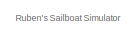
[diagram: root canvas - part 1/16, top left region]
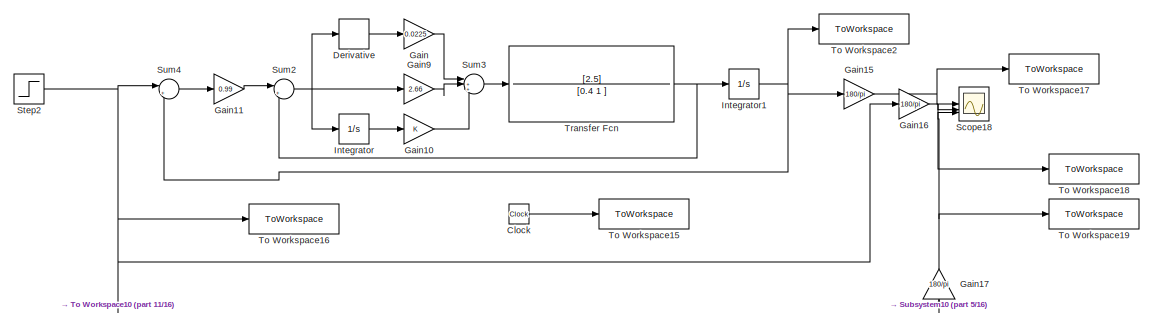
[diagram: root canvas - part 2/16, top right region]
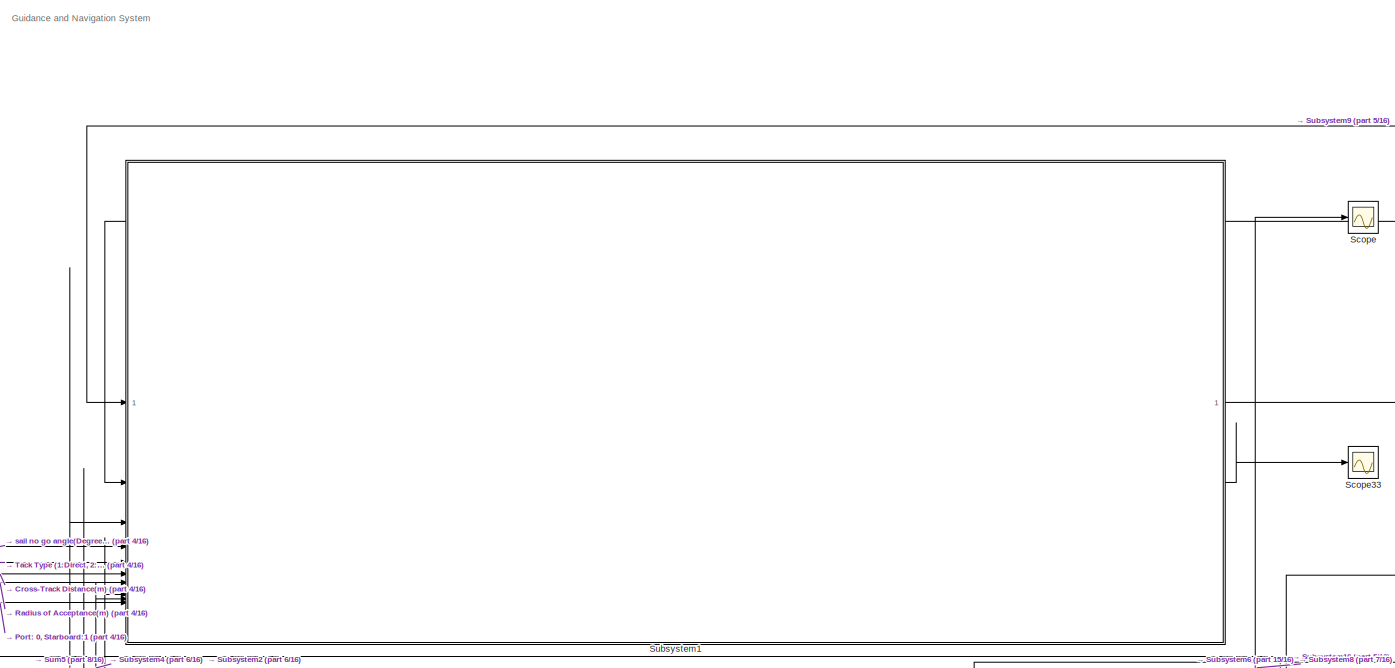
[diagram: root canvas - part 3/16, top left region]
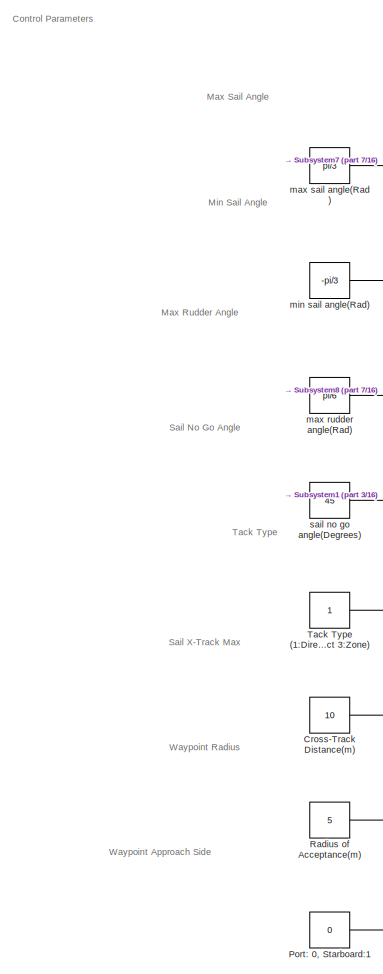
[diagram: root canvas - part 4/16, middle left region]
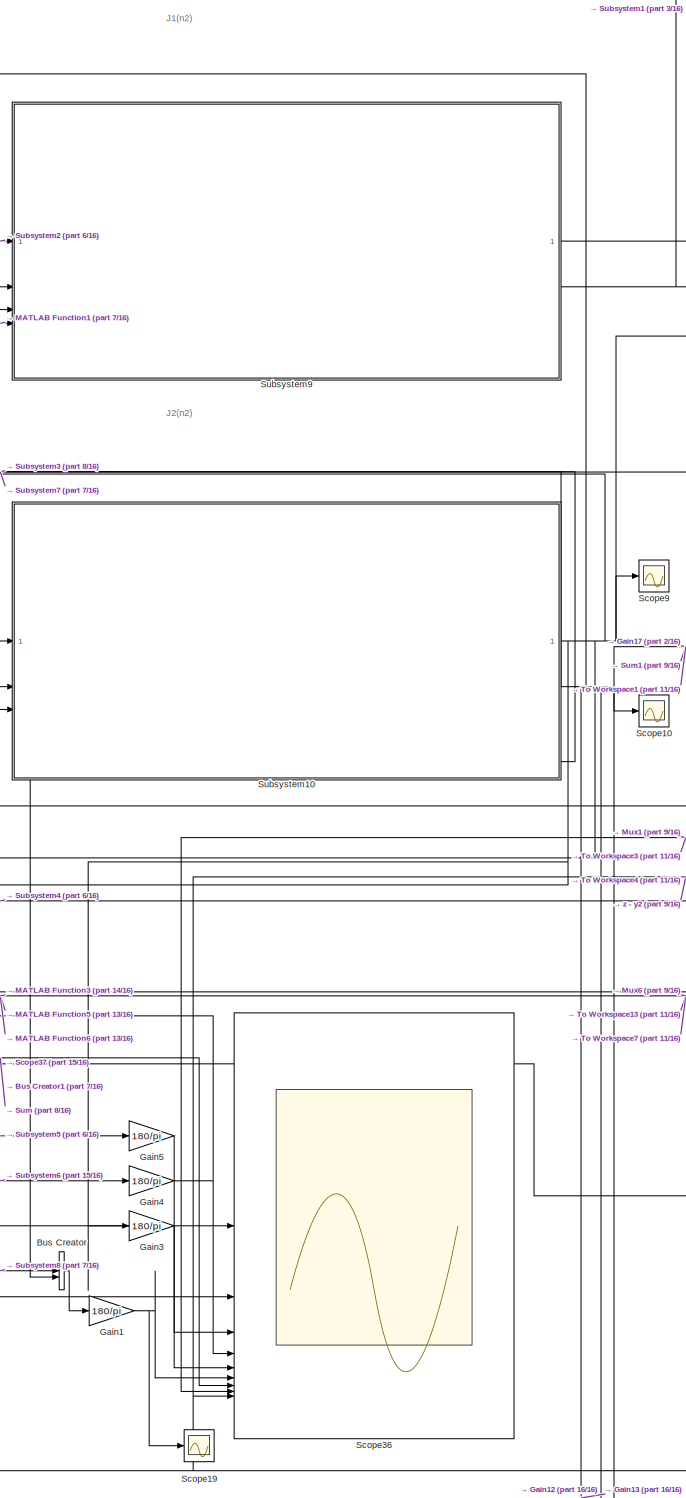
[diagram: root canvas - part 5/16, middle right region]
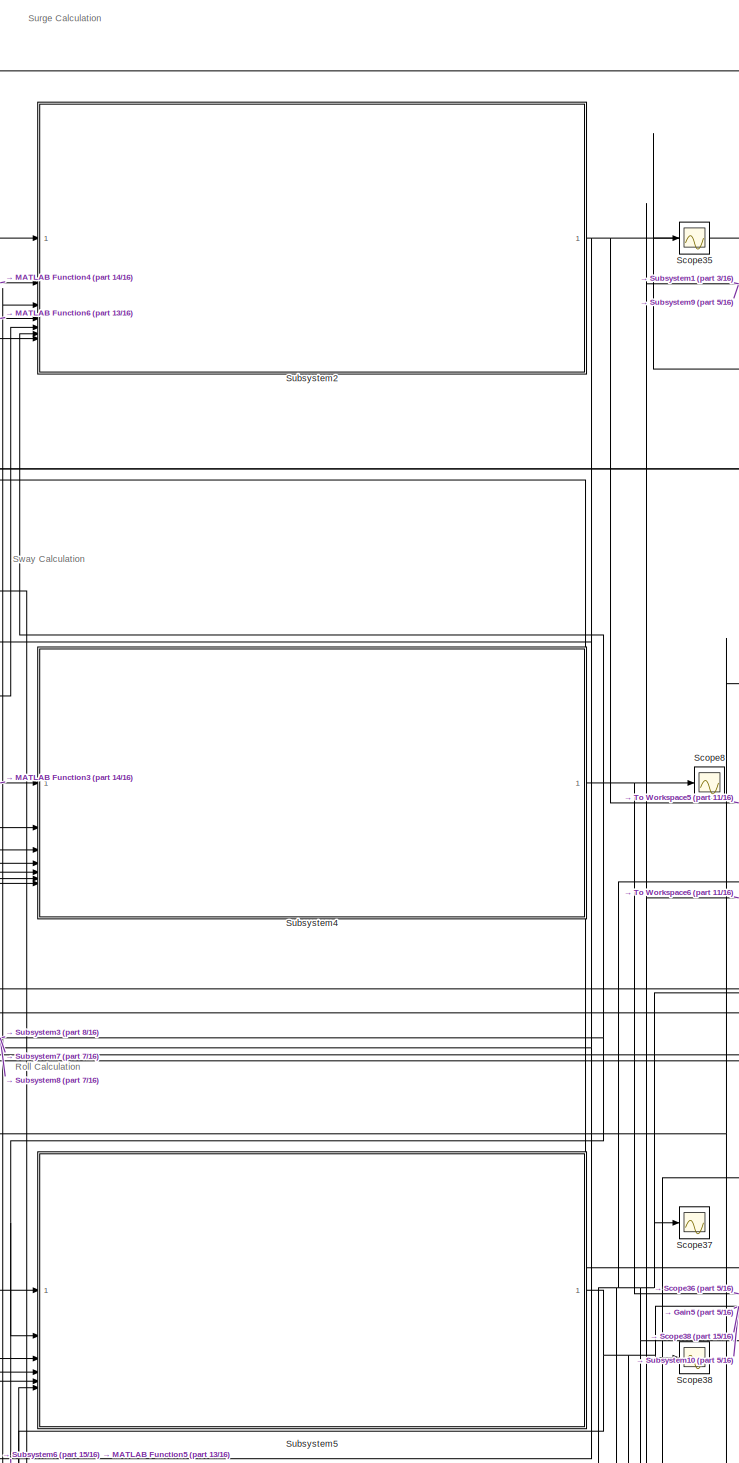
[diagram: root canvas - part 6/16, central region]
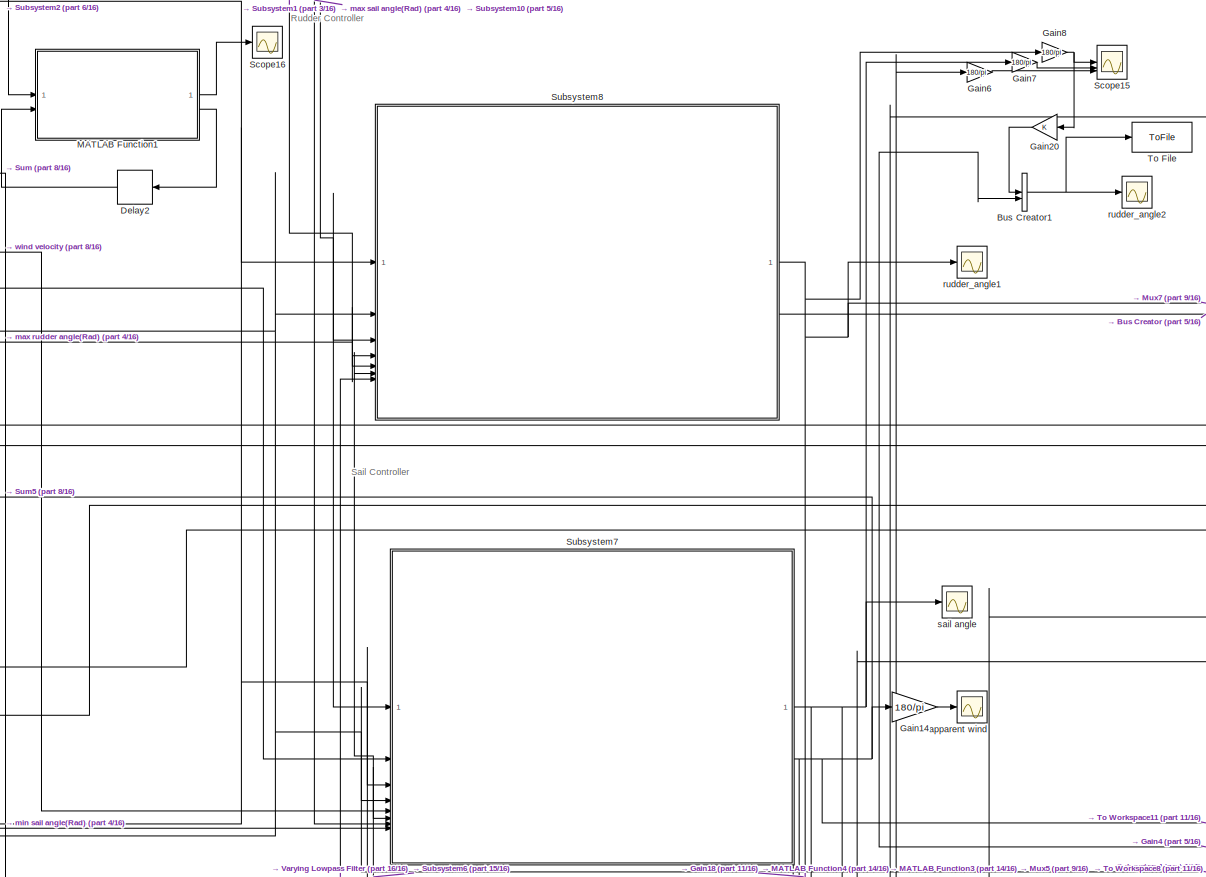
[diagram: root canvas - part 7/16, central region]
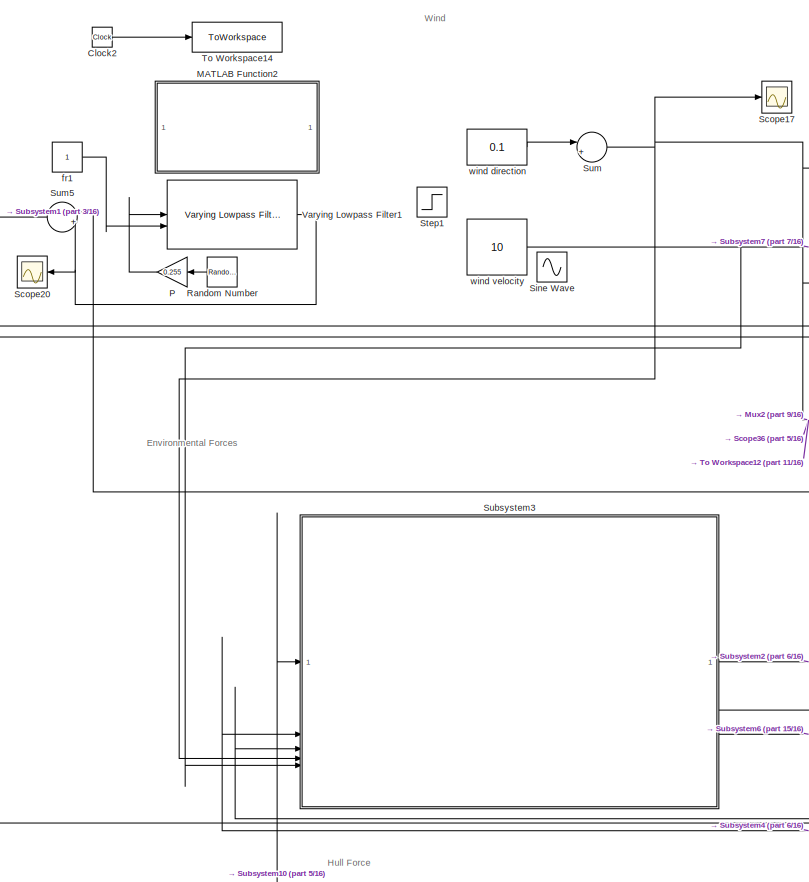
[diagram: root canvas - part 8/16, middle left region]
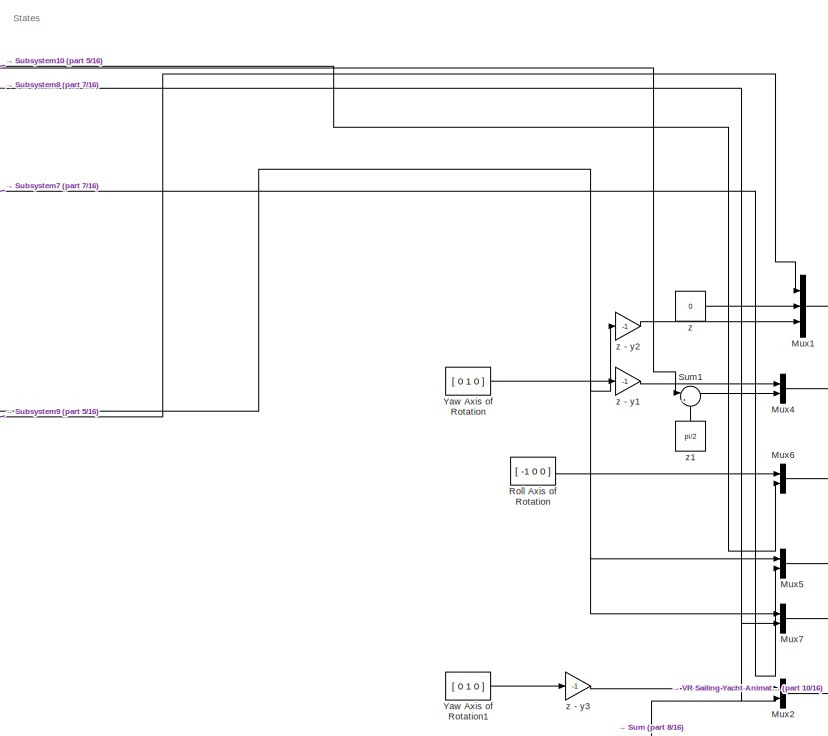
[diagram: root canvas - part 9/16, middle right region]
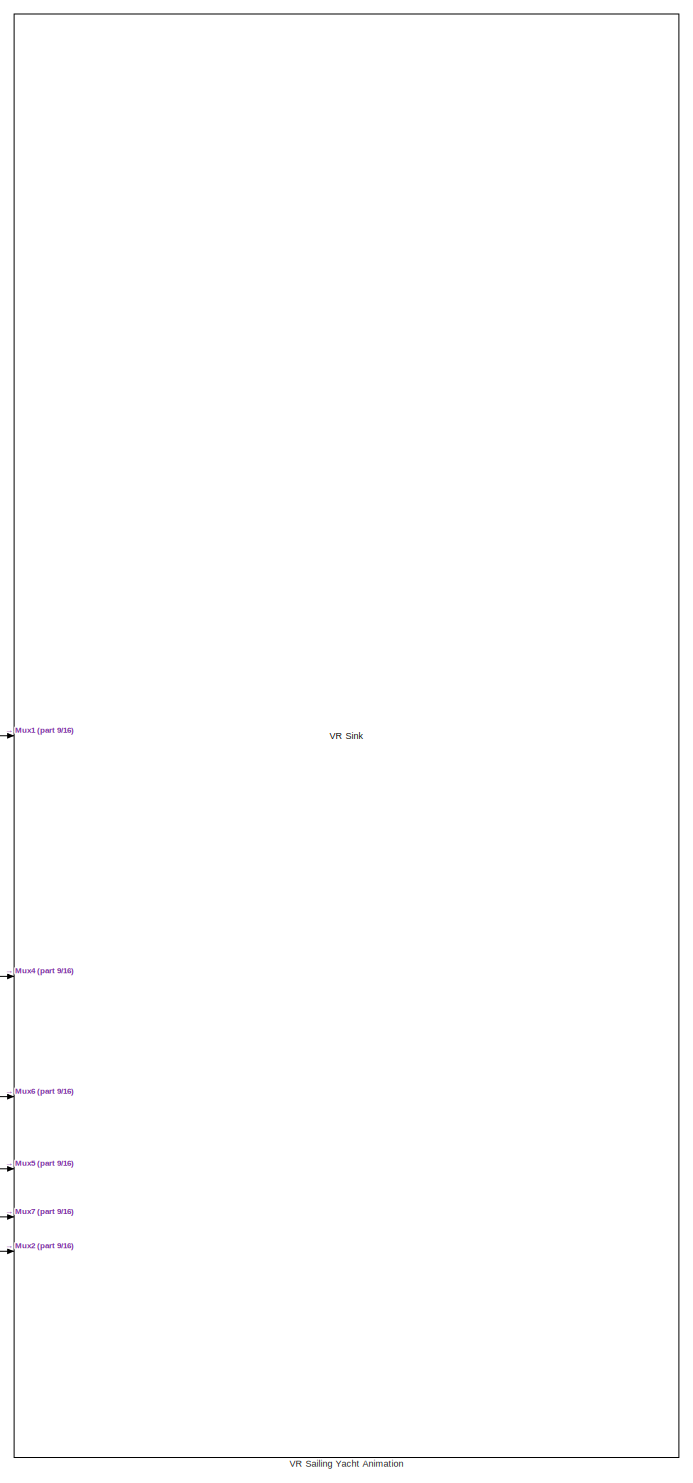
[diagram: root canvas - part 10/16, middle right region]
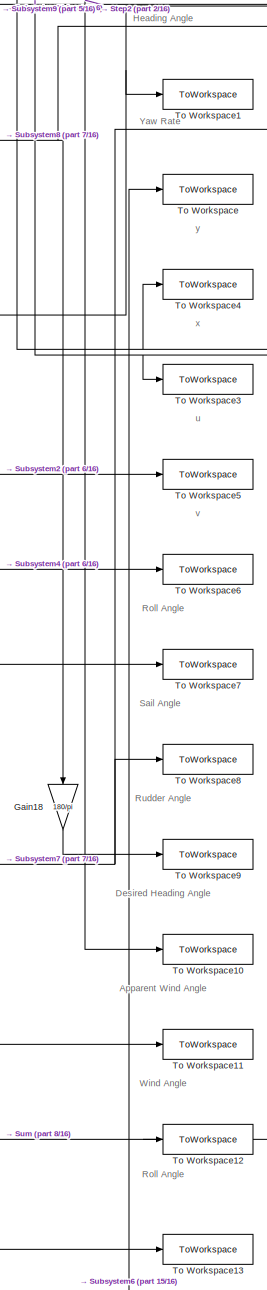
[diagram: root canvas - part 11/16, middle right region]
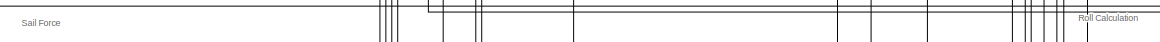
[diagram: root canvas - part 12/16, central region]
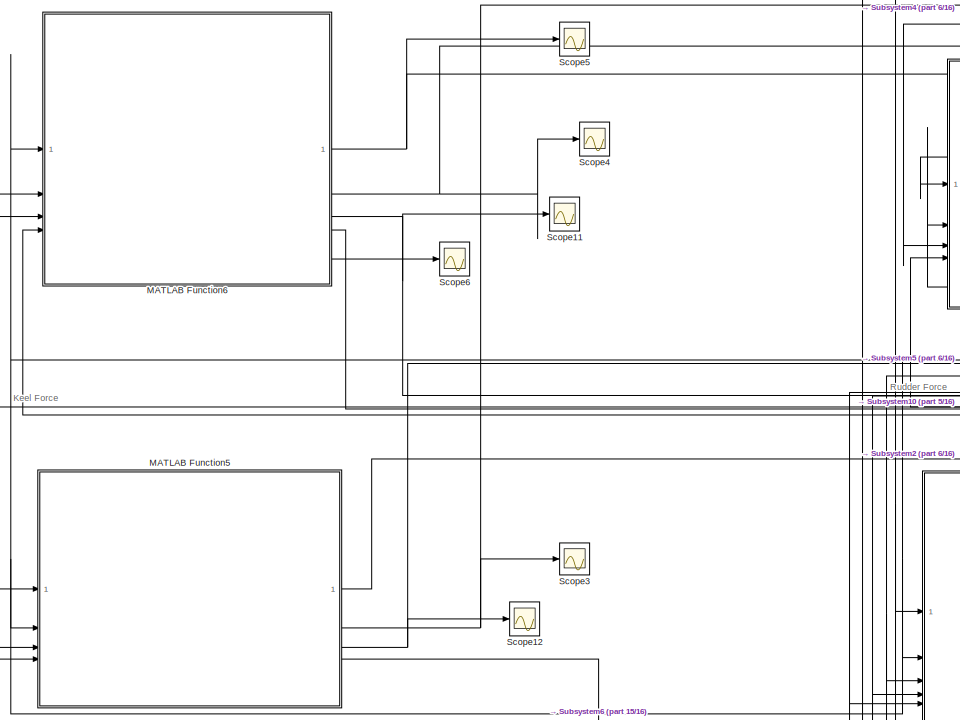
[diagram: root canvas - part 13/16, middle left region]
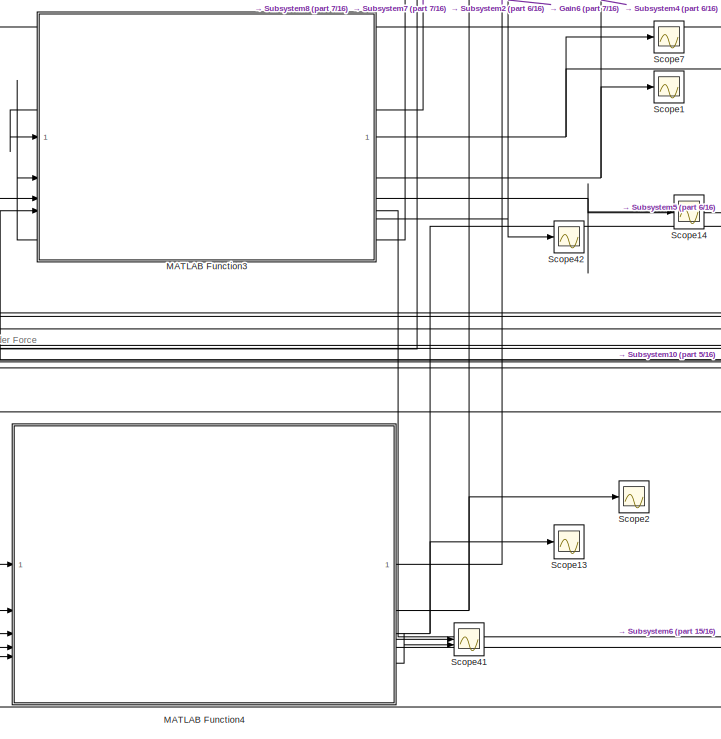
[diagram: root canvas - part 14/16, bottom center region]
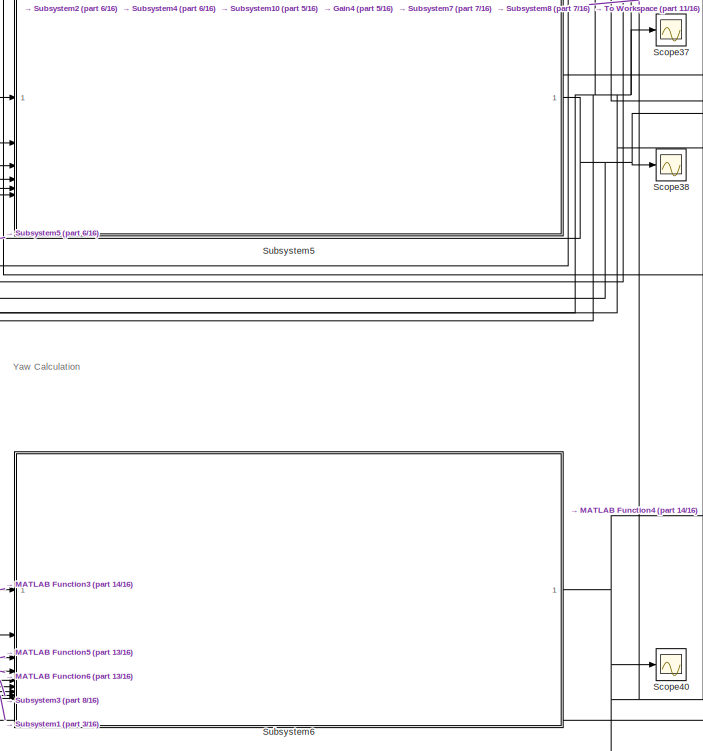
[diagram: root canvas - part 15/16, bottom center region]
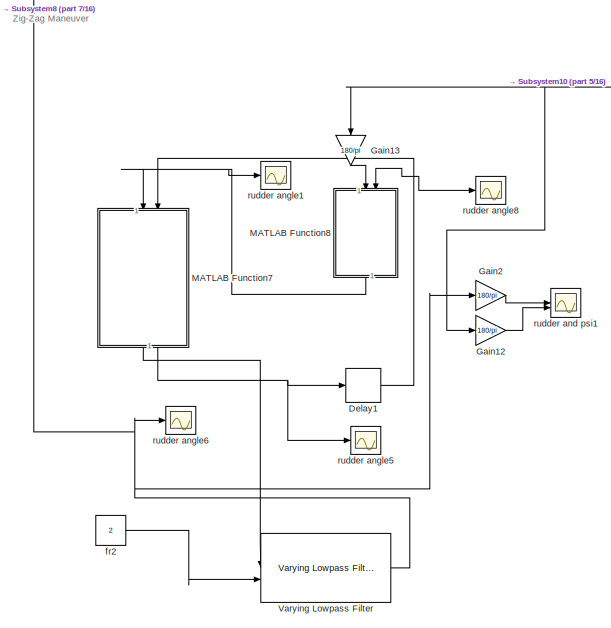
[diagram: root canvas - part 16/16, bottom center region]
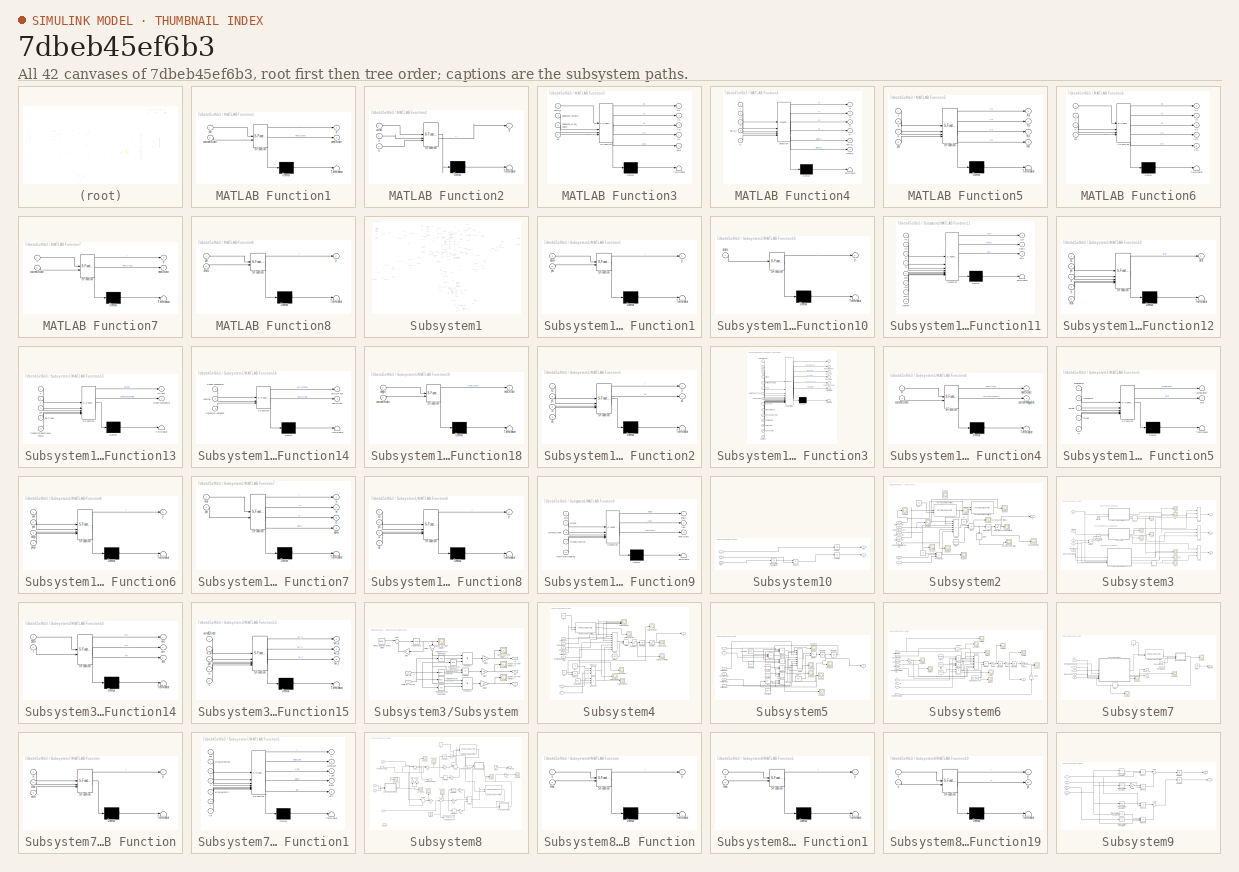
[diagram: thumbnail index - all 42 canvases of the model, root first then tree order]
MODEL slx_7dbeb45ef6b3
KIND model
CONFIG AbsTol = auto
CONFIG EnableMultiTasking = off
CONFIG FixedStep = auto
CONFIG MaxStep = auto
CONFIG MinStep = auto
CONFIG RelTol = 1e-1
CONFIG SampleTimeConstraint = Unconstrained
CONFIG SolverName = VariableStepAuto
CONFIG StartTime = 0.0
CONFIG StopTime = 300
BLOCK [BusCreator] Bus Creator
  DisplayOption = bar
  InheritFromInputs = on
  Inputs = 2
BLOCK [BusCreator] Bus Creator1
  DisplayOption = bar
  InheritFromInputs = on
  Inputs = 2
BLOCK [Clock] Clock
BLOCK [Clock] Clock2
BLOCK [Constant] Cross-Track Distance(m)
  NameLocation = left
  Value = 10
BLOCK [Delay] Delay1
  DelayLength = 1
  InputPortMap = u0
  NameLocation = top
  SampleTime = 0.01
BLOCK [Delay] Delay2
  DelayLength = 1
  InputPortMap = u0
  SampleTime = 0.01
BLOCK [Derivative] Derivative
BLOCK [Gain] Gain
  Gain = 0.0225
BLOCK [Gain] Gain1
  Gain = 180/pi
BLOCK [Gain] Gain10
BLOCK [Gain] Gain11
  Gain = 0.99
BLOCK [Gain] Gain12
  Gain = 180/pi
BLOCK [Gain] Gain13
  Gain = 180/pi
  NameLocation = left
BLOCK [Gain] Gain14
  Gain = 180/pi
BLOCK [Gain] Gain15
  Gain = 180/pi
BLOCK [Gain] Gain16
  Gain = 180/pi
BLOCK [Gain] Gain17
  Gain = 180/pi
  NameLocation = right
BLOCK [Gain] Gain18
  Gain = 180/pi
  NameLocation = left
BLOCK [Gain] Gain2
  Gain = 180/pi
BLOCK [Gain] Gain20
  NameLocation = top
BLOCK [Gain] Gain3
  Gain = 180/pi
BLOCK [Gain] Gain4
  Gain = 180/pi
BLOCK [Gain] Gain5
  Gain = 180/pi
BLOCK [Gain] Gain6
  Gain = 180/pi
BLOCK [Gain] Gain7
  Gain = 180/pi
BLOCK [Gain] Gain8
  Gain = 180/pi
BLOCK [Gain] Gain9
  Gain = 2.66
BLOCK [Integrator] Integrator
BLOCK [Integrator] Integrator1
BLOCK [SubSystem] MATLAB Function1
  ErrorFcn = Stateflow.Translate.translate
  LibrarySourceBlock = simulink/User-Defined\nFunctions/MATLAB Function
  PermitHierarchicalResolution = ExplicitOnly
  SFBlockType = MATLAB Function
  TreatAsAtomicUnit = on
BLOCK [Demux] MATLAB Function1/ Demux 
  Outputs = 1
BLOCK [S-Function] MATLAB Function1/ SFunction 
  EnableBusSupport = on
  FunctionName = sf_sfun
  PortCounts = [2 3]
  SFcnIsStateOwnerBlock = off
  SFunctionDeploymentMode = off
  Tag = Stateflow S-Function 11
BLOCK [Terminator] MATLAB Function1/ Terminator 
BLOCK [Inport] MATLAB Function1/currentState
  Port = 2
BLOCK [Outport] MATLAB Function1/nextState
  Port = 2
BLOCK [Inport] MATLAB Function1/psi
BLOCK [Outport] MATLAB Function1/y
BLOCK [SubSystem] MATLAB Function2
  ErrorFcn = Stateflow.Translate.translate
  LibrarySourceBlock = simulink/User-Defined\nFunctions/MATLAB Function
  NameLocation = top
  PermitHierarchicalResolution = ExplicitOnly
  SFBlockType = MATLAB Function
  TreatAsAtomicUnit = on
BLOCK [Demux] MATLAB Function2/ Demux 
  Outputs = 1
BLOCK [S-Function] MATLAB Function2/ SFunction 
  EnableBusSupport = on
  FunctionName = sf_sfun
  PortCounts = [3 2]
  SFcnIsStateOwnerBlock = off
  SFunctionDeploymentMode = off
  Tag = Stateflow S-Function 20
BLOCK [Terminator] MATLAB Function2/ Terminator 
BLOCK [Inport] MATLAB Function2/u
  Port = 2
BLOCK [Inport] MATLAB Function2/v
  Port = 3
BLOCK [Inport] MATLAB Function2/wind
BLOCK [Outport] MATLAB Function2/y
BLOCK [SubSystem] MATLAB Function3
  ErrorFcn = Stateflow.Translate.translate
  LibrarySourceBlock = simulink/User-Defined\nFunctions/MATLAB Function
  PermitHierarchicalResolution = ExplicitOnly
  SFBlockType = MATLAB Function
  TreatAsAtomicUnit = on
BLOCK [Demux] MATLAB Function3/ Demux 
  Outputs = 1
BLOCK [S-Function] MATLAB Function3/ SFunction 
  EnableBusSupport = on
  FunctionName = sf_sfun
  PortCounts = [4 6]
  SFcnIsStateOwnerBlock = off
  SFunctionDeploymentMode = off
  Tag = Stateflow S-Function 6
BLOCK [Terminator] MATLAB Function3/ Terminator 
BLOCK [Outport] MATLAB Function3/Ks
  Port = 3
BLOCK [Outport] MATLAB Function3/Ns
  Port = 4
BLOCK [Outport] MATLAB Function3/Xs
BLOCK [Outport] MATLAB Function3/Ys
  Port = 2
BLOCK [Inport] MATLAB Function3/apparent_velocity
  Port = 2
BLOCK [Inport] MATLAB Function3/apparent_wind_angle
  Port = 3
BLOCK [Outport] MATLAB Function3/awa
  Port = 5
BLOCK [Inport] MATLAB Function3/delta_s
BLOCK [Inport] MATLAB Function3/phi
  Port = 4
BLOCK [SubSystem] MATLAB Function4
  ErrorFcn = Stateflow.Translate.translate
  LibrarySourceBlock = simulink/User-Defined\nFunctions/MATLAB Function
  PermitHierarchicalResolution = ExplicitOnly
  SFBlockType = MATLAB Function
  TreatAsAtomicUnit = on
BLOCK [Demux] MATLAB Function4/ Demux 
  Outputs = 1
BLOCK [S-Function] MATLAB Function4/ SFunction 
  EnableBusSupport = on
  FunctionName = sf_sfun
  PortCounts = [5 7]
  SFcnIsStateOwnerBlock = off
  SFunctionDeploymentMode = off
  Tag = Stateflow S-Function 7
BLOCK [Terminator] MATLAB Function4/ Terminator 
BLOCK [Outport] MATLAB Function4/Kr
  Port = 3
BLOCK [Outport] MATLAB Function4/Nr
  Port = 4
BLOCK [Outport] MATLAB Function4/Xr
BLOCK [Outport] MATLAB Function4/Yr
  Port = 2
BLOCK [Outport] MATLAB Function4/alpha_a
  Port = 6
BLOCK [Outport] MATLAB Function4/delta_r
  Port = 5
BLOCK [Inport] MATLAB Function4/delta_r 
  Port = 4
BLOCK [Inport] MATLAB Function4/p
  Port = 5
BLOCK [Inport] MATLAB Function4/r
BLOCK [Inport] MATLAB Function4/u
  Port = 2
BLOCK [Inport] MATLAB Function4/v
  Port = 3
BLOCK [SubSystem] MATLAB Function5
  ErrorFcn = Stateflow.Translate.translate
  LibrarySourceBlock = simulink/User-Defined\nFunctions/MATLAB Function
  PermitHierarchicalResolution = ExplicitOnly
  SFBlockType = MATLAB Function
  TreatAsAtomicUnit = on
BLOCK [Demux] MATLAB Function5/ Demux 
  Outputs = 1
BLOCK [S-Function] MATLAB Function5/ SFunction 
  EnableBusSupport = on
  FunctionName = sf_sfun
  PortCounts = [4 5]
  SFcnIsStateOwnerBlock = off
  SFunctionDeploymentMode = off
  Tag = Stateflow S-Function 8
BLOCK [Terminator] MATLAB Function5/ Terminator 
BLOCK [Outport] MATLAB Function5/Kk
  Port = 3
BLOCK [Outport] MATLAB Function5/Nk
  Port = 4
BLOCK [Outport] MATLAB Function5/Xk
BLOCK [Outport] MATLAB Function5/Yk
  Port = 2
BLOCK [Inport] MATLAB Function5/phi
  Port = 4
BLOCK [Inport] MATLAB Function5/r
BLOCK [Inport] MATLAB Function5/u
  Port = 2
BLOCK [Inport] MATLAB Function5/v
  Port = 3
BLOCK [SubSystem] MATLAB Function6
  ErrorFcn = Stateflow.Translate.translate
  LibrarySourceBlock = simulink/User-Defined\nFunctions/MATLAB Function
  PermitHierarchicalResolution = ExplicitOnly
  SFBlockType = MATLAB Function
  TreatAsAtomicUnit = on
BLOCK [Demux] MATLAB Function6/ Demux 
  Outputs = 1
BLOCK [S-Function] MATLAB Function6/ SFunction 
  EnableBusSupport = on
  FunctionName = sf_sfun
  PortCounts = [4 6]
  SFcnIsStateOwnerBlock = off
  SFunctionDeploymentMode = off
  Tag = Stateflow S-Function 9
BLOCK [Terminator] MATLAB Function6/ Terminator 
BLOCK [Outport] MATLAB Function6/Frh
  Port = 5
BLOCK [Outport] MATLAB Function6/Kh
  Port = 3
BLOCK [Outport] MATLAB Function6/Nh
  Port = 4
BLOCK [Outport] MATLAB Function6/Xh
BLOCK [Outport] MATLAB Function6/Yh
  Port = 2
BLOCK [Inport] MATLAB Function6/phi
  Port = 4
BLOCK [Inport] MATLAB Function6/r
BLOCK [Inport] MATLAB Function6/u
  Port = 2
BLOCK [Inport] MATLAB Function6/v
  Port = 3
BLOCK [SubSystem] MATLAB Function7
  ErrorFcn = Stateflow.Translate.translate
  LibrarySourceBlock = simulink/User-Defined\nFunctions/MATLAB Function
  NameLocation = left
  PermitHierarchicalResolution = ExplicitOnly
  SFBlockType = MATLAB Function
  TreatAsAtomicUnit = on
BLOCK [Demux] MATLAB Function7/ Demux 
  Outputs = 1
BLOCK [S-Function] MATLAB Function7/ SFunction 
  EnableBusSupport = on
  FunctionName = sf_sfun
  PortCounts = [2 3]
  SFcnIsStateOwnerBlock = off
  SFunctionDeploymentMode = off
  Tag = Stateflow S-Function 13
BLOCK [Terminator] MATLAB Function7/ Terminator 
BLOCK [Inport] MATLAB Function7/currentState
  Port = 2
BLOCK [Outport] MATLAB Function7/nextState
  Port = 2
BLOCK [Inport] MATLAB Function7/r
BLOCK [Outport] MATLAB Function7/y
BLOCK [SubSystem] MATLAB Function8
  ErrorFcn = Stateflow.Translate.translate
  LibrarySourceBlock = simulink/User-Defined\nFunctions/MATLAB Function
  NameLocation = left
  PermitHierarchicalResolution = ExplicitOnly
  SFBlockType = MATLAB Function
  TreatAsAtomicUnit = on
BLOCK [Demux] MATLAB Function8/ Demux 
  Outputs = 1
BLOCK [S-Function] MATLAB Function8/ SFunction 
  EnableBusSupport = on
  FunctionName = sf_sfun
  PortCounts = [2 2]
  SFcnIsStateOwnerBlock = off
  SFunctionDeploymentMode = off
  Tag = Stateflow S-Function 15
BLOCK [Terminator] MATLAB Function8/ Terminator 
BLOCK [Inport] MATLAB Function8/psi
BLOCK [Inport] MATLAB Function8/state
  Port = 2
BLOCK [Outport] MATLAB Function8/y
BLOCK [Mux] Mux1
  DisplayOption = bar
  Inputs = 3
BLOCK [Mux] Mux2
  DisplayOption = bar
  Inputs = 2
BLOCK [Mux] Mux4
  DisplayOption = bar
  Inputs = 2
BLOCK [Mux] Mux5
  DisplayOption = bar
  Inputs = 2
BLOCK [Mux] Mux6
  DisplayOption = bar
  Inputs = 2
BLOCK [Mux] Mux7
  DisplayOption = bar
  Inputs = 2
BLOCK [Gain] P
  Gain = 0.255
  NameLocation = top
BLOCK [Constant] Port: 0, Starboard:1
  NameLocation = left
  Value = 0
BLOCK [Constant] Radius of Acceptance(m)
  NameLocation = left
  Value = 5
BLOCK [RandomNumber] Random Number
  NameLocation = top
  SampleTime = 1
  Variance = 0.25
BLOCK [Constant] Roll Axis of Rotation
  NameLocation = top
  Value = [ -1 0 0 ]
BLOCK [Scope] Scope
  Floating = off
  NumInputPorts = 1
  ScopeSpecificationString = Simulink.scopes.TimeScopeBlockCfg('CurrentConfiguration', extmgr.ConfigurationSet(extmgr.Configuration('Core','General UI',true),extmgr.Configuration('Core','Source UI',true),extmgr.Configuration('Sources','WiredSimulink',true,'DataLoggingVariableName','ScopeData3'),extmgr.Configuration('Visuals','Time Domain',true,'SerializedDisplays',{struct('MinYLimReal','-2.03394','MaxYLimReal','1.25997','YLab...<+1444ch>
BLOCK [Scope] Scope1
  Floating = off
  NumInputPorts = 1
  ScopeSpecificationString = Simulink.scopes.TimeScopeBlockCfg('CurrentConfiguration', extmgr.ConfigurationSet(extmgr.Configuration('Core','General UI',true),extmgr.Configuration('Core','Source UI',true),extmgr.Configuration('Sources','WiredSimulink',true,'DataLoggingVariableName','ScopeData1'),extmgr.Configuration('Visuals','Time Domain',true,'SerializedDisplays',{struct('MinYLimReal','-14.42249','MaxYLimReal','17.66399','YL...<+1409ch>
BLOCK [Scope] Scope10
  Floating = off
  NumInputPorts = 1
  ScopeSpecificationString = Simulink.scopes.TimeScopeBlockCfg('CurrentConfiguration', extmgr.ConfigurationSet(extmgr.Configuration('Core','General UI',true),extmgr.Configuration('Core','Source UI',true),extmgr.Configuration('Sources','WiredSimulink',true,'DataLoggingVariableName','ScopeData17'),extmgr.Configuration('Visuals','Time Domain',true,'SerializedDisplays',{struct('MinYLimReal','-1.51429','MaxYLimReal','13.62859','YL...<+1450ch>
BLOCK [Scope] Scope11
  Floating = off
  NumInputPorts = 1
  ScopeSpecificationString = Simulink.scopes.TimeScopeBlockCfg('CurrentConfiguration', extmgr.ConfigurationSet(extmgr.Configuration('Core','General UI',true),extmgr.Configuration('Core','Source UI',true),extmgr.Configuration('Sources','WiredSimulink',true,'DataLoggingVariableName','ScopeData18'),extmgr.Configuration('Visuals','Time Domain',true,'SerializedDisplays',{struct('MinYLimReal','-18.75','MaxYLimReal','18.75','YLabelR...<+1411ch>
BLOCK [Scope] Scope12
  Floating = off
  NumInputPorts = 1
  ScopeSpecificationString = Simulink.scopes.TimeScopeBlockCfg('CurrentConfiguration', extmgr.ConfigurationSet(extmgr.Configuration('Core','General UI',true),extmgr.Configuration('Core','Source UI',true),extmgr.Configuration('Sources','WiredSimulink',true,'DataLoggingVariableName','ScopeData19'),extmgr.Configuration('Visuals','Time Domain',true,'SerializedDisplays',{struct('MinYLimReal','-4.03531','MaxYLimReal','4.21707','YLa...<+1423ch>
BLOCK [Scope] Scope13
  Floating = off
  NumInputPorts = 1
  ScopeSpecificationString = Simulink.scopes.TimeScopeBlockCfg('CurrentConfiguration', extmgr.ConfigurationSet(extmgr.Configuration('Core','General UI',true),extmgr.Configuration('Core','Source UI',true),extmgr.Configuration('Sources','WiredSimulink',true,'DataLoggingVariableName','ScopeData20'),extmgr.Configuration('Visuals','Time Domain',true,'SerializedDisplays',{struct('MinYLimReal','-1.16326','MaxYLimReal','1.1519','YLab...<+1421ch>
BLOCK [Scope] Scope14
  Floating = off
  NumInputPorts = 1
  ScopeSpecificationString = Simulink.scopes.TimeScopeBlockCfg('CurrentConfiguration', extmgr.ConfigurationSet(extmgr.Configuration('Core','General UI',true),extmgr.Configuration('Core','Source UI',true),extmgr.Configuration('Sources','WiredSimulink',true,'DataLoggingVariableName','ScopeData21'),extmgr.Configuration('Visuals','Time Domain',true,'SerializedDisplays',{struct('MinYLimReal','-21.11746','MaxYLimReal','18.72885','Y...<+1429ch>
BLOCK [Scope] Scope15
  Floating = off
  NumInputPorts = 3
  ScopeSpecificationString = Simulink.scopes.TimeScopeBlockCfg('CurrentConfiguration', extmgr.ConfigurationSet(extmgr.Configuration('Core','General UI',true),extmgr.Configuration('Core','Source UI',true),extmgr.Configuration('Sources','WiredSimulink',true,'DataLoggingVariableName','ScopeData1'),extmgr.Configuration('Visuals','Time Domain',true,'SerializedDisplays',{struct('MinYLimReal','-5.625','MaxYLimReal','0.625','YLabelRe...<+5147ch>
BLOCK [Scope] Scope16
  Floating = off
  NumInputPorts = 1
  ScopeSpecificationString = Simulink.scopes.TimeScopeBlockCfg('CurrentConfiguration', extmgr.ConfigurationSet(extmgr.Configuration('Core','General UI',true),extmgr.Configuration('Core','Source UI',true),extmgr.Configuration('Sources','WiredSimulink',true,'DataLoggingVariableName','ScopeData1'),extmgr.Configuration('Visuals','Time Domain',true,'SerializedDisplays',{struct('MinYLimReal','0.26652','MaxYLimReal','0.46652','YLabe...<+1429ch>
BLOCK [Scope] Scope17
  Floating = off
  NumInputPorts = 1
  ScopeSpecificationString = Simulink.scopes.TimeScopeBlockCfg('CurrentConfiguration', extmgr.ConfigurationSet(extmgr.Configuration('Core','General UI',true),extmgr.Configuration('Core','Source UI',true),extmgr.Configuration('Sources','WiredSimulink',true,'DataLoggingVariableName','ScopeData2'),extmgr.Configuration('Visuals','Time Domain',true,'SerializedDisplays',{struct('MinYLimReal','1.2583','MaxYLimReal','1.8833','YLabelR...<+1406ch>
BLOCK [Scope] Scope18
  Floating = off
  NumInputPorts = 3
  ScopeSpecificationString = Simulink.scopes.TimeScopeBlockCfg('CurrentConfiguration', extmgr.ConfigurationSet(extmgr.Configuration('Core','General UI',true,'FigureColor',[1 1 1]),extmgr.Configuration('Core','Source UI',true),extmgr.Configuration('Sources','WiredSimulink',true,'DataLoggingVariableName','ScopeData1'),extmgr.Configuration('Visuals','Time Domain',true,'SerializedDisplays',{struct('MinYLimReal','-2.13419','MaxYLi...<+1827ch>
BLOCK [Scope] Scope19
  Floating = off
  NumInputPorts = 1
  ScopeSpecificationString = Simulink.scopes.TimeScopeBlockCfg('CurrentConfiguration', extmgr.ConfigurationSet(extmgr.Configuration('Core','General UI',true,'FigureColor',[1 1 1]),extmgr.Configuration('Core','Source UI',true),extmgr.Configuration('Sources','WiredSimulink',true,'DataLoggingVariableName','ScopeData1'),extmgr.Configuration('Visuals','Time Domain',true,'SerializedDisplays',{struct('MinYLimReal','-1.94761','MaxYLi...<+1673ch>
BLOCK [Scope] Scope2
  Floating = off
  NumInputPorts = 1
  ScopeSpecificationString = Simulink.scopes.TimeScopeBlockCfg('CurrentConfiguration', extmgr.ConfigurationSet(extmgr.Configuration('Core','General UI',true),extmgr.Configuration('Core','Source UI',true),extmgr.Configuration('Sources','WiredSimulink',true,'DataLoggingVariableName','ScopeData2'),extmgr.Configuration('Visuals','Time Domain',true,'SerializedDisplays',{struct('MinYLimReal','-0.11362','MaxYLimReal','0.22021','YLab...<+1403ch>
BLOCK [Scope] Scope20
  Floating = off
  NameLocation = top
  NumInputPorts = 1
  ScopeSpecificationString = Simulink.scopes.TimeScopeBlockCfg('CurrentConfiguration', extmgr.ConfigurationSet(extmgr.Configuration('Core','General UI',true),extmgr.Configuration('Core','Source UI',true),extmgr.Configuration('Sources','WiredSimulink',true,'DataLoggingVariableName','ScopeData1'),extmgr.Configuration('Visuals','Time Domain',true,'SerializedDisplays',{struct('MinYLimReal','-0.25558','MaxYLimReal','0.22414','YLab...<+1437ch>
BLOCK [Scope] Scope3
  Floating = off
  NumInputPorts = 1
  ScopeSpecificationString = Simulink.scopes.TimeScopeBlockCfg('CurrentConfiguration', extmgr.ConfigurationSet(extmgr.Configuration('Core','General UI',true),extmgr.Configuration('Core','Source UI',true),extmgr.Configuration('Sources','WiredSimulink',true,'DataLoggingVariableName','ScopeData3'),extmgr.Configuration('Visuals','Time Domain',true,'SerializedDisplays',{struct('MinYLimReal','-19.12466','MaxYLimReal','13.06898','YL...<+1409ch>
BLOCK [Scope] Scope33
  Floating = off
  NumInputPorts = 1
  ScopeSpecificationString = Simulink.scopes.TimeScopeBlockCfg('CurrentConfiguration', extmgr.ConfigurationSet(extmgr.Configuration('Core','General UI',true),extmgr.Configuration('Core','Source UI',true),extmgr.Configuration('Sources','WiredSimulink',true,'DataLoggingVariableName','ScopeData9'),extmgr.Configuration('Visuals','Time Domain',true,'SerializedDisplays',{struct('MinYLimReal','-145.67704','MaxYLimReal','-33.17704','...<+1439ch>
BLOCK [Scope] Scope35
  Floating = off
  NumInputPorts = 1
  ScopeSpecificationString = Simulink.scopes.TimeScopeBlockCfg('CurrentConfiguration', extmgr.ConfigurationSet(extmgr.Configuration('Core','General UI',true),extmgr.Configuration('Core','Source UI',true),extmgr.Configuration('Sources','WiredSimulink',true,'DataLoggingVariableName','ScopeData55'),extmgr.Configuration('Visuals','Time Domain',true,'SerializedDisplays',{struct('MinYLimReal','0.42747','MaxYLimReal','1.15277','YLab...<+1422ch>
BLOCK [Scope] Scope36
  Floating = off
  NumInputPorts = 9
  ScopeSpecificationString = Simulink.scopes.TimeScopeBlockCfg('CurrentConfiguration', extmgr.ConfigurationSet(extmgr.Configuration('Core','General UI',true),extmgr.Configuration('Core','Source UI',true),extmgr.Configuration('Sources','WiredSimulink',true,'DataLoggingVariableName','ScopeData56','DataLogging',true),extmgr.Configuration('Visuals','Time Domain',true,'SerializedDisplays',{struct('MinYLimReal','0.88433','MaxYLimRe...<+7538ch>
BLOCK [Scope] Scope37
  Floating = off
  NumInputPorts = 1
  ScopeSpecificationString = Simulink.scopes.TimeScopeBlockCfg('CurrentConfiguration', extmgr.ConfigurationSet(extmgr.Configuration('Core','General UI',true),extmgr.Configuration('Core','Source UI',true),extmgr.Configuration('Sources','WiredSimulink',true,'DataLoggingVariableName','ScopeData61'),extmgr.Configuration('Visuals','Time Domain',true,'SerializedDisplays',{struct('MinYLimReal','-20.67522','MaxYLimReal','20.74848','Y...<+1432ch>
BLOCK [Scope] Scope38
  Floating = off
  NumInputPorts = 1
  ScopeSpecificationString = Simulink.scopes.TimeScopeBlockCfg('CurrentConfiguration', extmgr.ConfigurationSet(extmgr.Configuration('Core','General UI',true),extmgr.Configuration('Core','Source UI',true),extmgr.Configuration('Sources','WiredSimulink',true,'DataLoggingVariableName','ScopeData62'),extmgr.Configuration('Visuals','Time Domain',true,'SerializedDisplays',{struct('MinYLimReal','-0.35605','MaxYLimReal','0.123','YLabe...<+1391ch>
BLOCK [Scope] Scope4
  Floating = off
  NumInputPorts = 1
  ScopeSpecificationString = Simulink.scopes.TimeScopeBlockCfg('CurrentConfiguration', extmgr.ConfigurationSet(extmgr.Configuration('Core','General UI',true),extmgr.Configuration('Core','Source UI',true),extmgr.Configuration('Sources','WiredSimulink',true,'DataLoggingVariableName','ScopeData4'),extmgr.Configuration('Visuals','Time Domain',true,'SerializedDisplays',{struct('MinYLimReal','-1.875','MaxYLimReal','16.875','YLabelR...<+1414ch>
BLOCK [Scope] Scope40
  Floating = off
  NumInputPorts = 1
  ScopeSpecificationString = Simulink.scopes.TimeScopeBlockCfg('CurrentConfiguration', extmgr.ConfigurationSet(extmgr.Configuration('Core','General UI',true),extmgr.Configuration('Core','Source UI',true),extmgr.Configuration('Sources','WiredSimulink',true,'DataLoggingVariableName','ScopeData64'),extmgr.Configuration('Visuals','Time Domain',true,'SerializedDisplays',{struct('MinYLimReal','-0.03928','MaxYLimReal','0.21585','YLa...<+1395ch>
BLOCK [Scope] Scope41
  Floating = off
  NumInputPorts = 2
  ScopeSpecificationString = Simulink.scopes.TimeScopeBlockCfg('CurrentConfiguration', extmgr.ConfigurationSet(extmgr.Configuration('Core','General UI',true),extmgr.Configuration('Core','Source UI',true),extmgr.Configuration('Sources','WiredSimulink',true,'DataLoggingVariableName','ScopeData70'),extmgr.Configuration('Visuals','Time Domain',true,'SerializedDisplays',{struct('MinYLimReal','-0.29352','MaxYLimReal','0.27349','YLa...<+1455ch>
BLOCK [Scope] Scope42
  Floating = off
  NumInputPorts = 1
  ScopeSpecificationString = Simulink.scopes.TimeScopeBlockCfg('CurrentConfiguration', extmgr.ConfigurationSet(extmgr.Configuration('Core','General UI',true),extmgr.Configuration('Core','Source UI',true),extmgr.Configuration('Sources','WiredSimulink',true,'DataLoggingVariableName','ScopeData71'),extmgr.Configuration('Visuals','Time Domain',true,'SerializedDisplays',{struct('MinYLimReal','-3.92316','MaxYLimReal','3.92275','YLa...<+1432ch>
BLOCK [Scope] Scope5
  Floating = off
  NumInputPorts = 1
  ScopeSpecificationString = Simulink.scopes.TimeScopeBlockCfg('CurrentConfiguration', extmgr.ConfigurationSet(extmgr.Configuration('Core','General UI',true),extmgr.Configuration('Core','Source UI',true),extmgr.Configuration('Sources','WiredSimulink',true,'DataLoggingVariableName','ScopeData2'),extmgr.Configuration('Visuals','Time Domain',true,'SerializedDisplays',{struct('MinYLimReal','-69472884884640546816.00000','MaxYLimRe...<+1597ch>
BLOCK [Scope] Scope6
  Floating = off
  NumInputPorts = 1
  ScopeSpecificationString = Simulink.scopes.TimeScopeBlockCfg('CurrentConfiguration', extmgr.ConfigurationSet(extmgr.Configuration('Core','General UI',true),extmgr.Configuration('Core','Source UI',true),extmgr.Configuration('Sources','WiredSimulink',true,'DataLoggingVariableName','ScopeData3'),extmgr.Configuration('Visuals','Time Domain',true,'SerializedDisplays',{struct('MinYLimReal','-709020156815283137693089792.00000','Ma...<+1662ch>
BLOCK [Scope] Scope7
  Floating = off
  NumInputPorts = 1
  ScopeSpecificationString = Simulink.scopes.TimeScopeBlockCfg('CurrentConfiguration', extmgr.ConfigurationSet(extmgr.Configuration('Core','General UI',true),extmgr.Configuration('Core','Source UI',true),extmgr.Configuration('Sources','WiredSimulink',true,'DataLoggingVariableName','ScopeData4'),extmgr.Configuration('Visuals','Time Domain',true,'SerializedDisplays',{struct('MinYLimReal','-7.65437','MaxYLimReal','34.99974','YLa...<+1436ch>
BLOCK [Scope] Scope8
  Floating = off
  NumInputPorts = 1
  ScopeSpecificationString = Simulink.scopes.TimeScopeBlockCfg('CurrentConfiguration', extmgr.ConfigurationSet(extmgr.Configuration('Core','General UI',true),extmgr.Configuration('Core','Source UI',true),extmgr.Configuration('Sources','WiredSimulink',true,'DataLoggingVariableName','ScopeData1'),extmgr.Configuration('Visuals','Time Domain',true,'SerializedDisplays',{struct('MinYLimReal','-0.02571','MaxYLimReal','0.23142','YLab...<+1423ch>
BLOCK [Scope] Scope9
  Floating = off
  NumInputPorts = 1
  ScopeSpecificationString = Simulink.scopes.TimeScopeBlockCfg('CurrentConfiguration', extmgr.ConfigurationSet(extmgr.Configuration('Core','General UI',true),extmgr.Configuration('Core','Source UI',true),extmgr.Configuration('Sources','WiredSimulink',true,'DataLoggingVariableName','ScopeData15'),extmgr.Configuration('Visuals','Time Domain',true,'SerializedDisplays',{struct('MinYLimReal','-0.23365','MaxYLimReal','0.26174','YLa...<+1427ch>
BLOCK [Sin] Sine Wave
  Amplitude = 0.1
  Frequency = 0.1
  SampleTime = 0
BLOCK [Step] Step1
  After = 0.5
  SampleTime = 0
  Time = 40
BLOCK [Step] Step2
  After = 0.25
  SampleTime = 0
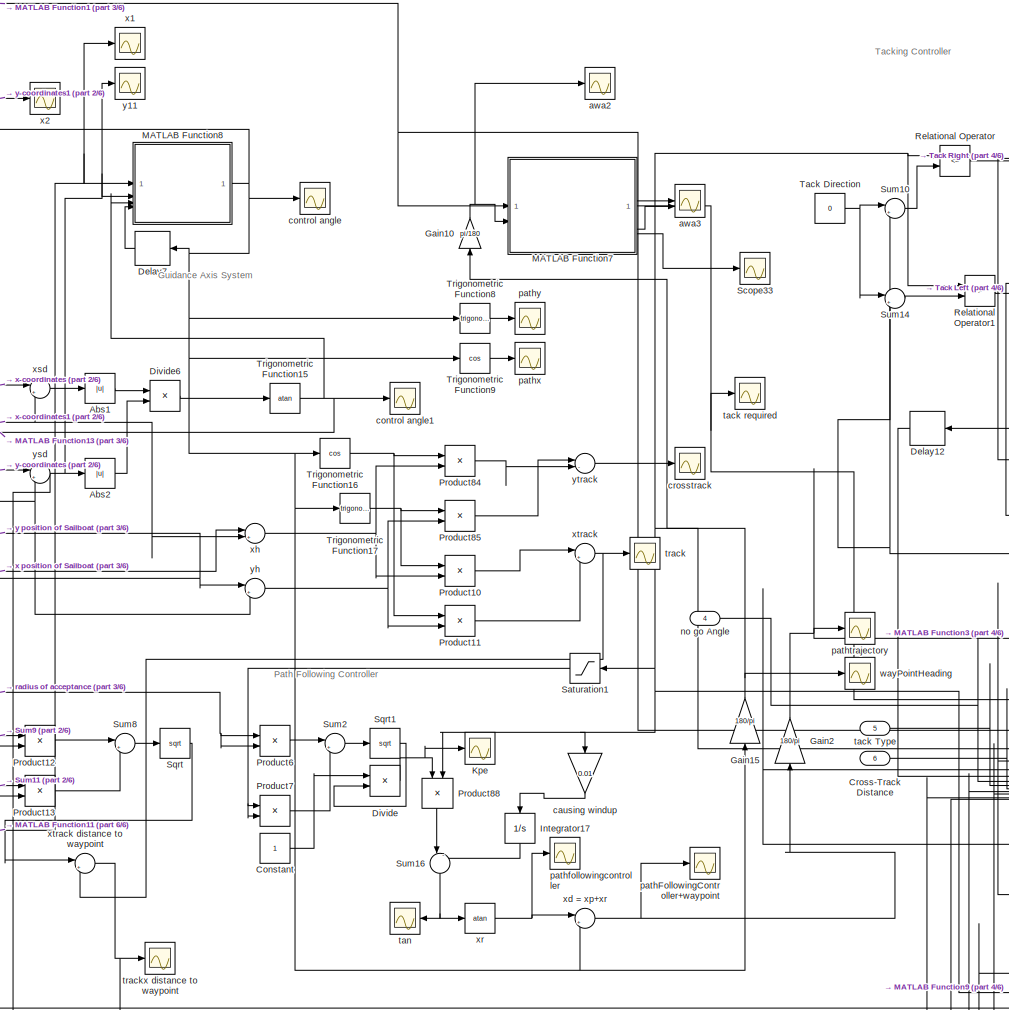
[diagram: Subsystem1 - part 1/6, top center region]
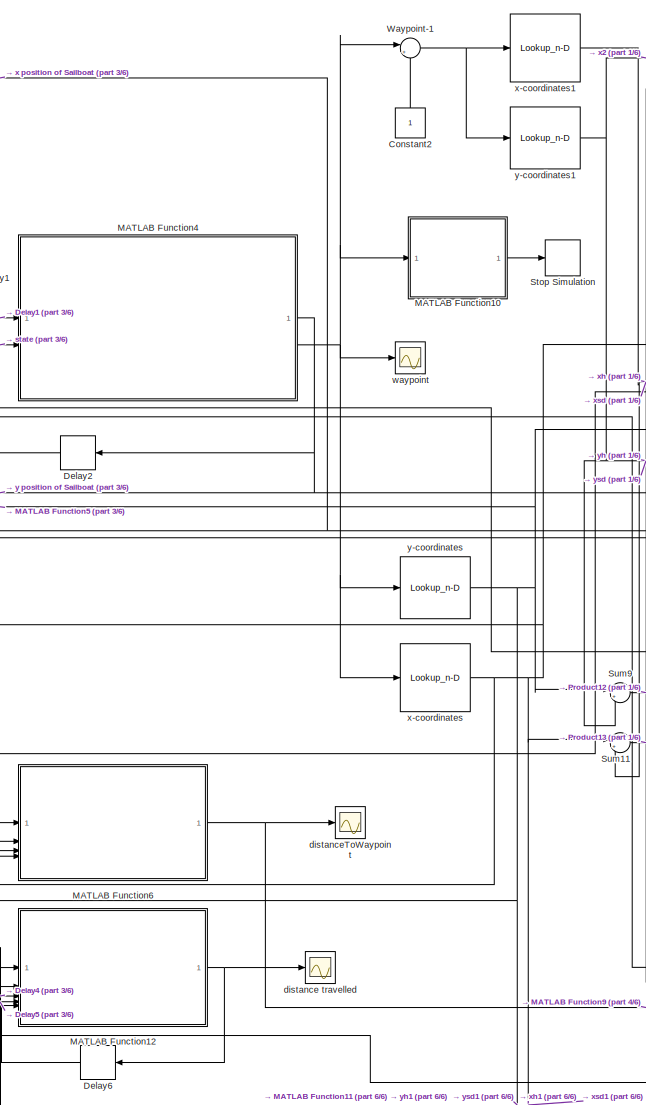
[diagram: Subsystem1 - part 2/6, top left region]
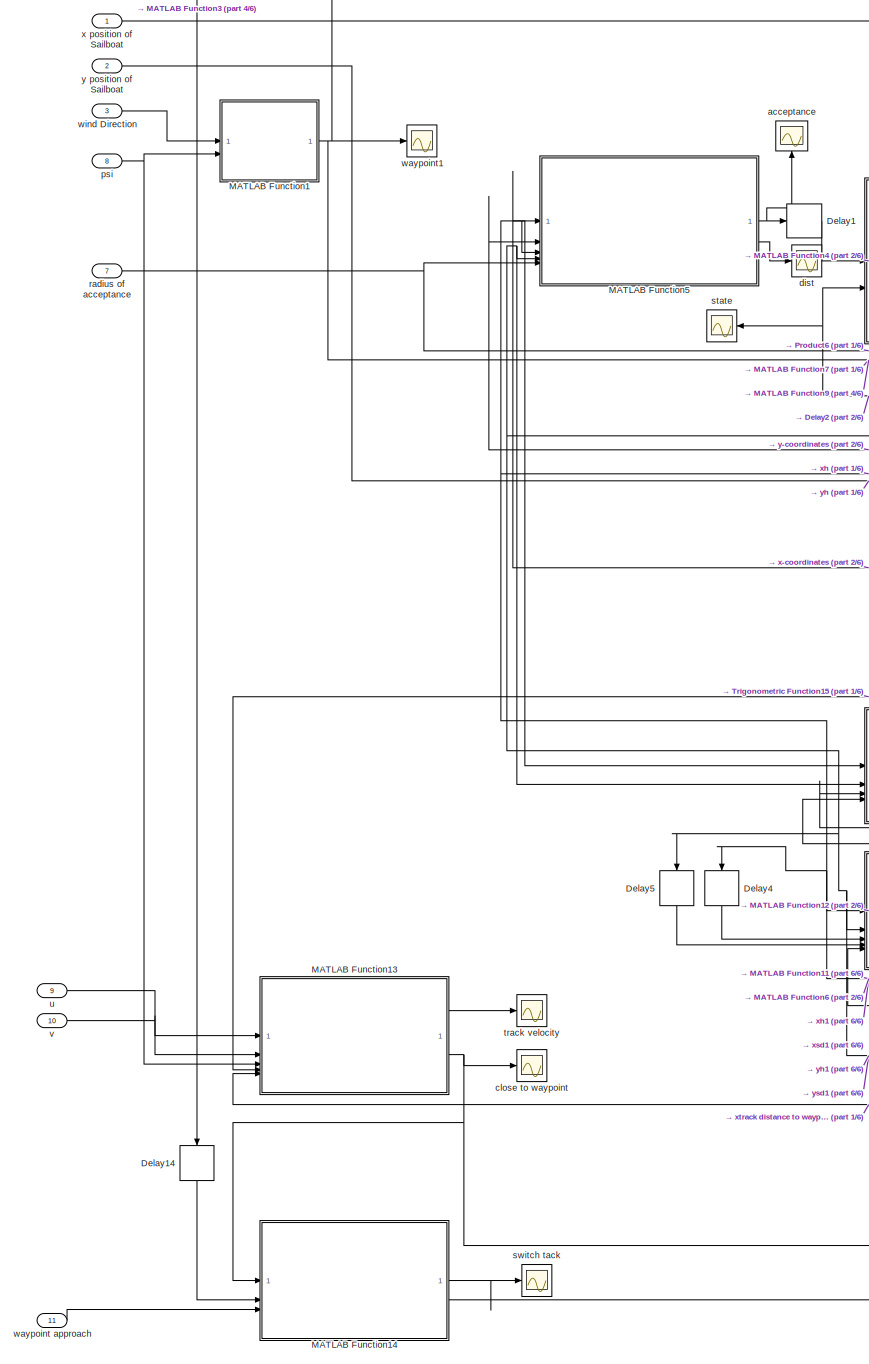
[diagram: Subsystem1 - part 3/6, middle left region]
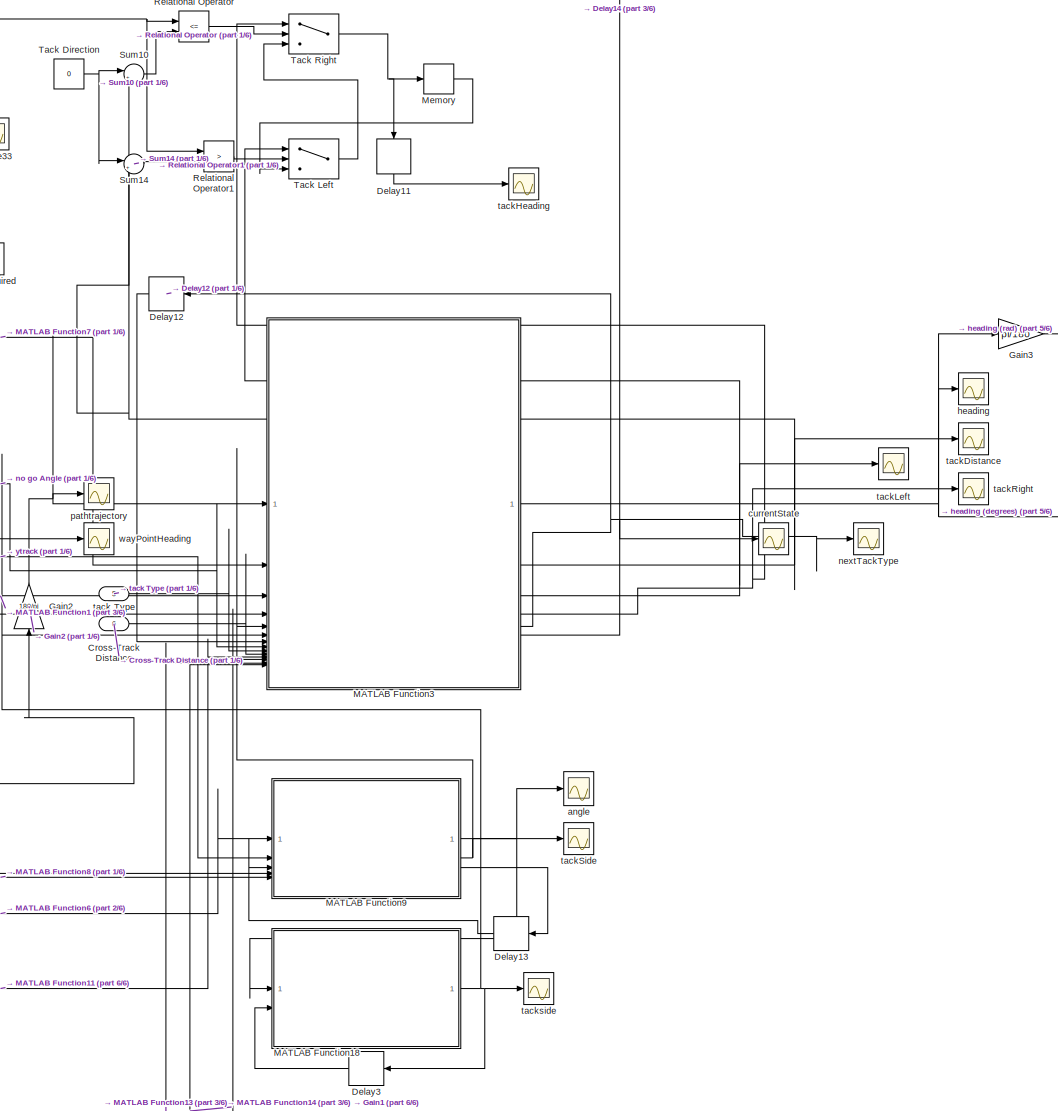
[diagram: Subsystem1 - part 4/6, top right region]
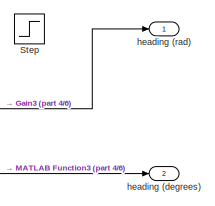
[diagram: Subsystem1 - part 5/6, top right region]
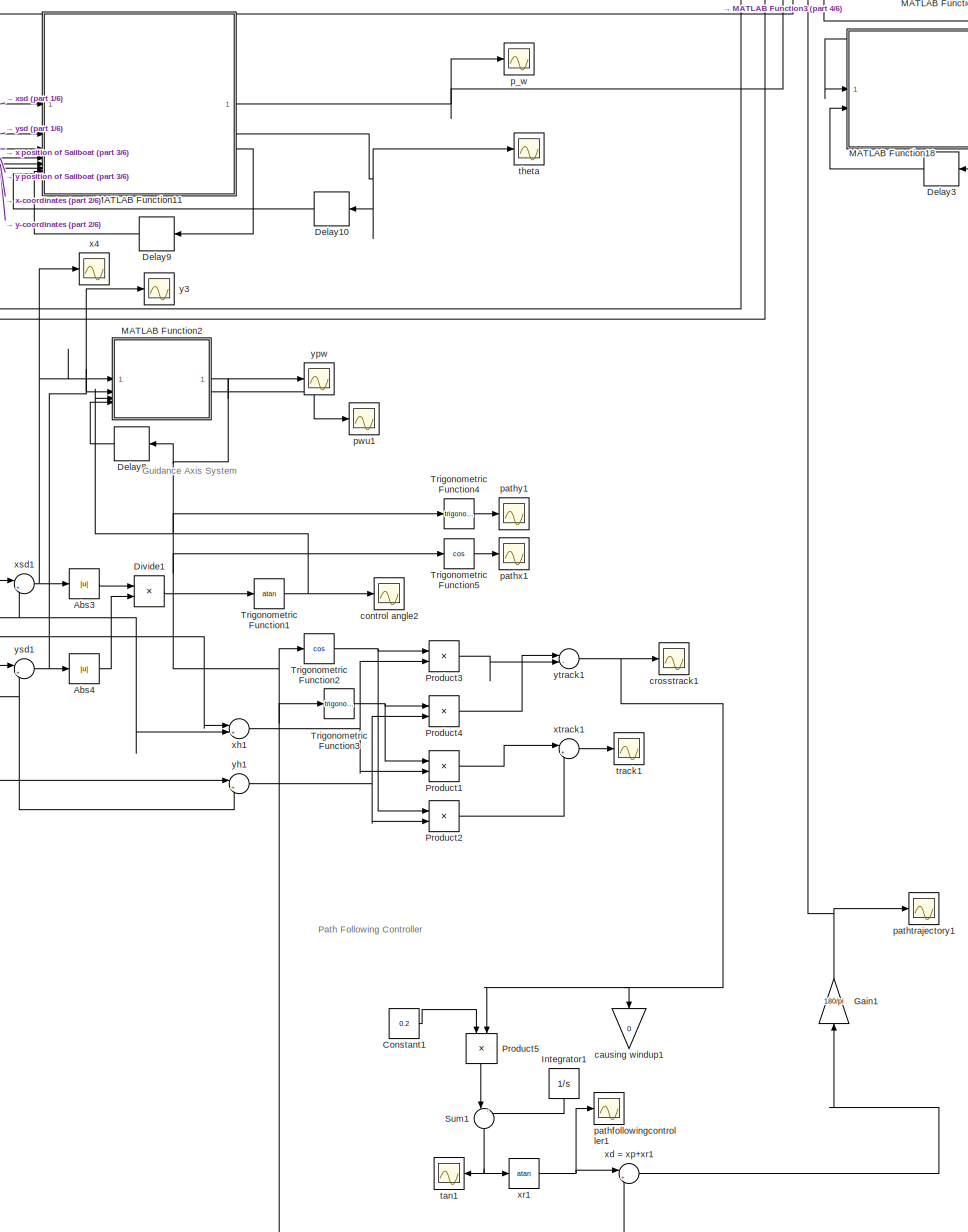
[diagram: Subsystem1 - part 6/6, bottom center region]
BLOCK [SubSystem] Subsystem1
BLOCK [Abs] Subsystem1/Abs1
  SaturateOnIntegerOverflow = off
BLOCK [Abs] Subsystem1/Abs2
  SaturateOnIntegerOverflow = off
BLOCK [Abs] Subsystem1/Abs3
  SaturateOnIntegerOverflow = off
BLOCK [Abs] Subsystem1/Abs4
  SaturateOnIntegerOverflow = off
BLOCK [Constant] Subsystem1/Constant
BLOCK [Constant] Subsystem1/Constant1
  Value = 0.2
BLOCK [Constant] Subsystem1/Constant2
  NameLocation = right
BLOCK [Inport] Subsystem1/Cross-Track Distance
  Port = 6
BLOCK [Delay] Subsystem1/Delay1
  DelayLength = 1
  InputPortMap = u0
  NameLocation = top
BLOCK [Delay] Subsystem1/Delay10
  DelayLength = 1
  InputPortMap = u0
BLOCK [Delay] Subsystem1/Delay11
  DelayLength = 1
  InputPortMap = u0
  NameLocation = right
BLOCK [Delay] Subsystem1/Delay12
  DelayLength = 1
  InputPortMap = u0
BLOCK [Delay] Subsystem1/Delay13
  DelayLength = 1
  InputPortMap = u0
  SampleTime = 2
BLOCK [Delay] Subsystem1/Delay14
  DelayLength = 1
  InputPortMap = u0
  NameLocation = right
BLOCK [Delay] Subsystem1/Delay2
  DelayLength = 1
  InputPortMap = u0
BLOCK [Delay] Subsystem1/Delay3
  DelayLength = 1
  InputPortMap = u0
  SampleTime = 2
BLOCK [Delay] Subsystem1/Delay4
  DelayLength = 1
  InputPortMap = u0
  NameLocation = right
BLOCK [Delay] Subsystem1/Delay5
  DelayLength = 1
  InputPortMap = u0
  NameLocation = right
BLOCK [Delay] Subsystem1/Delay6
  DelayLength = 1
  InputPortMap = u0
BLOCK [Delay] Subsystem1/Delay7
  DelayLength = 1
  InputPortMap = u0
BLOCK [Delay] Subsystem1/Delay8
  DelayLength = 1
  InputPortMap = u0
BLOCK [Delay] Subsystem1/Delay9
  DelayLength = 1
  InputPortMap = u0
BLOCK [Product] Subsystem1/Divide
  Inputs = */
BLOCK [Product] Subsystem1/Divide1
  Inputs = */
BLOCK [Product] Subsystem1/Divide6
  Inputs = */
BLOCK [Gain] Subsystem1/Gain1
  Gain = 180/pi
  NameLocation = right
BLOCK [Gain] Subsystem1/Gain10
  Gain = pi/180
  NameLocation = right
BLOCK [Gain] Subsystem1/Gain15
  Gain = 180/pi
  NameLocation = right
BLOCK [Gain] Subsystem1/Gain2
  Gain = 180/pi
  NameLocation = right
BLOCK [Gain] Subsystem1/Gain3
  Gain = pi/180
BLOCK [Integrator] Subsystem1/Integrator1
  LimitOutput = on
  LowerSaturationLimit = -10
  NameLocation = left
  UpperSaturationLimit = 10
BLOCK [Integrator] Subsystem1/Integrator17
  LimitOutput = on
  LowerSaturationLimit = -pi/10
  NameLocation = left
  UpperSaturationLimit = pi/10
BLOCK [Scope] Subsystem1/Kpe
  Floating = off
  NameLocation = right
  NumInputPorts = 1
  ScopeSpecificationString = Simulink.scopes.TimeScopeBlockCfg('CurrentConfiguration', extmgr.ConfigurationSet(extmgr.Configuration('Core','General UI',true,'FigureColor',[1 1 1]),extmgr.Configuration('Core','Source UI',true),extmgr.Configuration('Sources','WiredSimulink',true,'DataLoggingVariableName','ScopeData1'),extmgr.Configuration('Visuals','Time Domain',true,'SerializedDisplays',{struct('MinYLimReal','0.09937','MaxYLim...<+2407ch>
BLOCK [SubSystem] Subsystem1/MATLAB Function1
  ErrorFcn = Stateflow.Translate.translate
  LibrarySourceBlock = simulink/User-Defined\nFunctions/MATLAB Function
  PermitHierarchicalResolution = ExplicitOnly
  SFBlockType = MATLAB Function
  TreatAsAtomicUnit = on
BLOCK [Demux] Subsystem1/MATLAB Function1/ Demux 
  Outputs = 1
BLOCK [S-Function] Subsystem1/MATLAB Function1/ SFunction 
  EnableBusSupport = on
  FunctionName = sf_sfun
  PortCounts = [2 2]
  SFcnIsStateOwnerBlock = off
  SFunctionDeploymentMode = off
  Tag = Stateflow S-Function 14
BLOCK [Terminator] Subsystem1/MATLAB Function1/ Terminator 
BLOCK [Inport] Subsystem1/MATLAB Function1/awa
BLOCK [Inport] Subsystem1/MATLAB Function1/psi
  Port = 2
BLOCK [Outport] Subsystem1/MATLAB Function1/y
BLOCK [SubSystem] Subsystem1/MATLAB Function10
  ErrorFcn = Stateflow.Translate.translate
  LibrarySourceBlock = simulink/User-Defined\nFunctions/MATLAB Function
  PermitHierarchicalResolution = ExplicitOnly
  SFBlockType = MATLAB Function
  TreatAsAtomicUnit = on
BLOCK [Demux] Subsystem1/MATLAB Function10/ Demux 
  Outputs = 1
BLOCK [S-Function] Subsystem1/MATLAB Function10/ SFunction 
  EnableBusSupport = on
  FunctionName = sf_sfun
  PortCounts = [1 2]
  SFcnIsStateOwnerBlock = off
  SFunctionDeploymentMode = off
  Tag = Stateflow S-Function 18
BLOCK [Terminator] Subsystem1/MATLAB Function10/ Terminator 
BLOCK [Inport] Subsystem1/MATLAB Function10/state
BLOCK [Outport] Subsystem1/MATLAB Function10/y
BLOCK [SubSystem] Subsystem1/MATLAB Function11
  ErrorFcn = Stateflow.Translate.translate
  LibrarySourceBlock = simulink/User-Defined\nFunctions/MATLAB Function
  PermitHierarchicalResolution = ExplicitOnly
  SFBlockType = MATLAB Function
  TreatAsAtomicUnit = on
BLOCK [Demux] Subsystem1/MATLAB Function11/ Demux 
  Outputs = 1
BLOCK [S-Function] Subsystem1/MATLAB Function11/ SFunction 
  EnableBusSupport = on
  FunctionName = sf_sfun
  PortCounts = [8 4]
  SFcnIsStateOwnerBlock = off
  SFunctionDeploymentMode = off
  Tag = Stateflow S-Function 23
BLOCK [Terminator] Subsystem1/MATLAB Function11/ Terminator 
BLOCK [Outport] Subsystem1/MATLAB Function11/p_w
BLOCK [Inport] Subsystem1/MATLAB Function11/pwc
  Port = 7
BLOCK [Outport] Subsystem1/MATLAB Function11/pwn
  Port = 3
BLOCK [Outport] Subsystem1/MATLAB Function11/theta
  Port = 2
BLOCK [Inport] Subsystem1/MATLAB Function11/thetaP
  Port = 8
BLOCK [Inport] Subsystem1/MATLAB Function11/xcw
  Port = 5
BLOCK [Inport] Subsystem1/MATLAB Function11/xs
  Port = 3
BLOCK [Inport] Subsystem1/MATLAB Function11/xw
BLOCK [Inport] Subsystem1/MATLAB Function11/ycw
  Port = 6
BLOCK [Inport] Subsystem1/MATLAB Function11/ys
  Port = 4
BLOCK [Inport] Subsystem1/MATLAB Function11/yw
  Port = 2
BLOCK [SubSystem] Subsystem1/MATLAB Function12
  ErrorFcn = Stateflow.Translate.translate
  LibrarySourceBlock = simulink/User-Defined\nFunctions/MATLAB Function
  PermitHierarchicalResolution = ExplicitOnly
  SFBlockType = MATLAB Function
  TreatAsAtomicUnit = on
BLOCK [Demux] Subsystem1/MATLAB Function12/ Demux 
  Outputs = 1
BLOCK [S-Function] Subsystem1/MATLAB Function12/ SFunction 
  EnableBusSupport = on
  FunctionName = sf_sfun
  PortCounts = [5 2]
  SFcnIsStateOwnerBlock = off
  SFunctionDeploymentMode = off
  Tag = Stateflow S-Function 24
BLOCK [Terminator] Subsystem1/MATLAB Function12/ Terminator 
BLOCK [Outport] Subsystem1/MATLAB Function12/dist
BLOCK [Inport] Subsystem1/MATLAB Function12/dist 
  Port = 5
BLOCK [Inport] Subsystem1/MATLAB Function12/x
  Port = 3
BLOCK [Inport] Subsystem1/MATLAB Function12/xs
BLOCK [Inport] Subsystem1/MATLAB Function12/y
  Port = 4
BLOCK [Inport] Subsystem1/MATLAB Function12/ys
  Port = 2
BLOCK [SubSystem] Subsystem1/MATLAB Function13
  ErrorFcn = Stateflow.Translate.translate
  LibrarySourceBlock = simulink/User-Defined\nFunctions/MATLAB Function
  PermitHierarchicalResolution = ExplicitOnly
  SFBlockType = MATLAB Function
  TreatAsAtomicUnit = on
BLOCK [Demux] Subsystem1/MATLAB Function13/ Demux 
  Outputs = 1
BLOCK [S-Function] Subsystem1/MATLAB Function13/ SFunction 
  EnableBusSupport = on
  FunctionName = sf_sfun
  PortCounts = [5 3]
  SFcnIsStateOwnerBlock = off
  SFunctionDeploymentMode = off
  Tag = Stateflow S-Function 17
BLOCK [Terminator] Subsystem1/MATLAB Function13/ Terminator 
BLOCK [Outport] Subsystem1/MATLAB Function13/closeToWaypoint
  Port = 2
BLOCK [Inport] Subsystem1/MATLAB Function13/psi
  Port = 3
BLOCK [Inport] Subsystem1/MATLAB Function13/psiTrack
  Port = 4
BLOCK [Inport] Subsystem1/MATLAB Function13/trackDistanceToWaypoint
  Port = 5
BLOCK [Inport] Subsystem1/MATLAB Function13/u
BLOCK [Outport] Subsystem1/MATLAB Function13/uTrack
BLOCK [Inport] Subsystem1/MATLAB Function13/v
  Port = 2
BLOCK [SubSystem] Subsystem1/MATLAB Function14
  ErrorFcn = Stateflow.Translate.translate
  LibrarySourceBlock = simulink/User-Defined\nFunctions/MATLAB Function
  PermitHierarchicalResolution = ExplicitOnly
  SFBlockType = MATLAB Function
  TreatAsAtomicUnit = on
BLOCK [Demux] Subsystem1/MATLAB Function14/ Demux 
  Outputs = 1
BLOCK [S-Function] Subsystem1/MATLAB Function14/ SFunction 
  EnableBusSupport = on
  FunctionName = sf_sfun
  PortCounts = [3 3]
  SFcnIsStateOwnerBlock = off
  SFunctionDeploymentMode = off
  Tag = Stateflow S-Function 19
BLOCK [Terminator] Subsystem1/MATLAB Function14/ Terminator 
BLOCK [Inport] Subsystem1/MATLAB Function14/closeToWaypoint
BLOCK [Outport] Subsystem1/MATLAB Function14/psiOffset
  Port = 2
BLOCK [Outport] Subsystem1/MATLAB Function14/switchTack
BLOCK [Inport] Subsystem1/MATLAB Function14/tacking
  Port = 2
BLOCK [Inport] Subsystem1/MATLAB Function14/waypointApproach
  Port = 3
BLOCK [SubSystem] Subsystem1/MATLAB Function18
  ErrorFcn = Stateflow.Translate.translate
  LibrarySourceBlock = simulink/User-Defined\nFunctions/MATLAB Function
  PermitHierarchicalResolution = ExplicitOnly
  SFBlockType = MATLAB Function
  TreatAsAtomicUnit = on
BLOCK [Demux] Subsystem1/MATLAB Function18/ Demux 
  Outputs = 1
BLOCK [S-Function] Subsystem1/MATLAB Function18/ SFunction 
  EnableBusSupport = on
  FunctionName = sf_sfun
  PortCounts = [2 2]
  SFcnIsStateOwnerBlock = off
  SFunctionDeploymentMode = off
  Tag = Stateflow S-Function 25
BLOCK [Terminator] Subsystem1/MATLAB Function18/ Terminator 
BLOCK [Inport] Subsystem1/MATLAB Function18/angle
BLOCK [Inport] Subsystem1/MATLAB Function18/currentState
  Port = 2
BLOCK [Outport] Subsystem1/MATLAB Function18/nextState
BLOCK [SubSystem] Subsystem1/MATLAB Function2
  ErrorFcn = Stateflow.Translate.translate
  LibrarySourceBlock = simulink/User-Defined\nFunctions/MATLAB Function
  PermitHierarchicalResolution = ExplicitOnly
  SFBlockType = MATLAB Function
  TreatAsAtomicUnit = on
BLOCK [Demux] Subsystem1/MATLAB Function2/ Demux 
  Outputs = 1
BLOCK [S-Function] Subsystem1/MATLAB Function2/ SFunction 
  EnableBusSupport = on
  FunctionName = sf_sfun
  PortCounts = [4 3]
  SFcnIsStateOwnerBlock = off
  SFunctionDeploymentMode = off
  Tag = Stateflow S-Function 16
BLOCK [Terminator] Subsystem1/MATLAB Function2/ Terminator 
BLOCK [Inport] Subsystem1/MATLAB Function2/u
  Port = 3
BLOCK [Outport] Subsystem1/MATLAB Function2/u1
  Port = 2
BLOCK [Inport] Subsystem1/MATLAB Function2/us
  Port = 4
BLOCK [Inport] Subsystem1/MATLAB Function2/x1
BLOCK [Outport] Subsystem1/MATLAB Function2/y
BLOCK [Inport] Subsystem1/MATLAB Function2/y1
  Port = 2
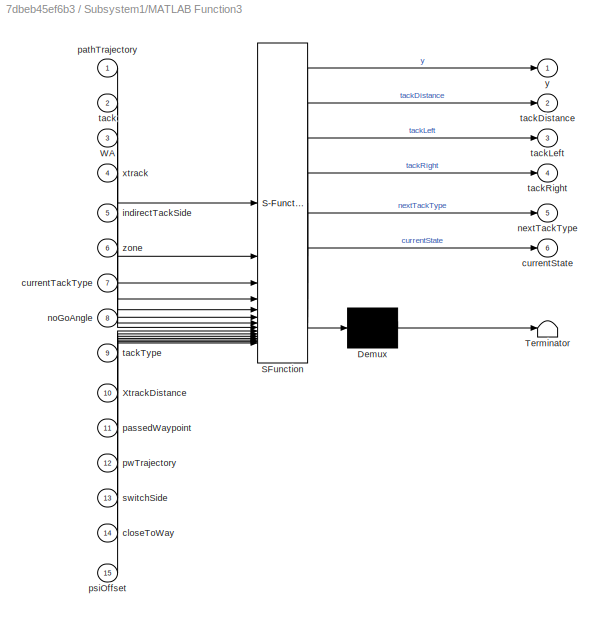
BLOCK [SubSystem] Subsystem1/MATLAB Function3
  ErrorFcn = Stateflow.Translate.translate
  LibrarySourceBlock = simulink/User-Defined\nFunctions/MATLAB Function
  PermitHierarchicalResolution = ExplicitOnly
  SFBlockType = MATLAB Function
  TreatAsAtomicUnit = on
BLOCK [Demux] Subsystem1/MATLAB Function3/ Demux 
  Outputs = 1
BLOCK [S-Function] Subsystem1/MATLAB Function3/ SFunction 
  EnableBusSupport = on
  FunctionName = sf_sfun
  PortCounts = [15 7]
  SFcnIsStateOwnerBlock = off
  SFunctionDeploymentMode = off
  Tag = Stateflow S-Function 26
BLOCK [Terminator] Subsystem1/MATLAB Function3/ Terminator 
BLOCK [Inport] Subsystem1/MATLAB Function3/WA
  Port = 3
BLOCK [Inport] Subsystem1/MATLAB Function3/XtrackDistance
  Port = 10
BLOCK [Inport] Subsystem1/MATLAB Function3/closeToWay
  Port = 14
BLOCK [Outport] Subsystem1/MATLAB Function3/currentState
  Port = 6
BLOCK [Inport] Subsystem1/MATLAB Function3/currentTackType
  Port = 7
BLOCK [Inport] Subsystem1/MATLAB Function3/indirectTackSide
  Port = 5
BLOCK [Outport] Subsystem1/MATLAB Function3/nextTackType
  Port = 5
BLOCK [Inport] Subsystem1/MATLAB Function3/noGoAngle
  Port = 8
BLOCK [Inport] Subsystem1/MATLAB Function3/passedWaypoint
  Port = 11
BLOCK [Inport] Subsystem1/MATLAB Function3/pathTrajectory
BLOCK [Inport] Subsystem1/MATLAB Function3/psiOffset
  Port = 15
BLOCK [Inport] Subsystem1/MATLAB Function3/pwTrajectory
  Port = 12
BLOCK [Inport] Subsystem1/MATLAB Function3/switchSide
  Port = 13
BLOCK [Inport] Subsystem1/MATLAB Function3/tack
  Port = 2
BLOCK [Outport] Subsystem1/MATLAB Function3/tackDistance
  Port = 2
BLOCK [Outport] Subsystem1/MATLAB Function3/tackLeft
  Port = 3
BLOCK [Outport] Subsystem1/MATLAB Function3/tackRight
  Port = 4
BLOCK [Inport] Subsystem1/MATLAB Function3/tackType
  Port = 9
BLOCK [Inport] Subsystem1/MATLAB Function3/xtrack
  Port = 4
BLOCK [Outport] Subsystem1/MATLAB Function3/y
BLOCK [Inport] Subsystem1/MATLAB Function3/zone
  Port = 6
BLOCK [SubSystem] Subsystem1/MATLAB Function4
  ErrorFcn = Stateflow.Translate.translate
  LibrarySourceBlock = simulink/User-Defined\nFunctions/MATLAB Function
  PermitHierarchicalResolution = ExplicitOnly
  SFBlockType = MATLAB Function
  TreatAsAtomicUnit = on
BLOCK [Demux] Subsystem1/MATLAB Function4/ Demux 
  Outputs = 1
BLOCK [S-Function] Subsystem1/MATLAB Function4/ SFunction 
  EnableBusSupport = on
  FunctionName = sf_sfun
  PortCounts = [2 3]
  SFcnIsStateOwnerBlock = off
  SFunctionDeploymentMode = off
  Tag = Stateflow S-Function 27
BLOCK [Terminator] Subsystem1/MATLAB Function4/ Terminator 
BLOCK [Inport] Subsystem1/MATLAB Function4/R
BLOCK [Inport] Subsystem1/MATLAB Function4/currentState
  Port = 2
BLOCK [Outport] Subsystem1/MATLAB Function4/currentWaypoint
  Port = 2
BLOCK [Outport] Subsystem1/MATLAB Function4/nextState
BLOCK [SubSystem] Subsystem1/MATLAB Function5
  ErrorFcn = Stateflow.Translate.translate
  LibrarySourceBlock = simulink/User-Defined\nFunctions/MATLAB Function
  PermitHierarchicalResolution = ExplicitOnly
  SFBlockType = MATLAB Function
  TreatAsAtomicUnit = on
BLOCK [Demux] Subsystem1/MATLAB Function5/ Demux 
  Outputs = 1
BLOCK [S-Function] Subsystem1/MATLAB Function5/ SFunction 
  EnableBusSupport = on
  FunctionName = sf_sfun
  PortCounts = [5 3]
  SFcnIsStateOwnerBlock = off
  SFunctionDeploymentMode = off
  Tag = Stateflow S-Function 28
BLOCK [Terminator] Subsystem1/MATLAB Function5/ Terminator 
BLOCK [Inport] Subsystem1/MATLAB Function5/R
  Port = 5
BLOCK [Outport] Subsystem1/MATLAB Function5/acceptance
BLOCK [Outport] Subsystem1/MATLAB Function5/dist
  Port = 2
BLOCK [Inport] Subsystem1/MATLAB Function5/xBoat
  Port = 3
BLOCK [Inport] Subsystem1/MATLAB Function5/xWaypoint
BLOCK [Inport] Subsystem1/MATLAB Function5/yBoat
  Port = 4
BLOCK [Inport] Subsystem1/MATLAB Function5/yWaypoint
  Port = 2
BLOCK [SubSystem] Subsystem1/MATLAB Function6
  ErrorFcn = Stateflow.Translate.translate
  LibrarySourceBlock = simulink/User-Defined\nFunctions/MATLAB Function
  PermitHierarchicalResolution = ExplicitOnly
  SFBlockType = MATLAB Function
  TreatAsAtomicUnit = on
BLOCK [Demux] Subsystem1/MATLAB Function6/ Demux 
  Outputs = 1
BLOCK [S-Function] Subsystem1/MATLAB Function6/ SFunction 
  EnableBusSupport = on
  FunctionName = sf_sfun
  PortCounts = [4 2]
  SFcnIsStateOwnerBlock = off
  SFunctionDeploymentMode = off
  Tag = Stateflow S-Function 29
BLOCK [Terminator] Subsystem1/MATLAB Function6/ Terminator 
BLOCK [Inport] Subsystem1/MATLAB Function6/xw
BLOCK [Inport] Subsystem1/MATLAB Function6/xwp
  Port = 3
BLOCK [Outport] Subsystem1/MATLAB Function6/y
BLOCK [Inport] Subsystem1/MATLAB Function6/yw
  Port = 2
BLOCK [Inport] Subsystem1/MATLAB Function6/ywp
  Port = 4
BLOCK [SubSystem] Subsystem1/MATLAB Function7
  ErrorFcn = Stateflow.Translate.translate
  LibrarySourceBlock = simulink/User-Defined\nFunctions/MATLAB Function
  PermitHierarchicalResolution = ExplicitOnly
  SFBlockType = MATLAB Function
  TreatAsAtomicUnit = on
BLOCK [Demux] Subsystem1/MATLAB Function7/ Demux 
  Outputs = 1
BLOCK [S-Function] Subsystem1/MATLAB Function7/ SFunction 
  EnableBusSupport = on
  FunctionName = sf_sfun
  PortCounts = [2 5]
  SFcnIsStateOwnerBlock = off
  SFunctionDeploymentMode = off
  Tag = Stateflow S-Function 30
BLOCK [Terminator] Subsystem1/MATLAB Function7/ Terminator 
BLOCK [Outport] Subsystem1/MATLAB Function7/awa
  Port = 4
BLOCK [Outport] Subsystem1/MATLAB Function7/p
  Port = 3
BLOCK [Inport] Subsystem1/MATLAB Function7/psi
  Port = 2
BLOCK [Outport] Subsystem1/MATLAB Function7/w
  Port = 2
BLOCK [Inport] Subsystem1/MATLAB Function7/wa
BLOCK [Outport] Subsystem1/MATLAB Function7/y
BLOCK [SubSystem] Subsystem1/MATLAB Function8
  ErrorFcn = Stateflow.Translate.translate
  LibrarySourceBlock = simulink/User-Defined\nFunctions/MATLAB Function
  PermitHierarchicalResolution = ExplicitOnly
  SFBlockType = MATLAB Function
  TreatAsAtomicUnit = on
BLOCK [Demux] Subsystem1/MATLAB Function8/ Demux 
  Outputs = 1
BLOCK [S-Function] Subsystem1/MATLAB Function8/ SFunction 
  EnableBusSupport = on
  FunctionName = sf_sfun
  PortCounts = [4 2]
  SFcnIsStateOwnerBlock = off
  SFunctionDeploymentMode = off
  Tag = Stateflow S-Function 31
BLOCK [Terminator] Subsystem1/MATLAB Function8/ Terminator 
BLOCK [Inport] Subsystem1/MATLAB Function8/u
  Port = 3
BLOCK [Inport] Subsystem1/MATLAB Function8/us
  Port = 4
BLOCK [Inport] Subsystem1/MATLAB Function8/x1
BLOCK [Outport] Subsystem1/MATLAB Function8/y
BLOCK [Inport] Subsystem1/MATLAB Function8/y1
  Port = 2
BLOCK [SubSystem] Subsystem1/MATLAB Function9
  ErrorFcn = Stateflow.Translate.translate
  LibrarySourceBlock = simulink/User-Defined\nFunctions/MATLAB Function
  PermitHierarchicalResolution = ExplicitOnly
  SFBlockType = MATLAB Function
  TreatAsAtomicUnit = on
BLOCK [Demux] Subsystem1/MATLAB Function9/ Demux 
  Outputs = 1
BLOCK [S-Function] Subsystem1/MATLAB Function9/ SFunction 
  EnableBusSupport = on
  FunctionName = sf_sfun
  PortCounts = [5 4]
  SFcnIsStateOwnerBlock = off
  SFunctionDeploymentMode = off
  Tag = Stateflow S-Function 32
BLOCK [Terminator] Subsystem1/MATLAB Function9/ Terminator 
BLOCK [Outport] Subsystem1/MATLAB Function9/angle
BLOCK [Inport] Subsystem1/MATLAB Function9/currentState
  Port = 3
BLOCK [Inport] Subsystem1/MATLAB Function9/dist
BLOCK [Outport] Subsystem1/MATLAB Function9/nextState
  Port = 3
BLOCK [Outport] Subsystem1/MATLAB Function9/tack
  Port = 2
BLOCK [Inport] Subsystem1/MATLAB Function9/wayPointHeading
  Port = 5
BLOCK [Inport] Subsystem1/MATLAB Function9/windDirection
  Port = 4
BLOCK [Inport] Subsystem1/MATLAB Function9/xtrack
  Port = 2
BLOCK [Memory] Subsystem1/Memory
BLOCK [Product] Subsystem1/Product1
BLOCK [Product] Subsystem1/Product10
BLOCK [Product] Subsystem1/Product11
BLOCK [Product] Subsystem1/Product12
BLOCK [Product] Subsystem1/Product13
BLOCK [Product] Subsystem1/Product2
BLOCK [Product] Subsystem1/Product3
BLOCK [Product] Subsystem1/Product4
BLOCK [Product] Subsystem1/Product5
  NameLocation = left
BLOCK [Product] Subsystem1/Product6
BLOCK [Product] Subsystem1/Product7
BLOCK [Product] Subsystem1/Product84
BLOCK [Product] Subsystem1/Product85
BLOCK [Product] Subsystem1/Product88
  NameLocation = left
BLOCK [RelationalOperator] Subsystem1/Relational Operator
  InputSameDT = off
  Operator = <=
  OutDataTypeStr = boolean
  RndMeth = Simplest
BLOCK [RelationalOperator] Subsystem1/Relational Operator1
  InputSameDT = off
  Operator = >
  OutDataTypeStr = boolean
  RndMeth = Simplest
BLOCK [Saturate] Subsystem1/Saturation1
  LowerLimit = -4.9
  NameLocation = top
  UpperLimit = 4.9
BLOCK [Scope] Subsystem1/Scope33
  Floating = off
  NumInputPorts = 1
  ScopeSpecificationString = Simulink.scopes.TimeScopeBlockCfg('CurrentConfiguration', extmgr.ConfigurationSet(extmgr.Configuration('Core','General UI',true),extmgr.Configuration('Core','Source UI',true),extmgr.Configuration('Sources','WiredSimulink',true,'DataLoggingVariableName','ScopeData75'),extmgr.Configuration('Visuals','Time Domain',true,'SerializedDisplays',{struct('MinYLimReal','0.10698','MaxYLimReal','0.38514','YLab...<+1432ch>
BLOCK [Sqrt] Subsystem1/Sqrt
BLOCK [Sqrt] Subsystem1/Sqrt1
BLOCK [Step] Subsystem1/Step
  After = 0.25
  SampleTime = 0
BLOCK [Stop] Subsystem1/Stop Simulation
BLOCK [Sum] Subsystem1/Sum1
  Inputs = |--
  NameLocation = left
BLOCK [Sum] Subsystem1/Sum10
  Inputs = |+-
BLOCK [Sum] Subsystem1/Sum11
  Inputs = |+-
BLOCK [Sum] Subsystem1/Sum14
  Inputs = |++
BLOCK [Sum] Subsystem1/Sum16
  Inputs = |--
  NameLocation = left
BLOCK [Sum] Subsystem1/Sum2
  Inputs = |+-
BLOCK [Sum] Subsystem1/Sum8
  Inputs = |++
BLOCK [Sum] Subsystem1/Sum9
  Inputs = |+-
BLOCK [Constant] Subsystem1/Tack Direction
  NameLocation = top
  Value = 0
BLOCK [Switch] Subsystem1/Tack Left
  Criteria = u2 > Threshold
  InputSameDT = off
  SaturateOnIntegerOverflow = off
BLOCK [Switch] Subsystem1/Tack Right
  Criteria = u2 > Threshold
  InputSameDT = off
  SaturateOnIntegerOverflow = off
BLOCK [Trigonometry] Subsystem1/Trigonometric Function1
  Operator = atan
BLOCK [Trigonometry] Subsystem1/Trigonometric Function15
  Operator = atan
BLOCK [Trigonometry] Subsystem1/Trigonometric Function16
  Operator = cos
BLOCK [Trigonometry] Subsystem1/Trigonometric Function17
BLOCK [Trigonometry] Subsystem1/Trigonometric Function2
  Operator = cos
BLOCK [Trigonometry] Subsystem1/Trigonometric Function3
BLOCK [Trigonometry] Subsystem1/Trigonometric Function4
BLOCK [Trigonometry] Subsystem1/Trigonometric Function5
  Operator = cos
BLOCK [Trigonometry] Subsystem1/Trigonometric Function8
BLOCK [Trigonometry] Subsystem1/Trigonometric Function9
  Operator = cos
BLOCK [Sum] Subsystem1/Waypoint-1
  Inputs = |+-
  NameLocation = top
BLOCK [Scope] Subsystem1/acceptance
  Floating = off
  NameLocation = top
  NumInputPorts = 1
  ScopeSpecificationString = Simulink.scopes.TimeScopeBlockCfg('CurrentConfiguration', extmgr.ConfigurationSet(extmgr.Configuration('Core','General UI',true,'FigureColor',[1 1 1]),extmgr.Configuration('Core','Source UI',true),extmgr.Configuration('Sources','WiredSimulink',true,'DataLoggingVariableName','ScopeData1'),extmgr.Configuration('Visuals','Time Domain',true,'SerializedDisplays',{struct('MinYLimReal','-0.125','MaxYLimR...<+2417ch>
BLOCK [Scope] Subsystem1/angle
  Floating = off
  NameLocation = right
  NumInputPorts = 1
  ScopeSpecificationString = Simulink.scopes.TimeScopeBlockCfg('CurrentConfiguration', extmgr.ConfigurationSet(extmgr.Configuration('Core','General UI',true,'FigureColor',[1 1 1]),extmgr.Configuration('Core','Source UI',true),extmgr.Configuration('Sources','WiredSimulink',true,'DataLoggingVariableName','ScopeData2'),extmgr.Configuration('Visuals','Time Domain',true,'SerializedDisplays',{struct('MinYLimReal','-77.62092','MaxYL...<+2459ch>
BLOCK [Scope] Subsystem1/awa2
  Floating = off
  NameLocation = right
  NumInputPorts = 1
  ScopeSpecificationString = Simulink.scopes.TimeScopeBlockCfg('CurrentConfiguration', extmgr.ConfigurationSet(extmgr.Configuration('Core','General UI',true,'FigureColor',[1 1 1]),extmgr.Configuration('Core','Source UI',true),extmgr.Configuration('Sources','WiredSimulink',true,'DataLoggingVariableName','ScopeData4'),extmgr.Configuration('Visuals','Time Domain',true,'SerializedDisplays',{struct('MinYLimReal','-3.62466','MaxYLi...<+2431ch>
BLOCK [Scope] Subsystem1/awa3
  Floating = off
  NameLocation = right
  NumInputPorts = 2
  ScopeSpecificationString = Simulink.scopes.TimeScopeBlockCfg('CurrentConfiguration', extmgr.ConfigurationSet(extmgr.Configuration('Core','General UI',true,'FigureColor',[1 1 1]),extmgr.Configuration('Core','Source UI',true),extmgr.Configuration('Sources','WiredSimulink',true,'DataLoggingVariableName','ScopeData5'),extmgr.Configuration('Visuals','Time Domain',true,'SerializedDisplays',{struct('MinYLimReal','-1.95126','MaxYLi...<+2464ch>
BLOCK [Gain] Subsystem1/causing windup
  Gain = 0.01
  NameLocation = right
BLOCK [Gain] Subsystem1/causing windup1
  Gain = 0
  NameLocation = right
BLOCK [Scope] Subsystem1/close to waypoint
  Floating = off
  NameLocation = right
  NumInputPorts = 1
  ScopeSpecificationString = Simulink.scopes.TimeScopeBlockCfg('CurrentConfiguration', extmgr.ConfigurationSet(extmgr.Configuration('Core','General UI',true,'FigureColor',[1 1 1]),extmgr.Configuration('Core','Source UI',true),extmgr.Configuration('Sources','WiredSimulink',true,'DataLoggingVariableName','ScopeData2'),extmgr.Configuration('Visuals','Time Domain',true,'SerializedDisplays',{struct('MinYLimReal','-0.125','MaxYLimR...<+2449ch>
BLOCK [Scope] Subsystem1/control angle
  Floating = off
  NameLocation = right
  NumInputPorts = 1
  ScopeSpecificationString = Simulink.scopes.TimeScopeBlockCfg('CurrentConfiguration', extmgr.ConfigurationSet(extmgr.Configuration('Core','General UI',true,'FigureColor',[1 1 1]),extmgr.Configuration('Core','Source UI',true),extmgr.Configuration('Sources','WiredSimulink',true,'DataLoggingVariableName','ScopeData6'),extmgr.Configuration('Visuals','Time Domain',true,'SerializedDisplays',{struct('MinYLimReal','-8.9456','MaxYLim...<+2415ch>
BLOCK [Scope] Subsystem1/control angle1
  Floating = off
  NameLocation = right
  NumInputPorts = 1
  ScopeSpecificationString = Simulink.scopes.TimeScopeBlockCfg('CurrentConfiguration', extmgr.ConfigurationSet(extmgr.Configuration('Core','General UI',true,'FigureColor',[1 1 1]),extmgr.Configuration('Core','Source UI',true),extmgr.Configuration('Sources','WiredSimulink',true,'DataLoggingVariableName','ScopeData7'),extmgr.Configuration('Visuals','Time Domain',true,'SerializedDisplays',{struct('MinYLimReal','-0.19323','MaxYLi...<+2765ch>
BLOCK [Scope] Subsystem1/control angle2
  Floating = off
  NameLocation = right
  NumInputPorts = 1
  ScopeSpecificationString = Simulink.scopes.TimeScopeBlockCfg('CurrentConfiguration', extmgr.ConfigurationSet(extmgr.Configuration('Core','General UI',true,'FigureColor',[1 1 1]),extmgr.Configuration('Core','Source UI',true),extmgr.Configuration('Sources','WiredSimulink',true,'DataLoggingVariableName','ScopeData3'),extmgr.Configuration('Visuals','Time Domain',true,'SerializedDisplays',{struct('MinYLimReal','0.5708','MaxYLimR...<+2442ch>
BLOCK [Scope] Subsystem1/crosstrack
  Floating = off
  NameLocation = right
  NumInputPorts = 1
  ScopeSpecificationString = Simulink.scopes.TimeScopeBlockCfg('CurrentConfiguration', extmgr.ConfigurationSet(extmgr.Configuration('Core','General UI',true,'FigureColor',[1 1 1]),extmgr.Configuration('Core','Source UI',true),extmgr.Configuration('Sources','WiredSimulink',true,'DataLoggingVariableName','ScopeData8'),extmgr.Configuration('Visuals','Time Domain',true,'SerializedDisplays',{struct('MinYLimReal','-17.24253','MaxYL...<+2383ch>
BLOCK [Scope] Subsystem1/crosstrack1
  Floating = off
  NameLocation = right
  NumInputPorts = 1
  ScopeSpecificationString = Simulink.scopes.TimeScopeBlockCfg('CurrentConfiguration', extmgr.ConfigurationSet(extmgr.Configuration('Core','General UI',true,'FigureColor',[1 1 1]),extmgr.Configuration('Core','Source UI',true),extmgr.Configuration('Sources','WiredSimulink',true,'DataLoggingVariableName','ScopeData4'),extmgr.Configuration('Visuals','Time Domain',true,'SerializedDisplays',{struct('MinYLimReal','-17.24253','MaxYL...<+2384ch>
BLOCK [Scope] Subsystem1/currentState
  Floating = off
  NumInputPorts = 1
  ScopeSpecificationString = Simulink.scopes.TimeScopeBlockCfg('CurrentConfiguration', extmgr.ConfigurationSet(extmgr.Configuration('Core','General UI',true,'FigureColor',[1 1 1]),extmgr.Configuration('Core','Source UI',true),extmgr.Configuration('Sources','WiredSimulink',true,'DataLoggingVariableName','ScopeData10'),extmgr.Configuration('Visuals','Time Domain',true,'SerializedDisplays',{struct('MinYLimReal','-0.5','MaxYLimRe...<+2423ch>
BLOCK [Scope] Subsystem1/dist
  Floating = off
  NameLocation = right
  NumInputPorts = 1
  ScopeSpecificationString = Simulink.scopes.TimeScopeBlockCfg('CurrentConfiguration', extmgr.ConfigurationSet(extmgr.Configuration('Core','General UI',true,'FigureColor',[1 1 1]),extmgr.Configuration('Core','Source UI',true),extmgr.Configuration('Sources','WiredSimulink',true,'DataLoggingVariableName','ScopeData22'),extmgr.Configuration('Visuals','Time Domain',true,'SerializedDisplays',{struct('MinYLimReal','-5.15358','MaxYL...<+2428ch>
BLOCK [Scope] Subsystem1/distance travelled
  Floating = off
  NameLocation = right
  NumInputPorts = 1
  ScopeSpecificationString = Simulink.scopes.TimeScopeBlockCfg('CurrentConfiguration', extmgr.ConfigurationSet(extmgr.Configuration('Core','General UI',true,'FigureColor',[1 1 1]),extmgr.Configuration('Core','Source UI',true),extmgr.Configuration('Sources','WiredSimulink',true,'DataLoggingVariableName','ScopeData11'),extmgr.Configuration('Visuals','Time Domain',true,'SerializedDisplays',{struct('MinYLimReal','-41.60788','MaxY...<+2430ch>
BLOCK [Scope] Subsystem1/distanceToWaypoint
  Floating = off
  NameLocation = right
  NumInputPorts = 1
  ScopeSpecificationString = Simulink.scopes.TimeScopeBlockCfg('CurrentConfiguration', extmgr.ConfigurationSet(extmgr.Configuration('Core','General UI',true,'FigureColor',[1 1 1]),extmgr.Configuration('Core','Source UI',true),extmgr.Configuration('Sources','WiredSimulink',true,'DataLoggingVariableName','ScopeData12'),extmgr.Configuration('Visuals','Time Domain',true,'SerializedDisplays',{struct('MinYLimReal','-3.18676','MaxYL...<+2421ch>
BLOCK [Scope] Subsystem1/heading
  Floating = off
  NameLocation = right
  NumInputPorts = 1
  ScopeSpecificationString = Simulink.scopes.TimeScopeBlockCfg('CurrentConfiguration', extmgr.ConfigurationSet(extmgr.Configuration('Core','General UI',true,'FigureColor',[1 1 1]),extmgr.Configuration('Core','Source UI',true),extmgr.Configuration('Sources','WiredSimulink',true,'DataLoggingVariableName','ScopeData13'),extmgr.Configuration('Visuals','Time Domain',true,'SerializedDisplays',{struct('MinYLimReal','-479.24395','Max...<+2431ch>
BLOCK [Outport] Subsystem1/heading (degrees)
  NameLocation = right
  Port = 2
BLOCK [Outport] Subsystem1/heading (rad)
  NameLocation = right
BLOCK [Scope] Subsystem1/nextTackType
  Floating = off
  NameLocation = right
  NumInputPorts = 1
  ScopeSpecificationString = Simulink.scopes.TimeScopeBlockCfg('CurrentConfiguration', extmgr.ConfigurationSet(extmgr.Configuration('Core','General UI',true,'FigureColor',[1 1 1]),extmgr.Configuration('Core','Source UI',true),extmgr.Configuration('Sources','WiredSimulink',true,'DataLoggingVariableName','ScopeData14'),extmgr.Configuration('Visuals','Time Domain',true,'SerializedDisplays',{struct('MinYLimReal','-0.125','MaxYLim...<+2463ch>
BLOCK [Inport] Subsystem1/no go Angle
  NameLocation = left
  Port = 4
BLOCK [Scope] Subsystem1/p_w
  Floating = off
  NameLocation = right
  NumInputPorts = 1
  ScopeSpecificationString = Simulink.scopes.TimeScopeBlockCfg('CurrentConfiguration', extmgr.ConfigurationSet(extmgr.Configuration('Core','General UI',true,'FigureColor',[1 1 1]),extmgr.Configuration('Core','Source UI',true),extmgr.Configuration('Sources','WiredSimulink',true,'DataLoggingVariableName','ScopeData15'),extmgr.Configuration('Visuals','Time Domain',true,'SerializedDisplays',{struct('MinYLimReal','-0.125','MaxYLim...<+2413ch>
BLOCK [Scope] Subsystem1/pathFollowingController+waypoint 
  Floating = off
  NameLocation = right
  NumInputPorts = 1
  ScopeSpecificationString = Simulink.scopes.TimeScopeBlockCfg('CurrentConfiguration', extmgr.ConfigurationSet(extmgr.Configuration('Core','General UI',true,'FigureColor',[1 1 1]),extmgr.Configuration('Core','Source UI',true),extmgr.Configuration('Sources','WiredSimulink',true,'DataLoggingVariableName','ScopeData16'),extmgr.Configuration('Visuals','Time Domain',true,'SerializedDisplays',{struct('MinYLimReal','-5.60731','MaxYL...<+2438ch>
BLOCK [Scope] Subsystem1/pathfollowingcontroller
  Floating = off
  NameLocation = right
  NumInputPorts = 1
  ScopeSpecificationString = Simulink.scopes.TimeScopeBlockCfg('CurrentConfiguration', extmgr.ConfigurationSet(extmgr.Configuration('Core','General UI',true,'FigureColor',[1 1 1]),extmgr.Configuration('Core','Source UI',true),extmgr.Configuration('Sources','WiredSimulink',true,'DataLoggingVariableName','ScopeData17'),extmgr.Configuration('Visuals','Time Domain',true,'SerializedDisplays',{struct('MinYLimReal','-1.90214','MaxYL...<+2431ch>
BLOCK [Scope] Subsystem1/pathfollowingcontroller1
  Floating = off
  NameLocation = right
  NumInputPorts = 1
  ScopeSpecificationString = Simulink.scopes.TimeScopeBlockCfg('CurrentConfiguration', extmgr.ConfigurationSet(extmgr.Configuration('Core','General UI',true,'FigureColor',[1 1 1]),extmgr.Configuration('Core','Source UI',true),extmgr.Configuration('Sources','WiredSimulink',true,'DataLoggingVariableName','ScopeData8'),extmgr.Configuration('Visuals','Time Domain',true,'SerializedDisplays',{struct('MinYLimReal','-1.73953','MaxYLi...<+2429ch>
BLOCK [Scope] Subsystem1/pathtrajectory
  Floating = off
  NameLocation = right
  NumInputPorts = 1
  ScopeSpecificationString = Simulink.scopes.TimeScopeBlockCfg('CurrentConfiguration', extmgr.ConfigurationSet(extmgr.Configuration('Core','General UI',true,'FigureColor',[1 1 1]),extmgr.Configuration('Core','Source UI',true),extmgr.Configuration('Sources','WiredSimulink',true,'DataLoggingVariableName','ScopeData18'),extmgr.Configuration('Visuals','Time Domain',true,'SerializedDisplays',{struct('MinYLimReal','-489.81109','Max...<+2443ch>
BLOCK [Scope] Subsystem1/pathtrajectory1
  Floating = off
  NameLocation = right
  NumInputPorts = 1
  ScopeSpecificationString = Simulink.scopes.TimeScopeBlockCfg('CurrentConfiguration', extmgr.ConfigurationSet(extmgr.Configuration('Core','General UI',true,'FigureColor',[1 1 1]),extmgr.Configuration('Core','Source UI',true),extmgr.Configuration('Sources','WiredSimulink',true,'DataLoggingVariableName','ScopeData10'),extmgr.Configuration('Visuals','Time Domain',true,'SerializedDisplays',{struct('MinYLimReal','-235.12814','Max...<+2446ch>
BLOCK [Scope] Subsystem1/pathx
  Floating = off
  NameLocation = right
  NumInputPorts = 1
  ScopeSpecificationString = Simulink.scopes.TimeScopeBlockCfg('CurrentConfiguration', extmgr.ConfigurationSet(extmgr.Configuration('Core','General UI',true,'FigureColor',[1 1 1]),extmgr.Configuration('Core','Source UI',true),extmgr.Configuration('Sources','WiredSimulink',true,'DataLoggingVariableName','ScopeData19'),extmgr.Configuration('Visuals','Time Domain',true,'SerializedDisplays',{struct('MinYLimReal','0.60711','MaxYLi...<+2446ch>
BLOCK [Scope] Subsystem1/pathx1
  Floating = off
  NameLocation = right
  NumInputPorts = 1
  ScopeSpecificationString = Simulink.scopes.TimeScopeBlockCfg('CurrentConfiguration', extmgr.ConfigurationSet(extmgr.Configuration('Core','General UI',true,'FigureColor',[1 1 1]),extmgr.Configuration('Core','Source UI',true),extmgr.Configuration('Sources','WiredSimulink',true,'DataLoggingVariableName','ScopeData5'),extmgr.Configuration('Visuals','Time Domain',true,'SerializedDisplays',{struct('MinYLimReal','0.60711','MaxYLim...<+2445ch>
BLOCK [Scope] Subsystem1/pathy
  Floating = off
  NameLocation = right
  NumInputPorts = 1
  ScopeSpecificationString = Simulink.scopes.TimeScopeBlockCfg('CurrentConfiguration', extmgr.ConfigurationSet(extmgr.Configuration('Core','General UI',true,'FigureColor',[1 1 1]),extmgr.Configuration('Core','Source UI',true),extmgr.Configuration('Sources','WiredSimulink',true,'DataLoggingVariableName','ScopeData20'),extmgr.Configuration('Visuals','Time Domain',true,'SerializedDisplays',{struct('MinYLimReal','0.60711','MaxYLi...<+2447ch>
BLOCK [Scope] Subsystem1/pathy1
  Floating = off
  NameLocation = right
  NumInputPorts = 1
  ScopeSpecificationString = Simulink.scopes.TimeScopeBlockCfg('CurrentConfiguration', extmgr.ConfigurationSet(extmgr.Configuration('Core','General UI',true,'FigureColor',[1 1 1]),extmgr.Configuration('Core','Source UI',true),extmgr.Configuration('Sources','WiredSimulink',true,'DataLoggingVariableName','ScopeData6'),extmgr.Configuration('Visuals','Time Domain',true,'SerializedDisplays',{struct('MinYLimReal','0.60711','MaxYLim...<+2446ch>
BLOCK [Inport] Subsystem1/psi
  NameLocation = left
  Port = 8
BLOCK [Scope] Subsystem1/pwu1
  Floating = off
  NameLocation = right
  NumInputPorts = 1
  ScopeSpecificationString = Simulink.scopes.TimeScopeBlockCfg('CurrentConfiguration', extmgr.ConfigurationSet(extmgr.Configuration('Core','General UI',true,'FigureColor',[1 1 1]),extmgr.Configuration('Core','Source UI',true),extmgr.Configuration('Sources','WiredSimulink',true,'DataLoggingVariableName','ScopeData12'),extmgr.Configuration('Visuals','Time Domain',true,'SerializedDisplays',{struct('MinYLimReal','-0.19633','MaxYL...<+2390ch>
BLOCK [Inport] Subsystem1/radius of acceptance
  NameLocation = left
  Port = 7
BLOCK [Scope] Subsystem1/state
  Floating = off
  NameLocation = left
  NumInputPorts = 1
  ScopeSpecificationString = Simulink.scopes.TimeScopeBlockCfg('CurrentConfiguration', extmgr.ConfigurationSet(extmgr.Configuration('Core','General UI',true,'FigureColor',[1 1 1]),extmgr.Configuration('Core','Source UI',true),extmgr.Configuration('Sources','WiredSimulink',true,'DataLoggingVariableName','ScopeData21'),extmgr.Configuration('Visuals','Time Domain',true,'SerializedDisplays',{struct('MinYLimReal','-0.5','MaxYLimRe...<+2386ch>
BLOCK [Scope] Subsystem1/switch tack
  Floating = off
  NameLocation = right
  NumInputPorts = 1
  ScopeSpecificationString = Simulink.scopes.TimeScopeBlockCfg('CurrentConfiguration', extmgr.ConfigurationSet(extmgr.Configuration('Core','General UI',true,'FigureColor',[1 1 1]),extmgr.Configuration('Core','Source UI',true),extmgr.Configuration('Sources','WiredSimulink',true,'DataLoggingVariableName','ScopeData4'),extmgr.Configuration('Visuals','Time Domain',true,'SerializedDisplays',{struct('MinYLimReal','-0.125','MaxYLimR...<+2440ch>
BLOCK [Inport] Subsystem1/tack Type
  NameLocation = left
  Port = 5
BLOCK [Scope] Subsystem1/tack required
  Floating = off
  NameLocation = right
  NumInputPorts = 1
  ScopeSpecificationString = Simulink.scopes.TimeScopeBlockCfg('CurrentConfiguration', extmgr.ConfigurationSet(extmgr.Configuration('Core','General UI',true,'FigureColor',[1 1 1]),extmgr.Configuration('Core','Source UI',true),extmgr.Configuration('Sources','WiredSimulink',true,'DataLoggingVariableName','ScopeData22'),extmgr.Configuration('Visuals','Time Domain',true,'SerializedDisplays',{struct('MinYLimReal','-0.125','MaxYLim...<+2449ch>
BLOCK [Scope] Subsystem1/tackDistance
  Floating = off
  NameLocation = right
  NumInputPorts = 1
  ScopeSpecificationString = Simulink.scopes.TimeScopeBlockCfg('CurrentConfiguration', extmgr.ConfigurationSet(extmgr.Configuration('Core','General UI',true,'FigureColor',[1 1 1]),extmgr.Configuration('Core','Source UI',true),extmgr.Configuration('Sources','WiredSimulink',true,'DataLoggingVariableName','ScopeData23'),extmgr.Configuration('Visuals','Time Domain',true,'SerializedDisplays',{struct('MinYLimReal','15.00000','MaxYL...<+2438ch>
BLOCK [Scope] Subsystem1/tackHeading
  Floating = off
  NameLocation = right
  NumInputPorts = 1
  ScopeSpecificationString = Simulink.scopes.TimeScopeBlockCfg('CurrentConfiguration', extmgr.ConfigurationSet(extmgr.Configuration('Core','General UI',true,'FigureColor',[1 1 1]),extmgr.Configuration('Core','Source UI',true),extmgr.Configuration('Sources','WiredSimulink',true,'DataLoggingVariableName','ScopeData24'),extmgr.Configuration('Visuals','Time Domain',true,'SerializedDisplays',{struct('MinYLimReal','-1.00000','MaxYL...<+2410ch>
BLOCK [Scope] Subsystem1/tackLeft
  Floating = off
  NameLocation = right
  NumInputPorts = 1
  ScopeSpecificationString = Simulink.scopes.TimeScopeBlockCfg('CurrentConfiguration', extmgr.ConfigurationSet(extmgr.Configuration('Core','General UI',true,'FigureColor',[1 1 1]),extmgr.Configuration('Core','Source UI',true),extmgr.Configuration('Sources','WiredSimulink',true,'DataLoggingVariableName','ScopeData25'),extmgr.Configuration('Visuals','Time Domain',true,'SerializedDisplays',{struct('MinYLimReal','-0.125','MaxYLim...<+2431ch>
BLOCK [Scope] Subsystem1/tackRight
  Floating = off
  NameLocation = right
  NumInputPorts = 1
  ScopeSpecificationString = Simulink.scopes.TimeScopeBlockCfg('CurrentConfiguration', extmgr.ConfigurationSet(extmgr.Configuration('Core','General UI',true,'FigureColor',[1 1 1]),extmgr.Configuration('Core','Source UI',true),extmgr.Configuration('Sources','WiredSimulink',true,'DataLoggingVariableName','ScopeData26'),extmgr.Configuration('Visuals','Time Domain',true,'SerializedDisplays',{struct('MinYLimReal','-0.125','MaxYLim...<+2432ch>
BLOCK [Scope] Subsystem1/tackSide
  Floating = off
  NameLocation = right
  NumInputPorts = 1
  ScopeSpecificationString = Simulink.scopes.TimeScopeBlockCfg('CurrentConfiguration', extmgr.ConfigurationSet(extmgr.Configuration('Core','General UI',true,'FigureColor',[1 1 1]),extmgr.Configuration('Core','Source UI',true),extmgr.Configuration('Sources','WiredSimulink',true,'DataLoggingVariableName','ScopeData27'),extmgr.Configuration('Visuals','Time Domain',true,'SerializedDisplays',{struct('MinYLimReal','-0.125','MaxYLim...<+2446ch>
BLOCK [Scope] Subsystem1/tackside
  Floating = off
  NameLocation = right
  NumInputPorts = 1
  ScopeSpecificationString = Simulink.scopes.TimeScopeBlockCfg('CurrentConfiguration', extmgr.ConfigurationSet(extmgr.Configuration('Core','General UI',true,'FigureColor',[1 1 1]),extmgr.Configuration('Core','Source UI',true),extmgr.Configuration('Sources','WiredSimulink',true,'DataLoggingVariableName','ScopeData28'),extmgr.Configuration('Visuals','Time Domain',true,'SerializedDisplays',{struct('MinYLimReal','0.375','MaxYLimR...<+2427ch>
BLOCK [Scope] Subsystem1/tan
  Floating = off
  NameLocation = left
  NumInputPorts = 1
  ScopeSpecificationString = Simulink.scopes.TimeScopeBlockCfg('CurrentConfiguration', extmgr.ConfigurationSet(extmgr.Configuration('Core','General UI',true,'FigureColor',[1 1 1]),extmgr.Configuration('Core','Source UI',true),extmgr.Configuration('Sources','WiredSimulink',true,'DataLoggingVariableName','ScopeData29'),extmgr.Configuration('Visuals','Time Domain',true,'SerializedDisplays',{struct('MinYLimReal','-25.78788','MaxY...<+2413ch>
BLOCK [Scope] Subsystem1/tan1
  Floating = off
  NameLocation = left
  NumInputPorts = 1
  ScopeSpecificationString = Simulink.scopes.TimeScopeBlockCfg('CurrentConfiguration', extmgr.ConfigurationSet(extmgr.Configuration('Core','General UI',true,'FigureColor',[1 1 1]),extmgr.Configuration('Core','Source UI',true),extmgr.Configuration('Sources','WiredSimulink',true,'DataLoggingVariableName','ScopeData9'),extmgr.Configuration('Visuals','Time Domain',true,'SerializedDisplays',{struct('MinYLimReal','-2.11066','MaxYLi...<+2408ch>
BLOCK [Scope] Subsystem1/theta
  Floating = off
  NameLocation = right
  NumInputPorts = 1
  ScopeSpecificationString = Simulink.scopes.TimeScopeBlockCfg('CurrentConfiguration', extmgr.ConfigurationSet(extmgr.Configuration('Core','General UI',true,'FigureColor',[1 1 1]),extmgr.Configuration('Core','Source UI',true),extmgr.Configuration('Sources','WiredSimulink',true,'DataLoggingVariableName','ScopeData30'),extmgr.Configuration('Visuals','Time Domain',true,'SerializedDisplays',{struct('MinYLimReal','1.55384','MaxYLi...<+2424ch>
BLOCK [Scope] Subsystem1/track
  Floating = off
  NameLocation = right
  NumInputPorts = 1
  ScopeSpecificationString = Simulink.scopes.TimeScopeBlockCfg('CurrentConfiguration', extmgr.ConfigurationSet(extmgr.Configuration('Core','General UI',true,'FigureColor',[1 1 1]),extmgr.Configuration('Core','Source UI',true),extmgr.Configuration('Sources','WiredSimulink',true,'DataLoggingVariableName','ScopeData31'),extmgr.Configuration('Visuals','Time Domain',true,'SerializedDisplays',{struct('MinYLimReal','-6.37173','MaxYL...<+2413ch>
BLOCK [Scope] Subsystem1/track velocity
  Floating = off
  NameLocation = right
  NumInputPorts = 1
  ScopeSpecificationString = Simulink.scopes.TimeScopeBlockCfg('CurrentConfiguration', extmgr.ConfigurationSet(extmgr.Configuration('Core','General UI',true,'FigureColor',[1 1 1]),extmgr.Configuration('Core','Source UI',true),extmgr.Configuration('Sources','WiredSimulink',true,'DataLoggingVariableName','ScopeData1'),extmgr.Configuration('Visuals','Time Domain',true,'SerializedDisplays',{struct('MinYLimReal','-1.53073','MaxYLi...<+2450ch>
BLOCK [Scope] Subsystem1/track1
  Floating = off
  NameLocation = right
  NumInputPorts = 1
  ScopeSpecificationString = Simulink.scopes.TimeScopeBlockCfg('CurrentConfiguration', extmgr.ConfigurationSet(extmgr.Configuration('Core','General UI',true,'FigureColor',[1 1 1]),extmgr.Configuration('Core','Source UI',true),extmgr.Configuration('Sources','WiredSimulink',true,'DataLoggingVariableName','ScopeData7'),extmgr.Configuration('Visuals','Time Domain',true,'SerializedDisplays',{struct('MinYLimReal','-105.25667','MaxY...<+2418ch>
BLOCK [Scope] Subsystem1/trackx distance to waypoint
  Floating = off
  NameLocation = right
  NumInputPorts = 1
  ScopeSpecificationString = Simulink.scopes.TimeScopeBlockCfg('CurrentConfiguration', extmgr.ConfigurationSet(extmgr.Configuration('Core','General UI',true,'FigureColor',[1 1 1]),extmgr.Configuration('Core','Source UI',true),extmgr.Configuration('Sources','WiredSimulink',true,'DataLoggingVariableName','ScopeData32'),extmgr.Configuration('Visuals','Time Domain',true,'SerializedDisplays',{struct('MinYLimReal','-17.24761','MaxY...<+2437ch>
BLOCK [Inport] Subsystem1/u
  NameLocation = left
  Port = 9
BLOCK [Inport] Subsystem1/v
  NameLocation = left
  Port = 10
BLOCK [Scope] Subsystem1/wayPointHeading
  Floating = off
  NameLocation = right
  NumInputPorts = 1
  ScopeSpecificationString = Simulink.scopes.TimeScopeBlockCfg('CurrentConfiguration', extmgr.ConfigurationSet(extmgr.Configuration('Core','General UI',true,'FigureColor',[1 1 1]),extmgr.Configuration('Core','Source UI',true),extmgr.Configuration('Sources','WiredSimulink',true,'DataLoggingVariableName','ScopeData33'),extmgr.Configuration('Visuals','Time Domain',true,'SerializedDisplays',{struct('MinYLimReal','-310.0453','MaxY...<+2415ch>
BLOCK [Scope] Subsystem1/waypoint
  Floating = off
  NameLocation = right
  NumInputPorts = 1
  ScopeSpecificationString = Simulink.scopes.TimeScopeBlockCfg('CurrentConfiguration', extmgr.ConfigurationSet(extmgr.Configuration('Core','General UI',true,'FigureColor',[1 1 1]),extmgr.Configuration('Core','Source UI',true),extmgr.Configuration('Sources','WiredSimulink',true,'DataLoggingVariableName','ScopeData34'),extmgr.Configuration('Visuals','Time Domain',true,'SerializedDisplays',{struct('MinYLimReal','-0.625','MaxYLim...<+2446ch>
BLOCK [Inport] Subsystem1/waypoint approach
  NameLocation = left
  Port = 11
BLOCK [Scope] Subsystem1/waypoint1
  Floating = off
  NameLocation = right
  NumInputPorts = 1
  ScopeSpecificationString = Simulink.scopes.TimeScopeBlockCfg('CurrentConfiguration', extmgr.ConfigurationSet(extmgr.Configuration('Core','General UI',true,'FigureColor',[1 1 1]),extmgr.Configuration('Core','Source UI',true),extmgr.Configuration('Sources','WiredSimulink',true,'DataLoggingVariableName','ScopeData1'),extmgr.Configuration('Visuals','Time Domain',true,'SerializedDisplays',{struct('MinYLimReal','-4.56938','MaxYLi...<+2444ch>
BLOCK [Inport] Subsystem1/wind Direction
  NameLocation = left
  Port = 3
BLOCK [Inport] Subsystem1/x position of Sailboat
  NameLocation = left
BLOCK [Lookup_n-D] Subsystem1/x-coordinates
  BreakpointsForDimension1 = Waypoints.number
  ExtrapMethod = Cubic spline
  InputPortMap = u0
  InternalRulePriority = Speed
  InterpMethod = Cubic spline
  NameLocation = top
  NumberOfTableDimensions = 1
  RndMeth = Simplest
  Table = Waypoints.x
BLOCK [Lookup_n-D] Subsystem1/x-coordinates1
  BreakpointsForDimension1 = Waypoints.number
  ExtrapMethod = Cubic spline
  InputPortMap = u0
  InternalRulePriority = Speed
  InterpMethod = Cubic spline
  NameLocation = top
  NumberOfTableDimensions = 1
  RndMeth = Simplest
  Table = Waypoints.x
BLOCK [Scope] Subsystem1/x1
  Floating = off
  NameLocation = right
  NumInputPorts = 1
  ScopeSpecificationString = Simulink.scopes.TimeScopeBlockCfg('CurrentConfiguration', extmgr.ConfigurationSet(extmgr.Configuration('Core','General UI',true,'FigureColor',[1 1 1]),extmgr.Configuration('Core','Source UI',true),extmgr.Configuration('Sources','WiredSimulink',true,'DataLoggingVariableName','ScopeData35'),extmgr.Configuration('Visuals','Time Domain',true,'SerializedDisplays',{struct('MinYLimReal','-225.00000','Max...<+2441ch>
BLOCK [Scope] Subsystem1/x2
  Floating = off
  NameLocation = right
  NumInputPorts = 1
  ScopeSpecificationString = Simulink.scopes.TimeScopeBlockCfg('CurrentConfiguration', extmgr.ConfigurationSet(extmgr.Configuration('Core','General UI',true,'FigureColor',[1 1 1]),extmgr.Configuration('Core','Source UI',true),extmgr.Configuration('Sources','WiredSimulink',true,'DataLoggingVariableName','ScopeData36'),extmgr.Configuration('Visuals','Time Domain',true,'SerializedDisplays',{struct('MinYLimReal','-18.75','MaxYLim...<+2435ch>
BLOCK [Scope] Subsystem1/x4
  Floating = off
  NameLocation = right
  NumInputPorts = 1
  ScopeSpecificationString = Simulink.scopes.TimeScopeBlockCfg('CurrentConfiguration', extmgr.ConfigurationSet(extmgr.Configuration('Core','General UI',true,'FigureColor',[1 1 1]),extmgr.Configuration('Core','Source UI',true),extmgr.Configuration('Sources','WiredSimulink',true,'DataLoggingVariableName','ScopeData14'),extmgr.Configuration('Visuals','Time Domain',true,'SerializedDisplays',{struct('MinYLimReal','-225.00000','Max...<+2442ch>
BLOCK [Sum] Subsystem1/xd = xp+xr
  Inputs = |++
  NameLocation = top
BLOCK [Sum] Subsystem1/xd = xp+xr1
  Inputs = |++
  NameLocation = top
BLOCK [Sum] Subsystem1/xh
  Inputs = |+-
  NameLocation = top
BLOCK [Sum] Subsystem1/xh1
  Inputs = |+-
  NameLocation = top
BLOCK [Trigonometry] Subsystem1/xr
  Operator = atan
BLOCK [Trigonometry] Subsystem1/xr1
  Operator = atan
BLOCK [Sum] Subsystem1/xsd
  Inputs = |+-
  NameLocation = top
BLOCK [Sum] Subsystem1/xsd1
  Inputs = |+-
  NameLocation = top
BLOCK [Sum] Subsystem1/xtrack
  Inputs = |++
  NameLocation = top
BLOCK [Sum] Subsystem1/xtrack distance to waypoint
  Inputs = |+-
  NameLocation = top
BLOCK [Sum] Subsystem1/xtrack1
  Inputs = |++
  NameLocation = top
BLOCK [Inport] Subsystem1/y position of Sailboat
  NameLocation = left
  Port = 2
BLOCK [Lookup_n-D] Subsystem1/y-coordinates
  BreakpointsForDimension1 = Waypoints.number
  ExtrapMethod = Cubic spline
  InputPortMap = u0
  InternalRulePriority = Speed
  InterpMethod = Cubic spline
  NameLocation = top
  NumberOfTableDimensions = 1
  RndMeth = Simplest
  Table = Waypoints.y
BLOCK [Lookup_n-D] Subsystem1/y-coordinates1
  BreakpointsForDimension1 = Waypoints.number
  ExtrapMethod = Cubic spline
  InputPortMap = u0
  InternalRulePriority = Speed
  InterpMethod = Cubic spline
  NameLocation = top
  NumberOfTableDimensions = 1
  RndMeth = Simplest
  Table = Waypoints.y
BLOCK [Scope] Subsystem1/y11
  Floating = off
  NameLocation = right
  NumInputPorts = 1
  ScopeSpecificationString = Simulink.scopes.TimeScopeBlockCfg('CurrentConfiguration', extmgr.ConfigurationSet(extmgr.Configuration('Core','General UI',true,'FigureColor',[1 1 1]),extmgr.Configuration('Core','Source UI',true),extmgr.Configuration('Sources','WiredSimulink',true,'DataLoggingVariableName','ScopeData37'),extmgr.Configuration('Visuals','Time Domain',true,'SerializedDisplays',{struct('MinYLimReal','-22.5','MaxYLimR...<+2410ch>
BLOCK [Scope] Subsystem1/y3
  Floating = off
  NameLocation = right
  NumInputPorts = 1
  ScopeSpecificationString = Simulink.scopes.TimeScopeBlockCfg('CurrentConfiguration', extmgr.ConfigurationSet(extmgr.Configuration('Core','General UI',true,'FigureColor',[1 1 1]),extmgr.Configuration('Core','Source UI',true),extmgr.Configuration('Sources','WiredSimulink',true,'DataLoggingVariableName','ScopeData13'),extmgr.Configuration('Visuals','Time Domain',true,'SerializedDisplays',{struct('MinYLimReal','-21.0931','MaxYL...<+2435ch>
BLOCK [Sum] Subsystem1/yh
  Inputs = |+-
  NameLocation = top
BLOCK [Sum] Subsystem1/yh1
  Inputs = |+-
  NameLocation = top
BLOCK [Scope] Subsystem1/ypw
  Floating = off
  NameLocation = right
  NumInputPorts = 1
  ScopeSpecificationString = Simulink.scopes.TimeScopeBlockCfg('CurrentConfiguration', extmgr.ConfigurationSet(extmgr.Configuration('Core','General UI',true,'FigureColor',[1 1 1]),extmgr.Configuration('Core','Source UI',true),extmgr.Configuration('Sources','WiredSimulink',true,'DataLoggingVariableName','ScopeData11'),extmgr.Configuration('Visuals','Time Domain',true,'SerializedDisplays',{struct('MinYLimReal','-0.3927','MaxYLi...<+2386ch>
BLOCK [Sum] Subsystem1/ysd
  Inputs = |+-
  NameLocation = top
BLOCK [Sum] Subsystem1/ysd1
  Inputs = |+-
  NameLocation = top
BLOCK [Sum] Subsystem1/ytrack
  Inputs = |-+
  NameLocation = top
BLOCK [Sum] Subsystem1/ytrack1
  Inputs = |-+
  NameLocation = top
BLOCK [SubSystem] Subsystem10
BLOCK [Integrator] Subsystem10/Integrator
BLOCK [Integrator] Subsystem10/Integrator1
BLOCK [Outport] Subsystem10/Phi
  NameLocation = right
BLOCK [Product] Subsystem10/Product4
BLOCK [Outport] Subsystem10/Psi
  NameLocation = right
  Port = 2
BLOCK [Trigonometry] Subsystem10/Trigonometric Function5
  Operator = cos
BLOCK [Inport] Subsystem10/p
  NameLocation = left
BLOCK [Inport] Subsystem10/phi
  NameLocation = left
  Port = 3
BLOCK [Inport] Subsystem10/r
  NameLocation = left
  Port = 2
BLOCK [SubSystem] Subsystem2
BLOCK [Delay] Subsystem2/Delay
  DelayLength = 1
  InitialCondition = 0
  InputPortMap = u0
  NameLocation = left
BLOCK [Product] Subsystem2/Divide
  Inputs = */
BLOCK [Integrator] Subsystem2/Integrator3
  InitialCondition = 1
  LimitOutput = on
  LowerSaturationLimit = -1.3
  UpperSaturationLimit = 1.3
BLOCK [Product] Subsystem2/Product14
  Inputs = 3
BLOCK [Saturate] Subsystem2/Saturation1
  LowerLimit = -1.3
  UpperLimit = 1.3
BLOCK [Scope] Subsystem2/Scope1
  Floating = off
  NumInputPorts = 1
  ScopeSpecificationString = Simulink.scopes.TimeScopeBlockCfg('CurrentConfiguration', extmgr.ConfigurationSet(extmgr.Configuration('Core','General UI',true),extmgr.Configuration('Core','Source UI',true),extmgr.Configuration('Sources','WiredSimulink',true,'DataLoggingVariableName','ScopeData3'),extmgr.Configuration('Visuals','Time Domain',true,'SerializedDisplays',{struct('MinYLimReal','-2.9097','MaxYLimReal','2.99419','YLabe...<+1428ch>
BLOCK [Scope] Subsystem2/Scope2
  Floating = off
  NumInputPorts = 1
  ScopeSpecificationString = Simulink.scopes.TimeScopeBlockCfg('CurrentConfiguration', extmgr.ConfigurationSet(extmgr.Configuration('Core','General UI',true),extmgr.Configuration('Core','Source UI',true),extmgr.Configuration('Sources','WiredSimulink',true,'DataLoggingVariableName','ScopeData4'),extmgr.Configuration('Visuals','Time Domain',true,'SerializedDisplays',{struct('MinYLimReal','-16.875','MaxYLimReal','1.875','YLabelR...<+1466ch>
BLOCK [Scope] Subsystem2/Scope3
  Floating = off
  NumInputPorts = 1
  ScopeSpecificationString = Simulink.scopes.TimeScopeBlockCfg('CurrentConfiguration', extmgr.ConfigurationSet(extmgr.Configuration('Core','General UI',true),extmgr.Configuration('Core','Source UI',true),extmgr.Configuration('Sources','WiredSimulink',true,'DataLoggingVariableName','ScopeData5'),extmgr.Configuration('Visuals','Time Domain',true,'SerializedDisplays',{struct('MinYLimReal','-2.82106','MaxYLimReal','0.57573','YLab...<+1428ch>
BLOCK [Scope] Subsystem2/Scope4
  Floating = off
  NumInputPorts = 1
  ScopeSpecificationString = Simulink.scopes.TimeScopeBlockCfg('CurrentConfiguration', extmgr.ConfigurationSet(extmgr.Configuration('Core','General UI',true),extmgr.Configuration('Core','Source UI',true),extmgr.Configuration('Sources','WiredSimulink',true,'DataLoggingVariableName','ScopeData12'),extmgr.Configuration('Visuals','Time Domain',true,'SerializedDisplays',{struct('MinYLimReal','-0.2005','MaxYLimReal','0.09611','YLab...<+1419ch>
BLOCK [Scope] Subsystem2/Scope5
  Floating = off
  NumInputPorts = 1
  ScopeSpecificationString = Simulink.scopes.TimeScopeBlockCfg('CurrentConfiguration', extmgr.ConfigurationSet(extmgr.Configuration('Core','General UI',true),extmgr.Configuration('Core','Source UI',true),extmgr.Configuration('Sources','WiredSimulink',true,'DataLoggingVariableName','ScopeData13'),extmgr.Configuration('Visuals','Time Domain',true,'SerializedDisplays',{struct('MinYLimReal','-0.38794','MaxYLimReal','0.43318','YLa...<+1438ch>
BLOCK [Scope] Subsystem2/Scope6
  Floating = off
  NumInputPorts = 1
  ScopeSpecificationString = Simulink.scopes.TimeScopeBlockCfg('CurrentConfiguration', extmgr.ConfigurationSet(extmgr.Configuration('Core','General UI',true),extmgr.Configuration('Core','Source UI',true),extmgr.Configuration('Sources','WiredSimulink',true,'DataLoggingVariableName','ScopeData14'),extmgr.Configuration('Visuals','Time Domain',true,'SerializedDisplays',{struct('MinYLimReal','-6.6518','MaxYLimReal','30.63601','YLa...<+1431ch>
BLOCK [Scope] Subsystem2/Scope8
  Floating = off
  NumInputPorts = 1
  ScopeSpecificationString = Simulink.scopes.TimeScopeBlockCfg('CurrentConfiguration', extmgr.ConfigurationSet(extmgr.Configuration('Core','General UI',true),extmgr.Configuration('Core','Source UI',true),extmgr.Configuration('Sources','WiredSimulink',true,'DataLoggingVariableName','ScopeData5'),extmgr.Configuration('Visuals','Time Domain',true,'SerializedDisplays',{struct('MinYLimReal','-16.875','MaxYLimReal','1.875','YLabelR...<+1428ch>
BLOCK [Scope] Subsystem2/Scope9
  Floating = off
  NumInputPorts = 1
  ScopeSpecificationString = Simulink.scopes.TimeScopeBlockCfg('CurrentConfiguration', extmgr.ConfigurationSet(extmgr.Configuration('Core','General UI',true),extmgr.Configuration('Core','Source UI',true),extmgr.Configuration('Sources','WiredSimulink',true,'DataLoggingVariableName','ScopeData16'),extmgr.Configuration('Visuals','Time Domain',true,'SerializedDisplays',{struct('MinYLimReal','-6.05166','MaxYLimReal','29.68238','YL...<+1460ch>
BLOCK [Sum] Subsystem2/Sum3
  IconShape = rectangular
  Inputs = |++++++-
BLOCK [Reference] Subsystem2/Varying Lowpass Filter1  REF=cstblocks/Linear Parameter Varying/Varying Lowpass Filter
  SourceBlock = cstblocks/Linear Parameter Varying/Varying Lowpass Filter
  SourceType = Varying Lowpass Filter
BLOCK [Reference] Subsystem2/Varying Lowpass Filter3  REF=cstblocks/Linear Parameter Varying/Varying Lowpass Filter
  SourceBlock = cstblocks/Linear Parameter Varying/Varying Lowpass Filter
  SourceType = Varying Lowpass Filter
BLOCK [Inport] Subsystem2/environmental force (Xe)
  NameLocation = left
  Port = 5
BLOCK [Constant] Subsystem2/fr1
  NameLocation = top
  Value = 12
BLOCK [Constant] Subsystem2/fr3
  NameLocation = top
  Value = 12
BLOCK [Inport] Subsystem2/hull force (Xh)
  NameLocation = left
  Port = 4
BLOCK [Inport] Subsystem2/keel force (Xk)
  NameLocation = left
  Port = 3
BLOCK [Constant] Subsystem2/m
  NameLocation = top
  Value = m
BLOCK [Constant] Subsystem2/mass
  NameLocation = top
  Value = m11*10^4
BLOCK [Inport] Subsystem2/r
  NameLocation = left
  Port = 7
BLOCK [Inport] Subsystem2/rudder force (Xr)
  NameLocation = left
  Port = 2
BLOCK [Inport] Subsystem2/sail force (Xs)
  NameLocation = left
BLOCK [Scope] Subsystem2/surge acceleration
  Floating = off
  NumInputPorts = 1
  ScopeSpecificationString = Simulink.scopes.TimeScopeBlockCfg('CurrentConfiguration', extmgr.ConfigurationSet(extmgr.Configuration('Core','General UI',true),extmgr.Configuration('Core','Source UI',true),extmgr.Configuration('Sources','WiredSimulink',true,'DataLoggingVariableName','ScopeData44'),extmgr.Configuration('Visuals','Time Domain',true,'SerializedDisplays',{struct('MinYLimReal','-0.00125','MaxYLimReal','0.01125','YLa...<+1439ch>
BLOCK [Scope] Subsystem2/surge acceleration1
  Floating = off
  NumInputPorts = 1
  ScopeSpecificationString = Simulink.scopes.TimeScopeBlockCfg('CurrentConfiguration', extmgr.ConfigurationSet(extmgr.Configuration('Core','General UI',true),extmgr.Configuration('Core','Source UI',true),extmgr.Configuration('Sources','WiredSimulink',true,'DataLoggingVariableName','ScopeData1'),extmgr.Configuration('Visuals','Time Domain',true,'SerializedDisplays',{struct('MinYLimReal','-0.03191','MaxYLimReal','0.04634','YLab...<+1439ch>
BLOCK [Scope] Subsystem2/surge velocity
  Floating = off
  NumInputPorts = 1
  ScopeSpecificationString = Simulink.scopes.TimeScopeBlockCfg('CurrentConfiguration', extmgr.ConfigurationSet(extmgr.Configuration('Core','General UI',true),extmgr.Configuration('Core','Source UI',true),extmgr.Configuration('Sources','WiredSimulink',true,'DataLoggingVariableName','ScopeData42'),extmgr.Configuration('Visuals','Time Domain',true,'SerializedDisplays',{struct('MinYLimReal','0.70082','MaxYLimReal','1.11684','YLab...<+1442ch>
BLOCK [Scope] Subsystem2/surge velocity1
  Floating = off
  NumInputPorts = 1
  ScopeSpecificationString = Simulink.scopes.TimeScopeBlockCfg('CurrentConfiguration', extmgr.ConfigurationSet(extmgr.Configuration('Core','General UI',true),extmgr.Configuration('Core','Source UI',true),extmgr.Configuration('Sources','WiredSimulink',true,'DataLoggingVariableName','ScopeData1'),extmgr.Configuration('Visuals','Time Domain',true,'SerializedDisplays',{struct('MinYLimReal','-0.46623','MaxYLimReal','9.19603','YLab...<+1443ch>
BLOCK [Outport] Subsystem2/u
  NameLocation = right
BLOCK [Inport] Subsystem2/v
  NameLocation = left
  Port = 6
BLOCK [SubSystem] Subsystem3
BLOCK [Clock] Subsystem3/Clock1
  Decimation = 1
BLOCK [Delay] Subsystem3/Delay10
  DelayLength = 1
  InputPortMap = u0
  NameLocation = top
BLOCK [Delay] Subsystem3/Delay9
  DelayLength = 1
  InputPortMap = u0
  NameLocation = top
BLOCK [Product] Subsystem3/Divide2
  Inputs = */
BLOCK [SubSystem] Subsystem3/MATLAB Function14
  ErrorFcn = Stateflow.Translate.translate
  LibrarySourceBlock = simulink/User-Defined\nFunctions/MATLAB Function
  PermitHierarchicalResolution = ExplicitOnly
  SFBlockType = MATLAB Function
  TreatAsAtomicUnit = on
BLOCK [Demux] Subsystem3/MATLAB Function14/ Demux 
  Outputs = 1
BLOCK [S-Function] Subsystem3/MATLAB Function14/ SFunction 
  EnableBusSupport = on
  FunctionName = sf_sfun
  PortCounts = [2 4]
  SFcnIsStateOwnerBlock = off
  SFunctionDeploymentMode = off
  Tag = Stateflow S-Function 4
BLOCK [Terminator] Subsystem3/MATLAB Function14/ Terminator 
BLOCK [Inport] Subsystem3/MATLAB Function14/beta
BLOCK [Inport] Subsystem3/MATLAB Function14/t
  Port = 2
BLOCK [Outport] Subsystem3/MATLAB Function14/wr
  Port = 3
BLOCK [Outport] Subsystem3/MATLAB Function14/wu
BLOCK [Outport] Subsystem3/MATLAB Function14/wv
  Port = 2
BLOCK [SubSystem] Subsystem3/MATLAB Function15
  ErrorFcn = Stateflow.Translate.translate
  LibrarySourceBlock = simulink/User-Defined\nFunctions/MATLAB Function
  PermitHierarchicalResolution = ExplicitOnly
  SFBlockType = MATLAB Function
  TreatAsAtomicUnit = on
BLOCK [Demux] Subsystem3/MATLAB Function15/ Demux 
  Outputs = 1
BLOCK [S-Function] Subsystem3/MATLAB Function15/ SFunction 
  EnableBusSupport = on
  FunctionName = sf_sfun
  PortCounts = [5 4]
  SFcnIsStateOwnerBlock = off
  SFunctionDeploymentMode = off
  Tag = Stateflow S-Function 5
BLOCK [Terminator] Subsystem3/MATLAB Function15/ Terminator 
BLOCK [Inport] Subsystem3/MATLAB Function15/V_w
  Port = 2
BLOCK [Inport] Subsystem3/MATLAB Function15/psi
  Port = 3
BLOCK [Inport] Subsystem3/MATLAB Function15/u
  Port = 4
BLOCK [Inport] Subsystem3/MATLAB Function15/v
  Port = 5
BLOCK [Outport] Subsystem3/MATLAB Function15/wi_r
  Port = 3
BLOCK [Outport] Subsystem3/MATLAB Function15/wi_u
BLOCK [Outport] Subsystem3/MATLAB Function15/wi_v
  Port = 2
BLOCK [Inport] Subsystem3/MATLAB Function15/windDirect
BLOCK [Outport] Subsystem3/Ne
  NameLocation = right
  Port = 3
BLOCK [SubSystem] Subsystem3/Subsystem
BLOCK [Reference] Subsystem3/Subsystem/Band-Limited White Noise  REF=simulink/Sources/Band-Limited
White Noise
  SourceBlock = simulink/Sources/Band-Limited\nWhite Noise
  SourceType = Band-Limited White Noise.
BLOCK [Gain] Subsystem3/Subsystem/Gain
  NameLocation = top
BLOCK [Gain] Subsystem3/Subsystem/Gain1
  NameLocation = left
BLOCK [Gain] Subsystem3/Subsystem/Gain2
  Gain = 10
BLOCK [Gain] Subsystem3/Subsystem/Gain3
  Gain = 10
BLOCK [Gain] Subsystem3/Subsystem/Gain4
  Gain = 10
BLOCK [Integrator] Subsystem3/Subsystem/Integrator
BLOCK [Product] Subsystem3/Subsystem/Product
BLOCK [Product] Subsystem3/Subsystem/Product1
  Inputs = 3
BLOCK [Product] Subsystem3/Subsystem/Product2
  Inputs = 3
BLOCK [Sum] Subsystem3/Subsystem/Sum
  Inputs = |+-
BLOCK [Trigonometry] Subsystem3/Subsystem/Trigonometric Function
BLOCK [Trigonometry] Subsystem3/Subsystem/Trigonometric Function1
  Operator = cos
BLOCK [Trigonometry] Subsystem3/Subsystem/Trigonometric Function2
  Operator = cos
BLOCK [Trigonometry] Subsystem3/Subsystem/Trigonometric Function3
BLOCK [Trigonometry] Subsystem3/Subsystem/Trigonometric Function4
  Operator = cos
BLOCK [Inport] Subsystem3/Subsystem/angle of attack
  Port = 2
BLOCK [Scope] Subsystem3/Subsystem/ocean current velocity
  Floating = off
  NameLocation = right
  NumInputPorts = 1
  ScopeSpecificationString = Simulink.scopes.TimeScopeBlockCfg('CurrentConfiguration', extmgr.ConfigurationSet(extmgr.Configuration('Core','General UI',true,'FigureColor',[1 1 1]),extmgr.Configuration('Core','Source UI',true),extmgr.Configuration('Sources','WiredSimulink',true,'DataLoggingVariableName','ScopeData1'),extmgr.Configuration('Visuals','Time Domain',true,'SerializedDisplays',{struct('MinYLimReal','-0.49913','MaxYLi...<+2411ch>
BLOCK [Scope] Subsystem3/Subsystem/ocean current velocity r
  Floating = off
  NameLocation = right
  NumInputPorts = 1
  ScopeSpecificationString = Simulink.scopes.TimeScopeBlockCfg('CurrentConfiguration', extmgr.ConfigurationSet(extmgr.Configuration('Core','General UI',true,'FigureColor',[1 1 1]),extmgr.Configuration('Core','Source UI',true),extmgr.Configuration('Sources','WiredSimulink',true,'DataLoggingVariableName','ScopeData4'),extmgr.Configuration('Visuals','Time Domain',true,'SerializedDisplays',{struct('MinYLimReal','-0.02125','MaxYLi...<+2409ch>
BLOCK [Scope] Subsystem3/Subsystem/ocean current velocity u
  Floating = off
  NameLocation = right
  NumInputPorts = 1
  ScopeSpecificationString = Simulink.scopes.TimeScopeBlockCfg('CurrentConfiguration', extmgr.ConfigurationSet(extmgr.Configuration('Core','General UI',true,'FigureColor',[1 1 1]),extmgr.Configuration('Core','Source UI',true),extmgr.Configuration('Sources','WiredSimulink',true,'DataLoggingVariableName','ScopeData2'),extmgr.Configuration('Visuals','Time Domain',true,'SerializedDisplays',{struct('MinYLimReal','-0.41528','MaxYLi...<+2438ch>
BLOCK [Scope] Subsystem3/Subsystem/ocean current velocity v
  Floating = off
  NameLocation = right
  NumInputPorts = 1
  ScopeSpecificationString = Simulink.scopes.TimeScopeBlockCfg('CurrentConfiguration', extmgr.ConfigurationSet(extmgr.Configuration('Core','General UI',true,'FigureColor',[1 1 1]),extmgr.Configuration('Core','Source UI',true),extmgr.Configuration('Sources','WiredSimulink',true,'DataLoggingVariableName','ScopeData3'),extmgr.Configuration('Visuals','Time Domain',true,'SerializedDisplays',{struct('MinYLimReal','-0.02816','MaxYLi...<+2408ch>
BLOCK [Outport] Subsystem3/Subsystem/rc
  Port = 3
BLOCK [Inport] Subsystem3/Subsystem/side slip
BLOCK [Outport] Subsystem3/Subsystem/uc
BLOCK [Outport] Subsystem3/Subsystem/vc
  Port = 2
BLOCK [Sum] Subsystem3/Sum
  IconShape = rectangular
  Inputs = |+++
BLOCK [Sum] Subsystem3/Sum1
  IconShape = rectangular
  Inputs = |+++
BLOCK [Sum] Subsystem3/Sum2
  IconShape = rectangular
  Inputs = |+++
BLOCK [Trigonometry] Subsystem3/Trigonometric Function10
  Operator = atan
BLOCK [Outport] Subsystem3/Xe
  NameLocation = right
BLOCK [Outport] Subsystem3/Ye
  NameLocation = right
  Port = 2
BLOCK [Inport] Subsystem3/psi
  NameLocation = left
BLOCK [Scope] Subsystem3/rc
  Floating = off
  NameLocation = right
  NumInputPorts = 1
  ScopeSpecificationString = Simulink.scopes.TimeScopeBlockCfg('CurrentConfiguration', extmgr.ConfigurationSet(extmgr.Configuration('Core','General UI',true,'FigureColor',[1 1 1]),extmgr.Configuration('Core','Source UI',true),extmgr.Configuration('Sources','WiredSimulink',true,'DataLoggingVariableName','ScopeData47'),extmgr.Configuration('Visuals','Time Domain',true,'SerializedDisplays',{struct('MinYLimReal','-0.00063','MaxYL...<+2423ch>
BLOCK [Inport] Subsystem3/side slip
  Port = 2
BLOCK [Inport] Subsystem3/u
  NameLocation = left
  Port = 4
BLOCK [Scope] Subsystem3/uc
  Floating = off
  NameLocation = right
  NumInputPorts = 1
  ScopeSpecificationString = Simulink.scopes.TimeScopeBlockCfg('CurrentConfiguration', extmgr.ConfigurationSet(extmgr.Configuration('Core','General UI',true,'FigureColor',[1 1 1]),extmgr.Configuration('Core','Source UI',true),extmgr.Configuration('Sources','WiredSimulink',true,'DataLoggingVariableName','ScopeData38'),extmgr.Configuration('Visuals','Time Domain',true,'SerializedDisplays',{struct('MinYLimReal','-1.53528','MaxYL...<+2414ch>
BLOCK [Inport] Subsystem3/v
  NameLocation = left
  Port = 3
BLOCK [Scope] Subsystem3/vc
  Floating = off
  NameLocation = right
  NumInputPorts = 1
  ScopeSpecificationString = Simulink.scopes.TimeScopeBlockCfg('CurrentConfiguration', extmgr.ConfigurationSet(extmgr.Configuration('Core','General UI',true,'FigureColor',[1 1 1]),extmgr.Configuration('Core','Source UI',true),extmgr.Configuration('Sources','WiredSimulink',true,'DataLoggingVariableName','ScopeData39'),extmgr.Configuration('Visuals','Time Domain',true,'SerializedDisplays',{struct('MinYLimReal','-0.09913','MaxYL...<+2414ch>
BLOCK [Scope] Subsystem3/wi_r
  Floating = off
  NameLocation = right
  NumInputPorts = 1
  ScopeSpecificationString = Simulink.scopes.TimeScopeBlockCfg('CurrentConfiguration', extmgr.ConfigurationSet(extmgr.Configuration('Core','General UI',true,'FigureColor',[1 1 1]),extmgr.Configuration('Core','Source UI',true),extmgr.Configuration('Sources','WiredSimulink',true,'DataLoggingVariableName','ScopeData46'),extmgr.Configuration('Visuals','Time Domain',true,'SerializedDisplays',{struct('MinYLimReal','-0.00063','MaxYL...<+2423ch>
BLOCK [Scope] Subsystem3/wi_u
  Floating = off
  NameLocation = right
  NumInputPorts = 1
  ScopeSpecificationString = Simulink.scopes.TimeScopeBlockCfg('CurrentConfiguration', extmgr.ConfigurationSet(extmgr.Configuration('Core','General UI',true,'FigureColor',[1 1 1]),extmgr.Configuration('Core','Source UI',true),extmgr.Configuration('Sources','WiredSimulink',true,'DataLoggingVariableName','ScopeData40'),extmgr.Configuration('Visuals','Time Domain',true,'SerializedDisplays',{struct('MinYLimReal','-0.00087','MaxYL...<+2425ch>
BLOCK [Scope] Subsystem3/wi_v
  Floating = off
  NameLocation = right
  NumInputPorts = 1
  ScopeSpecificationString = Simulink.scopes.TimeScopeBlockCfg('CurrentConfiguration', extmgr.ConfigurationSet(extmgr.Configuration('Core','General UI',true,'FigureColor',[1 1 1]),extmgr.Configuration('Core','Source UI',true),extmgr.Configuration('Sources','WiredSimulink',true,'DataLoggingVariableName','ScopeData41'),extmgr.Configuration('Visuals','Time Domain',true,'SerializedDisplays',{struct('MinYLimReal','-0.75864','MaxYL...<+2424ch>
BLOCK [Inport] Subsystem3/wind Direction
  NameLocation = left
  Port = 5
BLOCK [Inport] Subsystem3/wind Velocity
  NameLocation = left
  Port = 6
BLOCK [Scope] Subsystem3/wr
  Floating = off
  NameLocation = right
  NumInputPorts = 1
  ScopeSpecificationString = Simulink.scopes.TimeScopeBlockCfg('CurrentConfiguration', extmgr.ConfigurationSet(extmgr.Configuration('Core','General UI',true,'FigureColor',[1 1 1]),extmgr.Configuration('Core','Source UI',true),extmgr.Configuration('Sources','WiredSimulink',true,'DataLoggingVariableName','ScopeData48'),extmgr.Configuration('Visuals','Time Domain',true,'SerializedDisplays',{struct('MinYLimReal','-0.00063','MaxYL...<+2423ch>
BLOCK [Scope] Subsystem3/wu
  Floating = off
  NameLocation = right
  NumInputPorts = 1
  ScopeSpecificationString = Simulink.scopes.TimeScopeBlockCfg('CurrentConfiguration', extmgr.ConfigurationSet(extmgr.Configuration('Core','General UI',true,'FigureColor',[1 1 1]),extmgr.Configuration('Core','Source UI',true),extmgr.Configuration('Sources','WiredSimulink',true,'DataLoggingVariableName','ScopeData43'),extmgr.Configuration('Visuals','Time Domain',true,'SerializedDisplays',{struct('MinYLimReal','-0.00061','MaxYL...<+2405ch>
BLOCK [Scope] Subsystem3/wv
  Floating = off
  NameLocation = right
  NumInputPorts = 1
  ScopeSpecificationString = Simulink.scopes.TimeScopeBlockCfg('CurrentConfiguration', extmgr.ConfigurationSet(extmgr.Configuration('Core','General UI',true,'FigureColor',[1 1 1]),extmgr.Configuration('Core','Source UI',true),extmgr.Configuration('Sources','WiredSimulink',true,'DataLoggingVariableName','ScopeData45'),extmgr.Configuration('Visuals','Time Domain',true,'SerializedDisplays',{struct('MinYLimReal','-0.00063','MaxYL...<+2423ch>
BLOCK [SubSystem] Subsystem4
BLOCK [Product] Subsystem4/Divide
  Inputs = */
BLOCK [Integrator] Subsystem4/Integrator3
  LowerSaturationLimit = -0.3
  UpperSaturationLimit = 0.3
BLOCK [Product] Subsystem4/Product15
  Inputs = 3
BLOCK [Product] Subsystem4/Product16
  Inputs = 3
BLOCK [Product] Subsystem4/Product7
BLOCK [Saturate] Subsystem4/Saturation1
  LowerLimit = -0.3
  UpperLimit = 0.3
BLOCK [Saturate] Subsystem4/Saturation2
  LowerLimit = -0.05
  NameLocation = top
  UpperLimit = 0.05
BLOCK [Sum] Subsystem4/Sum3
  IconShape = rectangular
  Inputs = |++--++++
BLOCK [Reference] Subsystem4/Varying Lowpass Filter1  REF=cstblocks/Linear Parameter Varying/Varying Lowpass Filter
  SourceBlock = cstblocks/Linear Parameter Varying/Varying Lowpass Filter
  SourceType = Varying Lowpass Filter
BLOCK [Constant] Subsystem4/added mass
  NameLocation = left
  Value = m22
BLOCK [Inport] Subsystem4/environmental force (Ye)
  NameLocation = left
  Port = 5
BLOCK [Constant] Subsystem4/fr3
  NameLocation = top
  Value = 0.2
BLOCK [Inport] Subsystem4/hull force (Yh)
  NameLocation = left
  Port = 4
BLOCK [Inport] Subsystem4/keel force (Yk)
  NameLocation = left
  Port = 3
BLOCK [Constant] Subsystem4/m
  NameLocation = left
  Value = m
BLOCK [Constant] Subsystem4/mass
  NameLocation = top
  Value = m22*10^2
BLOCK [Constant] Subsystem4/p2
  NameLocation = left
  Value = Yv
BLOCK [Inport] Subsystem4/r
  NameLocation = left
  Port = 7
BLOCK [Inport] Subsystem4/rudder force (Yr)
  NameLocation = left
  Port = 2
BLOCK [Inport] Subsystem4/sail force (Ys)
  NameLocation = left
BLOCK [Scope] Subsystem4/surge acceleration
  Floating = off
  NumInputPorts = 1
  ScopeSpecificationString = Simulink.scopes.TimeScopeBlockCfg('CurrentConfiguration', extmgr.ConfigurationSet(extmgr.Configuration('Core','General UI',true),extmgr.Configuration('Core','Source UI',true),extmgr.Configuration('Sources','WiredSimulink',true,'DataLoggingVariableName','ScopeData44'),extmgr.Configuration('Visuals','Time Domain',true,'SerializedDisplays',{struct('MinYLimReal','-0.0625','MaxYLimReal','0.0625','YLabe...<+1439ch>
BLOCK [Scope] Subsystem4/surge velocity
  Floating = off
  NumInputPorts = 1
  ScopeSpecificationString = Simulink.scopes.TimeScopeBlockCfg('CurrentConfiguration', extmgr.ConfigurationSet(extmgr.Configuration('Core','General UI',true),extmgr.Configuration('Core','Source UI',true),extmgr.Configuration('Sources','WiredSimulink',true,'DataLoggingVariableName','ScopeData42'),extmgr.Configuration('Visuals','Time Domain',true,'SerializedDisplays',{struct('MinYLimReal','-0.375','MaxYLimReal','0.375','YLabelR...<+1432ch>
BLOCK [Scope] Subsystem4/surge velocity1
  Floating = off
  NumInputPorts = 1
  ScopeSpecificationString = Simulink.scopes.TimeScopeBlockCfg('CurrentConfiguration', extmgr.ConfigurationSet(extmgr.Configuration('Core','General UI',true),extmgr.Configuration('Core','Source UI',true),extmgr.Configuration('Sources','WiredSimulink',true,'DataLoggingVariableName','ScopeData5'),extmgr.Configuration('Visuals','Time Domain',true,'SerializedDisplays',{struct('MinYLimReal','-0.20195','MaxYLimReal','0.15275','YLab...<+1443ch>
BLOCK [Scope] Subsystem4/surge velocity2
  Floating = off
  NumInputPorts = 4
  ScopeSpecificationString = Simulink.scopes.TimeScopeBlockCfg('CurrentConfiguration', extmgr.ConfigurationSet(extmgr.Configuration('Core','General UI',true),extmgr.Configuration('Core','Source UI',true),extmgr.Configuration('Sources','WiredSimulink',true,'DataLoggingVariableName','ScopeData2'),extmgr.Configuration('Visuals','Time Domain',true,'SerializedDisplays',{struct('MinYLimReal','-8135167.36634','MaxYLimReal','903920.1...<+1555ch>
BLOCK [Scope] Subsystem4/surge velocity3
  Floating = off
  NumInputPorts = 1
  ScopeSpecificationString = Simulink.scopes.TimeScopeBlockCfg('CurrentConfiguration', extmgr.ConfigurationSet(extmgr.Configuration('Core','General UI',true),extmgr.Configuration('Core','Source UI',true),extmgr.Configuration('Sources','WiredSimulink',true,'DataLoggingVariableName','ScopeData8'),extmgr.Configuration('Visuals','Time Domain',true,'SerializedDisplays',{struct('MinYLimReal','-12.5747','MaxYLimReal','2.92152','YLab...<+1455ch>
BLOCK [Scope] Subsystem4/surge velocity4
  Floating = off
  NumInputPorts = 1
  ScopeSpecificationString = Simulink.scopes.TimeScopeBlockCfg('CurrentConfiguration', extmgr.ConfigurationSet(extmgr.Configuration('Core','General UI',true),extmgr.Configuration('Core','Source UI',true),extmgr.Configuration('Sources','WiredSimulink',true,'DataLoggingVariableName','ScopeData9'),extmgr.Configuration('Visuals','Time Domain',true,'SerializedDisplays',{struct('MinYLimReal','-7235775.26257','MaxYLimReal','803975.0...<+1485ch>
BLOCK [Scope] Subsystem4/surge velocity5
  Floating = off
  NumInputPorts = 1
  ScopeSpecificationString = Simulink.scopes.TimeScopeBlockCfg('CurrentConfiguration', extmgr.ConfigurationSet(extmgr.Configuration('Core','General UI',true),extmgr.Configuration('Core','Source UI',true),extmgr.Configuration('Sources','WiredSimulink',true,'DataLoggingVariableName','ScopeData10'),extmgr.Configuration('Visuals','Time Domain',true,'SerializedDisplays',{struct('MinYLimReal','-4.37435','MaxYLimReal','4.37435','YLa...<+1443ch>
BLOCK [Scope] Subsystem4/surge velocity6
  Floating = off
  NumInputPorts = 1
  ScopeSpecificationString = Simulink.scopes.TimeScopeBlockCfg('CurrentConfiguration', extmgr.ConfigurationSet(extmgr.Configuration('Core','General UI',true),extmgr.Configuration('Core','Source UI',true),extmgr.Configuration('Sources','WiredSimulink',true,'DataLoggingVariableName','ScopeData11'),extmgr.Configuration('Visuals','Time Domain',true,'SerializedDisplays',{struct('MinYLimReal','-1.18343','MaxYLimReal','1.86896','YLa...<+1443ch>
BLOCK [Inport] Subsystem4/u
  NameLocation = left
  Port = 6
BLOCK [Outport] Subsystem4/v
  NameLocation = right
BLOCK [SubSystem] Subsystem5
BLOCK [Abs] Subsystem5/Abs
  SaturateOnIntegerOverflow = off
BLOCK [Constant] Subsystem5/Constant
  Value = m11
BLOCK [Constant] Subsystem5/Constant1
  Value = m22
BLOCK [Constant] Subsystem5/Constant3
  Value = -100
BLOCK [Constant] Subsystem5/Constant4
  Value = -8190/125
BLOCK [Constant] Subsystem5/Constant5
  Value = 5.89/125
BLOCK [Product] Subsystem5/Divide4
  Inputs = */
BLOCK [Integrator] Subsystem5/Integrator6
BLOCK [Integrator] Subsystem5/Integrator9
BLOCK [Product] Subsystem5/Product17
  Inputs = 3
BLOCK [Product] Subsystem5/Product2
BLOCK [Product] Subsystem5/Product3
  Inputs = 3
BLOCK [Product] Subsystem5/Product4
  Inputs = 3
BLOCK [Product] Subsystem5/Product5
  Inputs = 3
BLOCK [Product] Subsystem5/Product6
  Inputs = 3
BLOCK [Scope] Subsystem5/Scope13
  Floating = off
  NumInputPorts = 1
  ScopeSpecificationString = Simulink.scopes.TimeScopeBlockCfg('CurrentConfiguration', extmgr.ConfigurationSet(extmgr.Configuration('Core','General UI',true),extmgr.Configuration('Core','Source UI',true),extmgr.Configuration('Sources','WiredSimulink',true,'DataLoggingVariableName','ScopeData49'),extmgr.Configuration('Visuals','Time Domain',true,'SerializedDisplays',{struct('MinYLimReal','-0.01651','MaxYLimReal','0.01681','YLa...<+1439ch>
BLOCK [Scope] Subsystem5/Scope14
  Floating = off
  NumInputPorts = 1
  ScopeSpecificationString = Simulink.scopes.TimeScopeBlockCfg('CurrentConfiguration', extmgr.ConfigurationSet(extmgr.Configuration('Core','General UI',true),extmgr.Configuration('Core','Source UI',true),extmgr.Configuration('Sources','WiredSimulink',true,'DataLoggingVariableName','ScopeData50'),extmgr.Configuration('Visuals','Time Domain',true,'SerializedDisplays',{struct('MinYLimReal','-0.01651','MaxYLimReal','0.01681','YLa...<+1439ch>
BLOCK [Scope] Subsystem5/Scope15
  Floating = off
  NumInputPorts = 1
  ScopeSpecificationString = Simulink.scopes.TimeScopeBlockCfg('CurrentConfiguration', extmgr.ConfigurationSet(extmgr.Configuration('Core','General UI',true),extmgr.Configuration('Core','Source UI',true),extmgr.Configuration('Sources','WiredSimulink',true,'DataLoggingVariableName','ScopeData51'),extmgr.Configuration('Visuals','Time Domain',true,'SerializedDisplays',{struct('MinYLimReal','-0.49105','MaxYLimReal','0.50011','YLa...<+1439ch>
BLOCK [Scope] Subsystem5/Scope26
  Floating = off
  NumInputPorts = 1
  ScopeSpecificationString = Simulink.scopes.TimeScopeBlockCfg('CurrentConfiguration', extmgr.ConfigurationSet(extmgr.Configuration('Core','General UI',true),extmgr.Configuration('Core','Source UI',true),extmgr.Configuration('Sources','WiredSimulink',true,'DataLoggingVariableName','ScopeData52'),extmgr.Configuration('Visuals','Time Domain',true,'SerializedDisplays',{struct('MinYLimReal','-0.51897','MaxYLimReal','0.52535','YLa...<+1442ch>
BLOCK [Scope] Subsystem5/Scope27
  Floating = off
  NumInputPorts = 1
  ScopeSpecificationString = Simulink.scopes.TimeScopeBlockCfg('CurrentConfiguration', extmgr.ConfigurationSet(extmgr.Configuration('Core','General UI',true),extmgr.Configuration('Core','Source UI',true),extmgr.Configuration('Sources','WiredSimulink',true,'DataLoggingVariableName','ScopeData53'),extmgr.Configuration('Visuals','Time Domain',true,'SerializedDisplays',{struct('MinYLimReal','-0.00048','MaxYLimReal','0.00428','YLa...<+1440ch>
BLOCK [Scope] Subsystem5/Scope6
  Floating = off
  NumInputPorts = 1
  ScopeSpecificationString = Simulink.scopes.TimeScopeBlockCfg('CurrentConfiguration', extmgr.ConfigurationSet(extmgr.Configuration('Core','General UI',true),extmgr.Configuration('Core','Source UI',true),extmgr.Configuration('Sources','WiredSimulink',true,'DataLoggingVariableName','ScopeData54'),extmgr.Configuration('Visuals','Time Domain',true,'SerializedDisplays',{struct('MinYLimReal','-25.57607','MaxYLimReal','22.04907','Y...<+1445ch>
BLOCK [Sum] Subsystem5/Sum5
  IconShape = rectangular
  Inputs = |+-++++++++
BLOCK [Inport] Subsystem5/hull force(Kh)
  NameLocation = left
  Port = 4
BLOCK [Inport] Subsystem5/keel force (Kk)
  NameLocation = left
  Port = 5
BLOCK [Constant] Subsystem5/mass2
  NameLocation = top
  Value = Ixx
BLOCK [Outport] Subsystem5/p
  NameLocation = right
BLOCK [Inport] Subsystem5/rudder force (Kr)
  NameLocation = left
  Port = 6
BLOCK [Inport] Subsystem5/sail force (Ks)
  NameLocation = left
  Port = 3
BLOCK [Inport] Subsystem5/u
  NameLocation = left
BLOCK [Inport] Subsystem5/v
  NameLocation = left
  Port = 2
BLOCK [SubSystem] Subsystem6
BLOCK [Scope] Subsystem6/AM m11
  Floating = off
  NumInputPorts = 1
  ScopeSpecificationString = Simulink.scopes.TimeScopeBlockCfg('CurrentConfiguration', extmgr.ConfigurationSet(extmgr.Configuration('Core','General UI',true),extmgr.Configuration('Core','Source UI',true),extmgr.Configuration('Sources','WiredSimulink',true,'DataLoggingVariableName','ScopeData7'),extmgr.Configuration('Visuals','Time Domain',true,'SerializedDisplays',{struct('MinYLimReal','-0.00098','MaxYLimReal','0.00882','YLab...<+1421ch>
BLOCK [Scope] Subsystem6/AM m2
  Floating = off
  NumInputPorts = 1
  ScopeSpecificationString = Simulink.scopes.TimeScopeBlockCfg('CurrentConfiguration', extmgr.ConfigurationSet(extmgr.Configuration('Core','General UI',true),extmgr.Configuration('Core','Source UI',true),extmgr.Configuration('Sources','WiredSimulink',true,'DataLoggingVariableName','ScopeData8'),extmgr.Configuration('Visuals','Time Domain',true,'SerializedDisplays',{struct('MinYLimReal','-1.00000','MaxYLimReal','1.00000','YLab...<+1421ch>
BLOCK [Scope] Subsystem6/AM m22
  Floating = off
  NumInputPorts = 1
  ScopeSpecificationString = Simulink.scopes.TimeScopeBlockCfg('CurrentConfiguration', extmgr.ConfigurationSet(extmgr.Configuration('Core','General UI',true),extmgr.Configuration('Core','Source UI',true),extmgr.Configuration('Sources','WiredSimulink',true,'DataLoggingVariableName','ScopeData5'),extmgr.Configuration('Visuals','Time Domain',true,'SerializedDisplays',{struct('MinYLimReal','-0.22315','MaxYLimReal','0.13123','YLab...<+1422ch>
BLOCK [Product] Subsystem6/Divide5
  Inputs = */
BLOCK [Gain] Subsystem6/Gain1
  Gain = 180/pi
  NameLocation = right
BLOCK [Gain] Subsystem6/Gain16
  Gain = 180/pi
BLOCK [Gain] Subsystem6/Gain19
  Gain = -1
BLOCK [Gain] Subsystem6/Gain2
  Gain = 0.1
BLOCK [Gain] Subsystem6/Gain3
BLOCK [Gain] Subsystem6/Gain4
BLOCK [Integrator] Subsystem6/Integrator7
BLOCK [Integrator] Subsystem6/Integrator8
BLOCK [Product] Subsystem6/Product1
  Inputs = 3
BLOCK [Product] Subsystem6/Product18
  Inputs = 3
BLOCK [Product] Subsystem6/Product2
  Inputs = 3
BLOCK [Scope] Subsystem6/Scope30
  Floating = off
  NumInputPorts = 2
  ScopeSpecificationString = Simulink.scopes.TimeScopeBlockCfg('CurrentConfiguration', extmgr.ConfigurationSet(extmgr.Configuration('Core','General UI',true,'FigureColor',[1 1 1]),extmgr.Configuration('Core','Source UI',true),extmgr.Configuration('Sources','WiredSimulink',true,'DataLoggingVariableName','ScopeData55'),extmgr.Configuration('Visuals','Time Domain',true,'SerializedDisplays',{struct('MinYLimReal','-1.98066','MaxYL...<+1701ch>
BLOCK [Sum] Subsystem6/Sum19
  IconShape = rectangular
  Inputs = |-+-+++++
BLOCK [Constant] Subsystem6/added mass yaw
  NameLocation = top
  Value = Izz-m66
BLOCK [Inport] Subsystem6/desired heading
  NameLocation = left
  Port = 8
BLOCK [Inport] Subsystem6/environmental force (Ne)
  NameLocation = left
  Port = 5
BLOCK [Scope] Subsystem6/hull force
  Floating = off
  NumInputPorts = 1
  ScopeSpecificationString = Simulink.scopes.TimeScopeBlockCfg('CurrentConfiguration', extmgr.ConfigurationSet(extmgr.Configuration('Core','General UI',true),extmgr.Configuration('Core','Source UI',true),extmgr.Configuration('Sources','WiredSimulink',true,'DataLoggingVariableName','ScopeData6'),extmgr.Configuration('Visuals','Time Domain',true,'SerializedDisplays',{struct('MinYLimReal','-1.00000','MaxYLimReal','1.00000','YLab...<+1428ch>
BLOCK [Inport] Subsystem6/hull force (Nh)
  NameLocation = left
  Port = 4
BLOCK [Scope] Subsystem6/keel force
  Floating = off
  NumInputPorts = 1
  ScopeSpecificationString = Simulink.scopes.TimeScopeBlockCfg('CurrentConfiguration', extmgr.ConfigurationSet(extmgr.Configuration('Core','General UI',true),extmgr.Configuration('Core','Source UI',true),extmgr.Configuration('Sources','WiredSimulink',true,'DataLoggingVariableName','ScopeData4'),extmgr.Configuration('Visuals','Time Domain',true,'SerializedDisplays',{struct('MinYLimReal','-0.01625','MaxYLimReal','0.14623','YLab...<+1454ch>
BLOCK [Inport] Subsystem6/keel force (Nk)
  NameLocation = left
  Port = 3
BLOCK [Constant] Subsystem6/m1
  NameLocation = top
  Value = m11
BLOCK [Constant] Subsystem6/m2
  NameLocation = top
  Value = m22
BLOCK [Constant] Subsystem6/m22
  NameLocation = top
  Value = m22*0.75
BLOCK [Inport] Subsystem6/p
  NameLocation = left
  Port = 9
BLOCK [Outport] Subsystem6/r
  NameLocation = right
BLOCK [Scope] Subsystem6/rudder force
  Floating = off
  NumInputPorts = 1
  ScopeSpecificationString = Simulink.scopes.TimeScopeBlockCfg('CurrentConfiguration', extmgr.ConfigurationSet(extmgr.Configuration('Core','General UI',true),extmgr.Configuration('Core','Source UI',true),extmgr.Configuration('Sources','WiredSimulink',true,'DataLoggingVariableName','ScopeData3'),extmgr.Configuration('Visuals','Time Domain',true,'SerializedDisplays',{struct('MinYLimReal','-1.05703','MaxYLimReal','0.54539','YLab...<+1419ch>
BLOCK [Inport] Subsystem6/rudder force (Nr)
  NameLocation = left
  Port = 2
BLOCK [Scope] Subsystem6/sail force
  Floating = off
  NumInputPorts = 1
  ScopeSpecificationString = Simulink.scopes.TimeScopeBlockCfg('CurrentConfiguration', extmgr.ConfigurationSet(extmgr.Configuration('Core','General UI',true),extmgr.Configuration('Core','Source UI',true),extmgr.Configuration('Sources','WiredSimulink',true,'DataLoggingVariableName','ScopeData1'),extmgr.Configuration('Visuals','Time Domain',true,'SerializedDisplays',{struct('MinYLimReal','-1.00000','MaxYLimReal','1.00000','YLab...<+1428ch>
BLOCK [Inport] Subsystem6/sail force (Ns)
  NameLocation = left
BLOCK [Inport] Subsystem6/u
  NameLocation = left
  Port = 6
BLOCK [Inport] Subsystem6/v
  NameLocation = left
  Port = 7
BLOCK [Scope] Subsystem6/yaw rate
  Floating = off
  NumInputPorts = 1
  ScopeSpecificationString = Simulink.scopes.TimeScopeBlockCfg('CurrentConfiguration', extmgr.ConfigurationSet(extmgr.Configuration('Core','General UI',true),extmgr.Configuration('Core','Source UI',true),extmgr.Configuration('Sources','WiredSimulink',true,'DataLoggingVariableName','ScopeData56'),extmgr.Configuration('Visuals','Time Domain',true,'SerializedDisplays',{struct('MinYLimReal','-0.03928','MaxYLimReal','0.21585','YLa...<+1420ch>
BLOCK [Scope] Subsystem6/yaw rate1
  Floating = off
  NumInputPorts = 1
  ScopeSpecificationString = Simulink.scopes.TimeScopeBlockCfg('CurrentConfiguration', extmgr.ConfigurationSet(extmgr.Configuration('Core','General UI',true),extmgr.Configuration('Core','Source UI',true),extmgr.Configuration('Sources','WiredSimulink',true,'DataLoggingVariableName','ScopeData9'),extmgr.Configuration('Visuals','Time Domain',true,'SerializedDisplays',{struct('MinYLimReal','-2.37949','MaxYLimReal','2.55907','YLab...<+1419ch>
BLOCK [SubSystem] Subsystem7
BLOCK [Delay] Subsystem7/Delay
  DelayLength = 1
  InitialCondition = 0
  InputPortMap = u0
  NameLocation = top
  SampleTime = 0.01
BLOCK [SubSystem] Subsystem7/MATLAB Function
  ErrorFcn = Stateflow.Translate.translate
  LibrarySourceBlock = simulink/User-Defined\nFunctions/MATLAB Function
  PermitHierarchicalResolution = ExplicitOnly
  SFBlockType = MATLAB Function
  TreatAsAtomicUnit = on
BLOCK [Demux] Subsystem7/MATLAB Function/ Demux 
  Outputs = 1
BLOCK [S-Function] Subsystem7/MATLAB Function/ SFunction 
  EnableBusSupport = on
  FunctionName = sf_sfun
  PortCounts = [3 2]
  SFcnIsStateOwnerBlock = off
  SFunctionDeploymentMode = off
  Tag = Stateflow S-Function 2
BLOCK [Terminator] Subsystem7/MATLAB Function/ Terminator 
BLOCK [Inport] Subsystem7/MATLAB Function/max
  Port = 2
BLOCK [Inport] Subsystem7/MATLAB Function/min
  Port = 3
BLOCK [Inport] Subsystem7/MATLAB Function/u
BLOCK [Outport] Subsystem7/MATLAB Function/y
BLOCK [SubSystem] Subsystem7/MATLAB Function1
  ErrorFcn = Stateflow.Translate.translate
  LibrarySourceBlock = simulink/User-Defined\nFunctions/MATLAB Function
  PermitHierarchicalResolution = ExplicitOnly
  SFBlockType = MATLAB Function
  TreatAsAtomicUnit = on
BLOCK [Demux] Subsystem7/MATLAB Function1/ Demux 
  Outputs = 1
BLOCK [S-Function] Subsystem7/MATLAB Function1/ SFunction 
  EnableBusSupport = on
  FunctionName = sf_sfun
  PortCounts = [7 6]
  SFcnIsStateOwnerBlock = off
  SFunctionDeploymentMode = off
  Tag = Stateflow S-Function 12
BLOCK [Terminator] Subsystem7/MATLAB Function1/ Terminator 
BLOCK [Outport] Subsystem7/MATLAB Function1/V_aw
  Port = 3
BLOCK [Outport] Subsystem7/MATLAB Function1/alpha
  Port = 4
BLOCK [Outport] Subsystem7/MATLAB Function1/alpha_aw
  Port = 2
BLOCK [Outport] Subsystem7/MATLAB Function1/diff
  Port = 5
BLOCK [Inport] Subsystem7/MATLAB Function1/psi
BLOCK [Inport] Subsystem7/MATLAB Function1/r
  Port = 6
BLOCK [Inport] Subsystem7/MATLAB Function1/u
  Port = 3
BLOCK [Inport] Subsystem7/MATLAB Function1/v
  Port = 4
BLOCK [Inport] Subsystem7/MATLAB Function1/wind_direction
  Port = 2
BLOCK [Inport] Subsystem7/MATLAB Function1/wind_velocity
  Port = 5
BLOCK [Outport] Subsystem7/MATLAB Function1/y
BLOCK [Inport] Subsystem7/MATLAB Function1/y_p
  Port = 7
BLOCK [Scope] Subsystem7/Scope1
  Floating = off
  NumInputPorts = 1
  ScopeSpecificationString = Simulink.scopes.TimeScopeBlockCfg('CurrentConfiguration', extmgr.ConfigurationSet(extmgr.Configuration('Core','General UI',true),extmgr.Configuration('Core','Source UI',true),extmgr.Configuration('Sources','WiredSimulink',true,'DataLoggingVariableName','ScopeData1'),extmgr.Configuration('Visuals','Time Domain',true,'SerializedDisplays',{struct('MinYLimReal','-1.24271','MaxYLimReal','1.88341','YLab...<+1454ch>
BLOCK [Scope] Subsystem7/Scope16
  Floating = off
  NumInputPorts = 1
  ScopeSpecificationString = Simulink.scopes.TimeScopeBlockCfg('CurrentConfiguration', extmgr.ConfigurationSet(extmgr.Configuration('Core','General UI',true),extmgr.Configuration('Core','Source UI',true),extmgr.Configuration('Sources','WiredSimulink',true,'DataLoggingVariableName','ScopeData1'),extmgr.Configuration('Visuals','Time Domain',true,'SerializedDisplays',{struct('MinYLimReal','-1.24271','MaxYLimReal','1.88341','YLab...<+1454ch>
BLOCK [Scope] Subsystem7/Scope2
  Floating = off
  NumInputPorts = 1
  ScopeSpecificationString = Simulink.scopes.TimeScopeBlockCfg('CurrentConfiguration', extmgr.ConfigurationSet(extmgr.Configuration('Core','General UI',true),extmgr.Configuration('Core','Source UI',true),extmgr.Configuration('Sources','WiredSimulink',true,'DataLoggingVariableName','ScopeData2'),extmgr.Configuration('Visuals','Time Domain',true,'SerializedDisplays',{struct('MinYLimReal','-6.75757','MaxYLimReal','47.76446','YLa...<+1458ch>
BLOCK [Scope] Subsystem7/Scope3
  Floating = off
  NumInputPorts = 1
  ScopeSpecificationString = Simulink.scopes.TimeScopeBlockCfg('CurrentConfiguration', extmgr.ConfigurationSet(extmgr.Configuration('Core','General UI',true),extmgr.Configuration('Core','Source UI',true),extmgr.Configuration('Sources','WiredSimulink',true,'DataLoggingVariableName','ScopeData3'),extmgr.Configuration('Visuals','Time Domain',true,'SerializedDisplays',{struct('MinYLimReal','-0.09213','MaxYLimReal','0.82916','YLab...<+1438ch>
BLOCK [Step] Subsystem7/Step
  After = (-60/180)*pi
  SampleTime = 0
BLOCK [Outport] Subsystem7/V_aw
  Port = 3
BLOCK [Reference] Subsystem7/Varying Lowpass Filter1  REF=cstblocks/Linear Parameter Varying/Varying Lowpass Filter
  SourceBlock = cstblocks/Linear Parameter Varying/Varying Lowpass Filter
  SourceType = Varying Lowpass Filter
BLOCK [Outport] Subsystem7/alpha_aw
  Port = 2
BLOCK [Constant] Subsystem7/fr3
  NameLocation = top
  Value = 2
BLOCK [Inport] Subsystem7/max sail angle
  NameLocation = left
  Port = 7
BLOCK [Inport] Subsystem7/min sail angle
  NameLocation = left
  Port = 8
BLOCK [Inport] Subsystem7/psi
  NameLocation = left
BLOCK [Inport] Subsystem7/r
  NameLocation = left
  Port = 6
BLOCK [Outport] Subsystem7/sail angle
  NameLocation = right
BLOCK [Inport] Subsystem7/u
  NameLocation = left
  Port = 3
BLOCK [Inport] Subsystem7/v
  NameLocation = left
  Port = 4
BLOCK [Inport] Subsystem7/wind direction
  NameLocation = left
  Port = 2
BLOCK [Inport] Subsystem7/wind velocity
  NameLocation = left
  Port = 5
BLOCK [SubSystem] Subsystem8
BLOCK [Gain] Subsystem8/D
  Gain = 0.4
BLOCK [Gain] Subsystem8/D1
  Gain = 0
BLOCK [Gain] Subsystem8/D2
  Gain = 180/pi
BLOCK [Derivative] Subsystem8/Derivative
BLOCK [Derivative] Subsystem8/Derivative1
BLOCK [Outport] Subsystem8/Desired Heading
  Port = 2
BLOCK [Gain] Subsystem8/Gain1
  NameLocation = right
BLOCK [Gain] Subsystem8/Gain12
  Gain = -1
  NameLocation = right
BLOCK [Gain] Subsystem8/I
  Gain = 0.01
BLOCK [Gain] Subsystem8/I1
  Gain = 0.96/2
BLOCK [Integrator] Subsystem8/Integrator1
BLOCK [Integrator] Subsystem8/Integrator5
BLOCK [SubSystem] Subsystem8/MATLAB Function
  ErrorFcn = Stateflow.Translate.translate
  LibrarySourceBlock = simulink/User-Defined\nFunctions/MATLAB Function
  PermitHierarchicalResolution = ExplicitOnly
  SFBlockType = MATLAB Function
  TreatAsAtomicUnit = on
BLOCK [Demux] Subsystem8/MATLAB Function/ Demux 
  Outputs = 1
BLOCK [S-Function] Subsystem8/MATLAB Function/ SFunction 
  EnableBusSupport = on
  FunctionName = sf_sfun
  PortCounts = [2 2]
  SFcnIsStateOwnerBlock = off
  SFunctionDeploymentMode = off
  Tag = Stateflow S-Function 1
BLOCK [Terminator] Subsystem8/MATLAB Function/ Terminator 
BLOCK [Inport] Subsystem8/MATLAB Function/max
  Port = 2
BLOCK [Inport] Subsystem8/MATLAB Function/u
BLOCK [Outport] Subsystem8/MATLAB Function/y
BLOCK [SubSystem] Subsystem8/MATLAB Function1
  ErrorFcn = Stateflow.Translate.translate
  LibrarySourceBlock = simulink/User-Defined\nFunctions/MATLAB Function
  PermitHierarchicalResolution = ExplicitOnly
  SFBlockType = MATLAB Function
  TreatAsAtomicUnit = on
BLOCK [Demux] Subsystem8/MATLAB Function1/ Demux 
  Outputs = 1
BLOCK [S-Function] Subsystem8/MATLAB Function1/ SFunction 
  EnableBusSupport = on
  FunctionName = sf_sfun
  PortCounts = [2 2]
  SFcnIsStateOwnerBlock = off
  SFunctionDeploymentMode = off
  Tag = Stateflow S-Function 3
BLOCK [Terminator] Subsystem8/MATLAB Function1/ Terminator 
BLOCK [Inport] Subsystem8/MATLAB Function1/max
  Port = 2
BLOCK [Inport] Subsystem8/MATLAB Function1/u
BLOCK [Outport] Subsystem8/MATLAB Function1/y
BLOCK [SubSystem] Subsystem8/MATLAB Function19
  ErrorFcn = Stateflow.Translate.translate
  LibrarySourceBlock = simulink/User-Defined\nFunctions/MATLAB Function
  PermitHierarchicalResolution = ExplicitOnly
  SFBlockType = MATLAB Function
  TreatAsAtomicUnit = on
BLOCK [Demux] Subsystem8/MATLAB Function19/ Demux 
  Outputs = 1
BLOCK [S-Function] Subsystem8/MATLAB Function19/ SFunction 
  EnableBusSupport = on
  FunctionName = sf_sfun
  PortCounts = [2 3]
  SFcnIsStateOwnerBlock = off
  SFunctionDeploymentMode = off
  Tag = Stateflow S-Function 10
BLOCK [Terminator] Subsystem8/MATLAB Function19/ Terminator 
BLOCK [Inport] Subsystem8/MATLAB Function19/u
  Port = 2
BLOCK [Inport] Subsystem8/MATLAB Function19/v
BLOCK [Outport] Subsystem8/MATLAB Function19/y
BLOCK [Outport] Subsystem8/MATLAB Function19/y1
  Port = 2
BLOCK [Gain] Subsystem8/P
BLOCK [Gain] Subsystem8/P1
BLOCK [Gain] Subsystem8/P2
  Gain = 4.79/2
BLOCK [Scope] Subsystem8/Scope1
  Floating = off
  NumInputPorts = 2
  ScopeSpecificationString = Simulink.scopes.TimeScopeBlockCfg('CurrentConfiguration', extmgr.ConfigurationSet(extmgr.Configuration('Core','General UI',true),extmgr.Configuration('Core','Source UI',true),extmgr.Configuration('Sources','WiredSimulink',true,'DataLoggingVariableName','ScopeData60'),extmgr.Configuration('Visuals','Time Domain',true,'SerializedDisplays',{struct('MinYLimReal','-0.6545','MaxYLimReal','0.6545','YLabe...<+1443ch>
BLOCK [Scope] Subsystem8/Scope10
  Floating = off
  NameLocation = right
  NumInputPorts = 1
  ScopeSpecificationString = Simulink.scopes.TimeScopeBlockCfg('CurrentConfiguration', extmgr.ConfigurationSet(extmgr.Configuration('Core','General UI',true),extmgr.Configuration('Core','Source UI',true),extmgr.Configuration('Sources','WiredSimulink',true,'DataLoggingVariableName','ScopeData57'),extmgr.Configuration('Visuals','Time Domain',true,'SerializedDisplays',{struct('MinYLimReal','-1.2505','MaxYLimReal','1.05802','YLab...<+1413ch>
BLOCK [Scope] Subsystem8/Scope2
  Floating = off
  NumInputPorts = 1
  ScopeSpecificationString = Simulink.scopes.TimeScopeBlockCfg('CurrentConfiguration', extmgr.ConfigurationSet(extmgr.Configuration('Core','General UI',true),extmgr.Configuration('Core','Source UI',true),extmgr.Configuration('Sources','WiredSimulink',true,'DataLoggingVariableName','ScopeData6'),extmgr.Configuration('Visuals','Time Domain',true,'SerializedDisplays',{struct('MinYLimReal','-3.25653','MaxYLimReal','-1.25653','YLa...<+1430ch>
BLOCK [Scope] Subsystem8/Scope28
  Floating = off
  NumInputPorts = 1
  ScopeSpecificationString = Simulink.scopes.TimeScopeBlockCfg('CurrentConfiguration', extmgr.ConfigurationSet(extmgr.Configuration('Core','General UI',true),extmgr.Configuration('Core','Source UI',true),extmgr.Configuration('Sources','WiredSimulink',true,'DataLoggingVariableName','ScopeData58'),extmgr.Configuration('Visuals','Time Domain',true,'SerializedDisplays',{struct('MinYLimReal','-1.00000','MaxYLimReal','1.00000','YLa...<+1433ch>
BLOCK [Scope] Subsystem8/Scope29
  Floating = off
  NumInputPorts = 1
  ScopeSpecificationString = Simulink.scopes.TimeScopeBlockCfg('CurrentConfiguration', extmgr.ConfigurationSet(extmgr.Configuration('Core','General UI',true),extmgr.Configuration('Core','Source UI',true),extmgr.Configuration('Sources','WiredSimulink',true,'DataLoggingVariableName','ScopeData59'),extmgr.Configuration('Visuals','Time Domain',true,'SerializedDisplays',{struct('MinYLimReal','-1.00000','MaxYLimReal','1.00000','YLa...<+1434ch>
BLOCK [Scope] Subsystem8/Scope3
  Floating = off
  NumInputPorts = 1
  ScopeSpecificationString = Simulink.scopes.TimeScopeBlockCfg('CurrentConfiguration', extmgr.ConfigurationSet(extmgr.Configuration('Core','General UI',true,'FigureColor',[1 1 1]),extmgr.Configuration('Core','Source UI',true),extmgr.Configuration('Sources','WiredSimulink',true,'DataLoggingVariableName','ScopeData7'),extmgr.Configuration('Visuals','Time Domain',true,'SerializedDisplays',{struct('MinYLimReal','-8.51563','MaxYLi...<+1551ch>
BLOCK [Scope] Subsystem8/Scope4
  Floating = off
  NameLocation = right
  NumInputPorts = 1
  ScopeSpecificationString = Simulink.scopes.TimeScopeBlockCfg('CurrentConfiguration', extmgr.ConfigurationSet(extmgr.Configuration('Core','General UI',true),extmgr.Configuration('Core','Source UI',true),extmgr.Configuration('Sources','WiredSimulink',true,'DataLoggingVariableName','ScopeData1'),extmgr.Configuration('Visuals','Time Domain',true,'SerializedDisplays',{struct('MinYLimReal','-1.2505','MaxYLimReal','1.05802','YLabe...<+1413ch>
BLOCK [Scope] Subsystem8/Scope5
  Floating = off
  NameLocation = right
  NumInputPorts = 1
  ScopeSpecificationString = Simulink.scopes.TimeScopeBlockCfg('CurrentConfiguration', extmgr.ConfigurationSet(extmgr.Configuration('Core','General UI',true),extmgr.Configuration('Core','Source UI',true),extmgr.Configuration('Sources','WiredSimulink',true,'DataLoggingVariableName','ScopeData2'),extmgr.Configuration('Visuals','Time Domain',true,'SerializedDisplays',{struct('MinYLimReal','-0.22312','MaxYLimReal','0.12507','YLab...<+1417ch>
BLOCK [Step] Subsystem8/Step
  After = (-5/180)*pi
  SampleTime = 0
BLOCK [Step] Subsystem8/Step1
  After = 10/180*pi
  SampleTime = 0
BLOCK [Sum] Subsystem8/Sum
  Inputs = |-+-
BLOCK [Sum] Subsystem8/Sum1
  Inputs = |+++
BLOCK [Sum] Subsystem8/Sum2
  Inputs = |++
BLOCK [Sum] Subsystem8/Sum3
  Inputs = |++-
BLOCK [Sum] Subsystem8/Sum4
  Inputs = |+-
BLOCK [Sum] Subsystem8/Sum5
  IconShape = rectangular
  Inputs = |+++
BLOCK [ToWorkspace] Subsystem8/To Workspace
  FixptAsFi = on
  MaxDataPoints = inf
  SampleTime = -1
  SaveFormat = Timeseries
  VariableName = stepN
BLOCK [Reference] Subsystem8/Varying Lowpass Filter  REF=cstblocks/Linear Parameter Varying/Varying Lowpass Filter
  SourceBlock = cstblocks/Linear Parameter Varying/Varying Lowpass Filter
  SourceType = Varying Lowpass Filter
BLOCK [Reference] Subsystem8/Varying Lowpass Filter1  REF=cstblocks/Linear Parameter Varying/Varying Lowpass Filter
  SourceBlock = cstblocks/Linear Parameter Varying/Varying Lowpass Filter
  SourceType = Varying Lowpass Filter
BLOCK [Inport] Subsystem8/desired heading
  NameLocation = left
  Port = 4
BLOCK [Constant] Subsystem8/fr2
  NameLocation = top
BLOCK [Inport] Subsystem8/max rudder angle
  Port = 5
BLOCK [Inport] Subsystem8/psi
  NameLocation = left
  Port = 3
BLOCK [Inport] Subsystem8/r
  NameLocation = left
  Port = 6
BLOCK [Outport] Subsystem8/rudder angle
BLOCK [Inport] Subsystem8/u
  NameLocation = left
BLOCK [Inport] Subsystem8/v
  NameLocation = left
  Port = 2
BLOCK [Inport] Subsystem8/zig zag
  NameLocation = left
  Port = 7
BLOCK [SubSystem] Subsystem9
BLOCK [Gain] Subsystem9/Gain
  Gain = -1
BLOCK [Integrator] Subsystem9/Integrator
BLOCK [Integrator] Subsystem9/Integrator1
BLOCK [Product] Subsystem9/Product
BLOCK [Product] Subsystem9/Product1
BLOCK [Product] Subsystem9/Product2
BLOCK [Product] Subsystem9/Product3
  Inputs = 3
BLOCK [Sum] Subsystem9/Sum
  Inputs = |++
BLOCK [Sum] Subsystem9/Sum1
  Inputs = |++
BLOCK [Trigonometry] Subsystem9/Trigonometric Function
  Operator = cos
BLOCK [Trigonometry] Subsystem9/Trigonometric Function1
BLOCK [Trigonometry] Subsystem9/Trigonometric Function2
BLOCK [Trigonometry] Subsystem9/Trigonometric Function3
  Operator = cos
BLOCK [Trigonometry] Subsystem9/Trigonometric Function4
  Operator = cos
BLOCK [Inport] Subsystem9/phi
  NameLocation = left
  Port = 3
BLOCK [Inport] Subsystem9/psi
  NameLocation = left
  Port = 4
BLOCK [Inport] Subsystem9/u
  NameLocation = left
BLOCK [Inport] Subsystem9/v
  NameLocation = left
  Port = 2
BLOCK [Outport] Subsystem9/x
  NameLocation = right
BLOCK [Outport] Subsystem9/y
  NameLocation = right
  Port = 2
BLOCK [Sum] Sum
  Inputs = |+-
BLOCK [Sum] Sum1
  Inputs = |+-
  SaturateOnIntegerOverflow = on
BLOCK [Sum] Sum2
  Inputs = |+-
BLOCK [Sum] Sum3
  Inputs = |+++
BLOCK [Sum] Sum4
  Inputs = |+-
BLOCK [Sum] Sum5
  Inputs = |+-
  NameLocation = top
BLOCK [Constant] Tack Type (1:Direct, 2:Indirect 3:Zone)
  NameLocation = left
BLOCK [ToFile] To File
  Filename = sim_step.mat
  SampleTime = 0.01
  SaveFormat = Timeseries
BLOCK [ToWorkspace] To Workspace
  FixptAsFi = on
  MaxDataPoints = inf
  SampleTime = -1
  SaveFormat = Timeseries
  VariableName = yawrate
BLOCK [ToWorkspace] To Workspace1
  FixptAsFi = on
  MaxDataPoints = inf
  SampleTime = -1
  SaveFormat = Timeseries
  VariableName = yaw
BLOCK [ToWorkspace] To Workspace10
  FixptAsFi = on
  MaxDataPoints = inf
  SampleTime = -1
  SaveFormat = Timeseries
  VariableName = psid
BLOCK [ToWorkspace] To Workspace11
  FixptAsFi = on
  MaxDataPoints = inf
  SampleTime = -1
  SaveFormat = Timeseries
  VariableName = awa
BLOCK [ToWorkspace] To Workspace12
  FixptAsFi = on
  MaxDataPoints = inf
  SampleTime = -1
  SaveFormat = Timeseries
  VariableName = wind
BLOCK [ToWorkspace] To Workspace13
  FixptAsFi = on
  MaxDataPoints = inf
  SampleTime = -1
  SaveFormat = Timeseries
  VariableName = roll
BLOCK [ToWorkspace] To Workspace14
  FixptAsFi = on
  MaxDataPoints = inf
  SampleTime = -1
  SaveFormat = Timeseries
  VariableName = time1
BLOCK [ToWorkspace] To Workspace15
  FixptAsFi = on
  MaxDataPoints = inf
  SampleTime = -1
  SaveFormat = Timeseries
  VariableName = time
BLOCK [ToWorkspace] To Workspace16
  FixptAsFi = on
  MaxDataPoints = inf
  SampleTime = -1
  SaveFormat = Timeseries
  VariableName = step
BLOCK [ToWorkspace] To Workspace17
  FixptAsFi = on
  MaxDataPoints = inf
  SampleTime = -1
  SaveFormat = Timeseries
  VariableName = firstOrder
BLOCK [ToWorkspace] To Workspace18
  FixptAsFi = on
  MaxDataPoints = inf
  SampleTime = -1
  SaveFormat = Timeseries
  VariableName = stepInput
BLOCK [ToWorkspace] To Workspace19
  FixptAsFi = on
  MaxDataPoints = inf
  SampleTime = -1
  SaveFormat = Timeseries
  VariableName = nonLinear
BLOCK [ToWorkspace] To Workspace2
  FixptAsFi = on
  MaxDataPoints = inf
  SampleTime = -1
  SaveFormat = Timeseries
  VariableName = simout
BLOCK [ToWorkspace] To Workspace3
  FixptAsFi = on
  MaxDataPoints = inf
  SampleTime = -1
  SaveFormat = Timeseries
  VariableName = x
BLOCK [ToWorkspace] To Workspace4
  FixptAsFi = on
  MaxDataPoints = inf
  SampleTime = -1
  SaveFormat = Timeseries
  VariableName = y
BLOCK [ToWorkspace] To Workspace5
  FixptAsFi = on
  MaxDataPoints = inf
  SampleTime = -1
  SaveFormat = Timeseries
  VariableName = u
BLOCK [ToWorkspace] To Workspace6
  FixptAsFi = on
  MaxDataPoints = inf
  SampleTime = -1
  SaveFormat = Timeseries
  VariableName = v
BLOCK [ToWorkspace] To Workspace7
  FixptAsFi = on
  MaxDataPoints = inf
  SampleTime = -1
  SaveFormat = Timeseries
  VariableName = phi
BLOCK [ToWorkspace] To Workspace8
  FixptAsFi = on
  MaxDataPoints = inf
  SampleTime = -1
  SaveFormat = Timeseries
  VariableName = delta_s
BLOCK [ToWorkspace] To Workspace9
  FixptAsFi = on
  MaxDataPoints = inf
  SampleTime = -1
  SaveFormat = Timeseries
  VariableName = delta_r
BLOCK [TransferFcn] Transfer Fcn
  Denominator = [0.4 1 ]
  Numerator = [2.5]
BLOCK [Reference] VR Sailing Yacht Animation  REF=vrlib/VR Sink
  InstantiateOnLoad = on
  SourceBlock = vrlib/VR Sink
  SourceType = Virtual Reality Sink
BLOCK [Reference] Varying Lowpass Filter  REF=cstblocks/Linear Parameter Varying/Varying Lowpass Filter
  SourceBlock = cstblocks/Linear Parameter Varying/Varying Lowpass Filter
  SourceType = Varying Lowpass Filter
BLOCK [Reference] Varying Lowpass Filter1  REF=cstblocks/Linear Parameter Varying/Varying Lowpass Filter
  SourceBlock = cstblocks/Linear Parameter Varying/Varying Lowpass Filter
  SourceType = Varying Lowpass Filter
BLOCK [Constant] Yaw Axis of Rotation
  NameLocation = top
  Value = [ 0 1 0 ]
BLOCK [Constant] Yaw Axis of Rotation1
  NameLocation = top
  Value = [ 0 1 0 ]
BLOCK [Scope] apparent wind
  Floating = off
  NameLocation = right
  NumInputPorts = 1
  ScopeSpecificationString = Simulink.scopes.TimeScopeBlockCfg('CurrentConfiguration', extmgr.ConfigurationSet(extmgr.Configuration('Core','General UI',true),extmgr.Configuration('Core','Source UI',true),extmgr.Configuration('Sources','WiredSimulink',true,'DataLoggingVariableName','ScopeData74'),extmgr.Configuration('Visuals','Time Domain',true,'SerializedDisplays',{struct('MinYLimReal','-74.58712','MaxYLimReal','108.28746','...<+1448ch>
BLOCK [Constant] fr1
  NameLocation = top
BLOCK [Constant] fr2
  NameLocation = top
  Value = 2
BLOCK [Constant] max rudder angle(Rad)
  NameLocation = left
  Value = pi/6
BLOCK [Constant] max sail angle(Rad)
  NameLocation = left
  Value = pi/3
BLOCK [Constant] min sail angle(Rad)
  NameLocation = left
  Value = -pi/3
BLOCK [Scope] rudder and psi1
  Floating = off
  NameLocation = top
  NumInputPorts = 2
  ScopeSpecificationString = Simulink.scopes.TimeScopeBlockCfg('CurrentConfiguration', extmgr.ConfigurationSet(extmgr.Configuration('Core','General UI',true,'FigureColor',[1 1 1]),extmgr.Configuration('Core','Source UI',true),extmgr.Configuration('Sources','WiredSimulink',true,'DataLoggingVariableName','ScopeData65'),extmgr.Configuration('Visuals','Time Domain',true,'SerializedDisplays',{struct('MinYLimReal','-19.83824','MaxY...<+1689ch>
BLOCK [Scope] rudder angle1
  Floating = off
  NumInputPorts = 1
  ScopeSpecificationString = Simulink.scopes.TimeScopeBlockCfg('CurrentConfiguration', extmgr.ConfigurationSet(extmgr.Configuration('Core','General UI',true),extmgr.Configuration('Core','Source UI',true),extmgr.Configuration('Sources','WiredSimulink',true,'DataLoggingVariableName','ScopeData1'),extmgr.Configuration('Visuals','Time Domain',true,'SerializedDisplays',{struct('MinYLimReal','-0.125','MaxYLimReal','1.01195','YLabel...<+1444ch>
BLOCK [Scope] rudder angle5
  Floating = off
  NumInputPorts = 1
  ScopeSpecificationString = Simulink.scopes.TimeScopeBlockCfg('CurrentConfiguration', extmgr.ConfigurationSet(extmgr.Configuration('Core','General UI',true),extmgr.Configuration('Core','Source UI',true),extmgr.Configuration('Sources','WiredSimulink',true,'DataLoggingVariableName','ScopeData66'),extmgr.Configuration('Visuals','Time Domain',true,'SerializedDisplays',{struct('MinYLimReal','-0.125','MaxYLimReal','1.01195','YLabe...<+1455ch>
BLOCK [Scope] rudder angle6
  Floating = off
  NumInputPorts = 1
  ScopeSpecificationString = Simulink.scopes.TimeScopeBlockCfg('CurrentConfiguration', extmgr.ConfigurationSet(extmgr.Configuration('Core','General UI',true),extmgr.Configuration('Core','Source UI',true),extmgr.Configuration('Sources','WiredSimulink',true,'DataLoggingVariableName','ScopeData67'),extmgr.Configuration('Visuals','Time Domain',true,'SerializedDisplays',{struct('MinYLimReal','-0.32725','MaxYLimReal','0.32725','YLa...<+1455ch>
BLOCK [Scope] rudder angle8
  Floating = off
  NumInputPorts = 1
  ScopeSpecificationString = Simulink.scopes.TimeScopeBlockCfg('CurrentConfiguration', extmgr.ConfigurationSet(extmgr.Configuration('Core','General UI',true),extmgr.Configuration('Core','Source UI',true),extmgr.Configuration('Sources','WiredSimulink',true,'DataLoggingVariableName','ScopeData69'),extmgr.Configuration('Visuals','Time Domain',true,'SerializedDisplays',{struct('MinYLimReal','-0.125','MaxYLimReal','1.07952','YLabe...<+1435ch>
BLOCK [Scope] rudder_angle1
  Floating = off
  NameLocation = right
  NumInputPorts = 1
  ScopeSpecificationString = Simulink.scopes.TimeScopeBlockCfg('CurrentConfiguration', extmgr.ConfigurationSet(extmgr.Configuration('Core','General UI',true),extmgr.Configuration('Core','Source UI',true),extmgr.Configuration('Sources','WiredSimulink',true,'DataLoggingVariableName','ScopeData73'),extmgr.Configuration('Visuals','Time Domain',true,'SerializedDisplays',{struct('MinYLimReal','-0.2063','MaxYLimReal','0.26231','YLab...<+1395ch>
BLOCK [Scope] rudder_angle2
  Floating = off
  NameLocation = right
  NumInputPorts = 1
  ScopeSpecificationString = Simulink.scopes.TimeScopeBlockCfg('CurrentConfiguration', extmgr.ConfigurationSet(extmgr.Configuration('Core','General UI',true,'FigureColor',[1 1 1]),extmgr.Configuration('Core','Source UI',true),extmgr.Configuration('Sources','WiredSimulink',true,'DataLoggingVariableName','ScopeData2'),extmgr.Configuration('Visuals','Time Domain',true,'SerializedDisplays',{struct('MinYLimReal','-14.9077','MaxYLi...<+1461ch>
BLOCK [Scope] sail angle
  Floating = off
  NameLocation = right
  NumInputPorts = 1
  ScopeSpecificationString = Simulink.scopes.TimeScopeBlockCfg('CurrentConfiguration', extmgr.ConfigurationSet(extmgr.Configuration('Core','General UI',true),extmgr.Configuration('Core','Source UI',true),extmgr.Configuration('Sources','WiredSimulink',true,'DataLoggingVariableName','ScopeData72'),extmgr.Configuration('Visuals','Time Domain',true,'SerializedDisplays',{struct('MinYLimReal','-0.09762','MaxYLimReal','0.87862','YLa...<+1397ch>
BLOCK [Constant] sail no go angle(Degrees)
  NameLocation = left
  Value = 45
BLOCK [Constant] wind direction
  NameLocation = left
  Value = 0.1
BLOCK [Constant] wind velocity
  NameLocation = left
  Value = 10
BLOCK [Constant] z
  Value = 0
BLOCK [Gain] z - y1
  Gain = -1
  NameLocation = top
BLOCK [Gain] z - y2
  Gain = -1
  NameLocation = top
BLOCK [Gain] z - y3
  Gain = -1
  NameLocation = top
BLOCK [Constant] z1
  NameLocation = right
  Value = pi/2
ANNOTATION (root): Ruben's Sailboat Simulator
ANNOTATION (root): Apparent Wind Angle
ANNOTATION (root): Desired Heading Angle
ANNOTATION (root): Heading Angle
ANNOTATION (root): Max Rudder Angle
ANNOTATION (root): Max Sail Angle
ANNOTATION (root): Min Sail Angle
ANNOTATION (root): Roll Angle
ANNOTATION (root): Rudder Angle
ANNOTATION (root): Sail Angle
ANNOTATION (root): Sail No Go Angle
ANNOTATION (root): Sail X-Track Max
ANNOTATION (root): Tack Type
ANNOTATION (root): Waypoint Approach Side
ANNOTATION (root): Waypoint Radius
ANNOTATION (root): Wind Angle
ANNOTATION (root): Yaw Rate
ANNOTATION (root): u
ANNOTATION (root): v
ANNOTATION (root): x
ANNOTATION (root): y
ANNOTATION (root): Control Parameters
ANNOTATION (root): Environmental Forces
ANNOTATION (root): Hull Force
ANNOTATION (root): J1(n2)
ANNOTATION (root): J2(n2)
ANNOTATION (root): Keel Force
ANNOTATION (root): Roll Calculation
ANNOTATION (root): Rudder Controller
ANNOTATION (root): Rudder Force
ANNOTATION (root): Sail Controller
ANNOTATION (root): Sail Force
ANNOTATION (root): States
ANNOTATION (root): Surge Calculation
ANNOTATION (root): Sway Calculation
ANNOTATION (root): Wind
ANNOTATION (root): Yaw Calculation
ANNOTATION (root): Zig-Zag Maneuver
ANNOTATION (root): Guidance and Navigation System
ANNOTATION Subsystem1: Guidance Axis System
ANNOTATION Subsystem1: Path Following Controller
ANNOTATION Subsystem1: Tacking Controller
ANNOTATION Subsystem3: Ocean Current Forces and Moments
ANNOTATION Subsystem3: Wave Forces and Moments
ANNOTATION Subsystem3: Wind Forces and Moments
NET Bus Creator1:1 -> To File:1, rudder_angle2:1
LINE Bus Creator:1 -> Gain1:1
LINE Clock2:1 -> To Workspace14:1
LINE Clock:1 -> To Workspace15:1
LINE Cross-Track Distance(m):1 -> Subsystem1:6
NET Delay1:1 -> MATLAB Function7:2, MATLAB Function8:2, rudder angle8:1
LINE Delay2:1 -> MATLAB Function1:2
LINE Derivative:1 -> Gain:1
LINE Gain10:1 -> Sum3:3
LINE Gain11:1 -> Sum2:1
LINE Gain12:1 -> rudder and psi1:2
LINE Gain13:1 -> MATLAB Function8:1
LINE Gain14:1 -> apparent wind:1
NET Gain15:1 -> Scope18:1, To Workspace17:1
NET Gain16:1 -> Scope18:2, To Workspace18:1
NET Gain17:1 -> Scope18:3, To Workspace19:1
LINE Gain18:1 -> To Workspace9:1
NET Gain1:1 -> Scope19:1, Scope36:6
LINE Gain20:1 -> Bus Creator1:1
LINE Gain2:1 -> rudder and psi1:1
LINE Gain3:1 -> Scope36:5
NET Gain4:1 -> Bus Creator1:2, Scope36:4
LINE Gain5:1 -> Scope36:3
LINE Gain6:1 -> Scope15:3
LINE Gain7:1 -> Scope15:2
NET Gain8:1 -> Gain20:1, Scope15:1
LINE Gain9:1 -> Sum3:2
LINE Gain:1 -> Sum3:1
NET Integrator1:1 -> Gain15:1, Sum4:2, To Workspace2:1
LINE Integrator:1 -> Gain10:1
LINE MATLAB Function1:1 -> Scope16:1
LINE MATLAB Function1:2 -> Delay2:1
NET MATLAB Function3:1 -> Scope7:1, Subsystem2:1
NET MATLAB Function3:2 -> Scope1:1, Subsystem4:1
NET MATLAB Function3:3 -> Scope14:1, Subsystem5:3
LINE MATLAB Function3:4 -> Subsystem6:1
NET MATLAB Function3:5 -> Gain6:1, Scope42:1
LINE MATLAB Function4:1 -> Subsystem2:2
NET MATLAB Function4:2 -> Scope2:1, Subsystem4:2
NET MATLAB Function4:3 -> Scope13:1, Subsystem5:4
LINE MATLAB Function4:4 -> Subsystem6:2
LINE MATLAB Function4:5 -> Scope41:1
LINE MATLAB Function4:6 -> Scope41:2
LINE MATLAB Function5:1 -> Subsystem2:3
NET MATLAB Function5:2 -> Scope3:1, Subsystem4:3
NET MATLAB Function5:3 -> Scope12:1, Subsystem5:5
LINE MATLAB Function5:4 -> Subsystem6:3
NET MATLAB Function6:1 -> Scope5:1, Subsystem2:4
NET MATLAB Function6:2 -> Scope4:1, Subsystem4:4
NET MATLAB Function6:3 -> Scope11:1, Subsystem5:6
LINE MATLAB Function6:4 -> Subsystem6:4
LINE MATLAB Function6:5 -> Scope6:1
LINE MATLAB Function7:1 -> Varying Lowpass Filter:1
NET MATLAB Function7:2 -> Delay1:1, rudder angle5:1
NET MATLAB Function8:1 -> MATLAB Function7:1, rudder angle1:1
LINE Mux1:1 -> VR Sailing Yacht Animation:1
LINE Mux2:1 -> VR Sailing Yacht Animation:6
LINE Mux4:1 -> VR Sailing Yacht Animation:2
LINE Mux5:1 -> VR Sailing Yacht Animation:4
LINE Mux6:1 -> VR Sailing Yacht Animation:3
LINE Mux7:1 -> VR Sailing Yacht Animation:5
LINE P:1 -> Varying Lowpass Filter1:1
LINE Port: 0, Starboard:1:1 -> Subsystem1:11
LINE Radius of Acceptance(m):1 -> Subsystem1:7
LINE Random Number:1 -> P:1
LINE Roll Axis of Rotation:1 -> Mux6:1
NET Step2:1 -> Gain16:1, Sum4:1, To Workspace10:1, To Workspace16:1
LINE Subsystem1/Abs1:1 -> Subsystem1/Divide6:1
LINE Subsystem1/Abs2:1 -> Subsystem1/Divide6:2
LINE Subsystem1/Abs3:1 -> Subsystem1/Divide1:1
LINE Subsystem1/Abs4:1 -> Subsystem1/Divide1:2
LINE Subsystem1/Constant1:1 -> Subsystem1/Product5:1
LINE Subsystem1/Constant2:1 -> Subsystem1/Waypoint-1:2
LINE Subsystem1/Constant:1 -> Subsystem1/Divide:1
LINE Subsystem1/Cross-Track Distance:1 -> Subsystem1/MATLAB Function3:10
LINE Subsystem1/Delay10:1 -> Subsystem1/MATLAB Function11:8
LINE Subsystem1/Delay11:1 -> Subsystem1/tackHeading:1
LINE Subsystem1/Delay12:1 -> Subsystem1/MATLAB Function3:7
LINE Subsystem1/Delay13:1 -> Subsystem1/MATLAB Function9:3
LINE Subsystem1/Delay14:1 -> Subsystem1/MATLAB Function14:2
LINE Subsystem1/Delay1:1 -> Subsystem1/MATLAB Function4:1
NET Subsystem1/Delay2:1 -> Subsystem1/MATLAB Function4:2, Subsystem1/state:1
LINE Subsystem1/Delay3:1 -> Subsystem1/MATLAB Function18:2
LINE Subsystem1/Delay4:1 -> Subsystem1/MATLAB Function12:3
LINE Subsystem1/Delay5:1 -> Subsystem1/MATLAB Function12:4
LINE Subsystem1/Delay6:1 -> Subsystem1/MATLAB Function12:5
LINE Subsystem1/Delay7:1 -> Subsystem1/MATLAB Function8:4
LINE Subsystem1/Delay8:1 -> Subsystem1/MATLAB Function2:4
LINE Subsystem1/Delay9:1 -> Subsystem1/MATLAB Function11:7
LINE Subsystem1/Divide1:1 -> Subsystem1/Trigonometric Function1:1
LINE Subsystem1/Divide6:1 -> Subsystem1/Trigonometric Function15:1
NET Subsystem1/Divide:1 -> Subsystem1/Kpe:1, Subsystem1/Product88:1
NET Subsystem1/Gain10:1 -> Subsystem1/MATLAB Function7:2, Subsystem1/awa2:1
NET Subsystem1/Gain15:1 -> Subsystem1/Gain10:1, Subsystem1/wayPointHeading:1
NET Subsystem1/Gain1:1 -> Subsystem1/MATLAB Function3:12, Subsystem1/pathtrajectory1:1
NET Subsystem1/Gain2:1 -> Subsystem1/MATLAB Function3:1, Subsystem1/pathtrajectory:1
LINE Subsystem1/Gain3:1 -> Subsystem1/heading (rad):1
LINE Subsystem1/Integrator17:1 -> Subsystem1/Sum16:2
LINE Subsystem1/Integrator1:1 -> Subsystem1/Sum1:2
LINE Subsystem1/MATLAB Function10:1 -> Subsystem1/Stop Simulation:1
NET Subsystem1/MATLAB Function11:1 -> Subsystem1/MATLAB Function3:11, Subsystem1/p_w:1
NET Subsystem1/MATLAB Function11:2 -> Subsystem1/Delay10:1, Subsystem1/theta:1
LINE Subsystem1/MATLAB Function11:3 -> Subsystem1/Delay9:1
NET Subsystem1/MATLAB Function12:1 -> Subsystem1/Delay6:1, Subsystem1/distance travelled:1
LINE Subsystem1/MATLAB Function13:1 -> Subsystem1/track velocity:1
NET Subsystem1/MATLAB Function13:2 -> Subsystem1/MATLAB Function14:1, Subsystem1/MATLAB Function3:14, Subsystem1/close to waypoint:1
LINE Subsystem1/MATLAB Function14:1 -> Subsystem1/switch tack:1
LINE Subsystem1/MATLAB Function14:2 -> Subsystem1/MATLAB Function3:15
NET Subsystem1/MATLAB Function18:1 -> Subsystem1/Delay3:1, Subsystem1/MATLAB Function3:6, Subsystem1/tackside:1
NET Subsystem1/MATLAB Function1:1 -> Subsystem1/MATLAB Function3:3, Subsystem1/MATLAB Function7:1, Subsystem1/MATLAB Function9:4, Subsystem1/waypoint1:1
NET Subsystem1/MATLAB Function2:1 -> Subsystem1/Delay8:1, Subsystem1/Trigonometric Function2:1, Subsystem1/Trigonometric Function3:1, Subsystem1/Trigonometric Function4:1, Subsystem1/Trigonometric Function5:1, Subsystem1/xd = xp+xr1:2, Subsystem1/ypw:1
LINE Subsystem1/MATLAB Function2:2 -> Subsystem1/pwu1:1
NET Subsystem1/MATLAB Function3:1 -> Subsystem1/Gain3:1, Subsystem1/heading (degrees):1, Subsystem1/heading:1
NET Subsystem1/MATLAB Function3:2 -> Subsystem1/Sum10:2, Subsystem1/Sum14:2, Subsystem1/tackDistance:1
NET Subsystem1/MATLAB Function3:3 -> Subsystem1/Tack Left:1, Subsystem1/tackLeft:1
NET Subsystem1/MATLAB Function3:4 -> Subsystem1/Tack Right:1, Subsystem1/tackRight:1
NET Subsystem1/MATLAB Function3:5 -> Subsystem1/Delay12:1, Subsystem1/nextTackType:1
NET Subsystem1/MATLAB Function3:6 -> Subsystem1/Delay14:1, Subsystem1/currentState:1
LINE Subsystem1/MATLAB Function4:1 -> Subsystem1/Delay2:1
NET Subsystem1/MATLAB Function4:2 -> Subsystem1/MATLAB Function10:1, Subsystem1/Waypoint-1:1, Subsystem1/waypoint:1, Subsystem1/x-coordinates:1, Subsystem1/y-coordinates:1
NET Subsystem1/MATLAB Function5:1 -> Subsystem1/Delay1:1, Subsystem1/acceptance:1
LINE Subsystem1/MATLAB Function5:2 -> Subsystem1/dist:1
NET Subsystem1/MATLAB Function6:1 -> Subsystem1/MATLAB Function9:1, Subsystem1/distanceToWaypoint:1
NET Subsystem1/MATLAB Function7:1 -> Subsystem1/MATLAB Function3:2, Subsystem1/tack required:1
LINE Subsystem1/MATLAB Function7:2 -> Subsystem1/awa3:1
LINE Subsystem1/MATLAB Function7:3 -> Subsystem1/awa3:2
LINE Subsystem1/MATLAB Function7:4 -> Subsystem1/Scope33:1
NET Subsystem1/MATLAB Function8:1 -> Subsystem1/Delay7:1, Subsystem1/Gain15:1, Subsystem1/MATLAB Function9:5, Subsystem1/Trigonometric Function16:1, Subsystem1/Trigonometric Function17:1, Subsystem1/Trigonometric Function8:1, Subsystem1/Trigonometric Function9:1, Subsystem1/control angle:1, Subsystem1/xd = xp+xr:2
NET Subsystem1/MATLAB Function9:1 -> Subsystem1/MATLAB Function18:1, Subsystem1/angle:1
NET Subsystem1/MATLAB Function9:2 -> Subsystem1/MATLAB Function3:5, Subsystem1/tackSide:1
LINE Subsystem1/MATLAB Function9:3 -> Subsystem1/Delay13:1
LINE Subsystem1/Memory:1 -> Subsystem1/Tack Left:3
LINE Subsystem1/Product10:1 -> Subsystem1/xtrack:1
LINE Subsystem1/Product11:1 -> Subsystem1/xtrack:2
LINE Subsystem1/Product12:1 -> Subsystem1/Sum8:1
LINE Subsystem1/Product13:1 -> Subsystem1/Sum8:2
LINE Subsystem1/Product1:1 -> Subsystem1/xtrack1:1
LINE Subsystem1/Product2:1 -> Subsystem1/xtrack1:2
LINE Subsystem1/Product3:1 -> Subsystem1/ytrack1:2
LINE Subsystem1/Product4:1 -> Subsystem1/ytrack1:1
LINE Subsystem1/Product5:1 -> Subsystem1/Sum1:1
LINE Subsystem1/Product6:1 -> Subsystem1/Sum2:1
LINE Subsystem1/Product7:1 -> Subsystem1/Sum2:2
LINE Subsystem1/Product84:1 -> Subsystem1/ytrack:2
LINE Subsystem1/Product85:1 -> Subsystem1/ytrack:1
LINE Subsystem1/Product88:1 -> Subsystem1/Sum16:1
LINE Subsystem1/Relational Operator1:1 -> Subsystem1/Tack Left:2
LINE Subsystem1/Relational Operator:1 -> Subsystem1/Tack Right:2
NET Subsystem1/Saturation1:1 -> Subsystem1/Product7:1, Subsystem1/Product7:2
LINE Subsystem1/Sqrt1:1 -> Subsystem1/Divide:2
LINE Subsystem1/Sqrt:1 -> Subsystem1/xtrack distance to waypoint:1
LINE Subsystem1/Sum10:1 -> Subsystem1/Relational Operator:2
NET Subsystem1/Sum11:1 -> Subsystem1/Product13:1, Subsystem1/Product13:2
LINE Subsystem1/Sum14:1 -> Subsystem1/Relational Operator1:2
NET Subsystem1/Sum16:1 -> Subsystem1/tan:1, Subsystem1/xr:1
NET Subsystem1/Sum1:1 -> Subsystem1/tan1:1, Subsystem1/xr1:1
LINE Subsystem1/Sum2:1 -> Subsystem1/Sqrt1:1
LINE Subsystem1/Sum8:1 -> Subsystem1/Sqrt:1
NET Subsystem1/Sum9:1 -> Subsystem1/Product12:1, Subsystem1/Product12:2
NET Subsystem1/Tack Direction:1 -> Subsystem1/Sum10:1, Subsystem1/Sum14:1
LINE Subsystem1/Tack Left:1 -> Subsystem1/Tack Right:3
NET Subsystem1/Tack Right:1 -> Subsystem1/Delay11:1, Subsystem1/Memory:1
NET Subsystem1/Trigonometric Function15:1 -> Subsystem1/MATLAB Function13:4, Subsystem1/MATLAB Function8:3, Subsystem1/control angle1:1
NET Subsystem1/Trigonometric Function16:1 -> Subsystem1/Product11:1, Subsystem1/Product84:1
NET Subsystem1/Trigonometric Function17:1 -> Subsystem1/Product10:1, Subsystem1/Product85:1
NET Subsystem1/Trigonometric Function1:1 -> Subsystem1/MATLAB Function2:3, Subsystem1/control angle2:1
NET Subsystem1/Trigonometric Function2:1 -> Subsystem1/Product2:1, Subsystem1/Product3:1
NET Subsystem1/Trigonometric Function3:1 -> Subsystem1/Product1:1, Subsystem1/Product4:1
LINE Subsystem1/Trigonometric Function4:1 -> Subsystem1/pathy1:1
LINE Subsystem1/Trigonometric Function5:1 -> Subsystem1/pathx1:1
LINE Subsystem1/Trigonometric Function8:1 -> Subsystem1/pathy:1
LINE Subsystem1/Trigonometric Function9:1 -> Subsystem1/pathx:1
NET Subsystem1/Waypoint-1:1 -> Subsystem1/x-coordinates1:1, Subsystem1/y-coordinates1:1
LINE Subsystem1/causing windup:1 -> Subsystem1/Integrator17:1
LINE Subsystem1/no go Angle:1 -> Subsystem1/MATLAB Function3:8
NET Subsystem1/psi:1 -> Subsystem1/MATLAB Function13:3, Subsystem1/MATLAB Function1:2
NET Subsystem1/radius of acceptance:1 -> Subsystem1/MATLAB Function5:5, Subsystem1/Product6:1, Subsystem1/Product6:2
LINE Subsystem1/tack Type:1 -> Subsystem1/MATLAB Function3:9
LINE Subsystem1/u:1 -> Subsystem1/MATLAB Function13:1
LINE Subsystem1/v:1 -> Subsystem1/MATLAB Function13:2
LINE Subsystem1/waypoint approach:1 -> Subsystem1/MATLAB Function14:3
LINE Subsystem1/wind Direction:1 -> Subsystem1/MATLAB Function1:1
NET Subsystem1/x position of Sailboat:1 -> Subsystem1/Delay4:1, Subsystem1/MATLAB Function11:3, Subsystem1/MATLAB Function12:1, Subsystem1/MATLAB Function5:3, Subsystem1/MATLAB Function6:1, Subsystem1/xh1:1, Subsystem1/xh:1, Subsystem1/xsd1:1
NET Subsystem1/x-coordinates1:1 -> Subsystem1/Sum11:2, Subsystem1/xh:2, Subsystem1/xsd:2
NET Subsystem1/x-coordinates:1 -> Subsystem1/MATLAB Function11:5, Subsystem1/MATLAB Function5:1, Subsystem1/MATLAB Function6:3, Subsystem1/Sum11:1, Subsystem1/xh1:2, Subsystem1/xsd1:2, Subsystem1/xsd:1
LINE Subsystem1/xd = xp+xr1:1 -> Subsystem1/Gain1:1
NET Subsystem1/xd = xp+xr:1 -> Subsystem1/Gain2:1, Subsystem1/pathFollowingController+waypoint :1
NET Subsystem1/xh1:1 -> Subsystem1/Product1:2, Subsystem1/Product3:2
NET Subsystem1/xh:1 -> Subsystem1/Product10:2, Subsystem1/Product84:2
NET Subsystem1/xr1:1 -> Subsystem1/pathfollowingcontroller1:1, Subsystem1/xd = xp+xr1:1
NET Subsystem1/xr:1 -> Subsystem1/pathfollowingcontroller:1, Subsystem1/xd = xp+xr:1
NET Subsystem1/xsd1:1 -> Subsystem1/Abs3:1, Subsystem1/MATLAB Function2:1, Subsystem1/x4:1
NET Subsystem1/xsd:1 -> Subsystem1/Abs1:1, Subsystem1/MATLAB Function11:1, Subsystem1/MATLAB Function8:1, Subsystem1/x1:1
NET Subsystem1/xtrack distance to waypoint:1 -> Subsystem1/MATLAB Function13:5, Subsystem1/trackx distance to waypoint:1
LINE Subsystem1/xtrack1:1 -> Subsystem1/track1:1
NET Subsystem1/xtrack:1 -> Subsystem1/track:1, Subsystem1/xtrack distance to waypoint:2
NET Subsystem1/y position of Sailboat:1 -> Subsystem1/Delay5:1, Subsystem1/MATLAB Function11:4, Subsystem1/MATLAB Function12:2, Subsystem1/MATLAB Function5:4, Subsystem1/MATLAB Function6:2, Subsystem1/yh1:1, Subsystem1/yh:1, Subsystem1/ysd1:1
NET Subsystem1/y-coordinates1:1 -> Subsystem1/Sum9:2, Subsystem1/x2:1, Subsystem1/yh:2, Subsystem1/ysd:2
NET Subsystem1/y-coordinates:1 -> Subsystem1/MATLAB Function11:6, Subsystem1/MATLAB Function5:2, Subsystem1/MATLAB Function6:4, Subsystem1/Sum9:1, Subsystem1/yh1:2, Subsystem1/ysd1:2, Subsystem1/ysd:1
NET Subsystem1/yh1:1 -> Subsystem1/Product2:2, Subsystem1/Product4:2
NET Subsystem1/yh:1 -> Subsystem1/Product11:2, Subsystem1/Product85:2
NET Subsystem1/ysd1:1 -> Subsystem1/Abs4:1, Subsystem1/MATLAB Function2:2, Subsystem1/y3:1
NET Subsystem1/ysd:1 -> Subsystem1/Abs2:1, Subsystem1/MATLAB Function11:2, Subsystem1/MATLAB Function8:2, Subsystem1/y11:1
NET Subsystem1/ytrack1:1 -> Subsystem1/Product5:2, Subsystem1/causing windup1:1, Subsystem1/crosstrack1:1
NET Subsystem1/ytrack:1 -> Subsystem1/MATLAB Function3:4, Subsystem1/MATLAB Function9:2, Subsystem1/Product88:2, Subsystem1/Relational Operator1:1, Subsystem1/Relational Operator:1, Subsystem1/Saturation1:1, Subsystem1/causing windup:1, Subsystem1/crosstrack:1
LINE Subsystem10/Integrator1:1 -> Subsystem10/Psi:1
LINE Subsystem10/Integrator:1 -> Subsystem10/Phi:1
LINE Subsystem10/Product4:1 -> Subsystem10/Integrator1:1
LINE Subsystem10/Trigonometric Function5:1 -> Subsystem10/Product4:1
LINE Subsystem10/p:1 -> Subsystem10/Integrator:1
LINE Subsystem10/phi:1 -> Subsystem10/Trigonometric Function5:1
LINE Subsystem10/r:1 -> Subsystem10/Product4:2
NET Subsystem10:1 -> Gain3:1, MATLAB Function3:4, MATLAB Function5:4, MATLAB Function6:4, Mux6:2, Scope37:1, Scope9:1, Subsystem10:3, Subsystem9:3, To Workspace13:1, To Workspace7:1
NET Subsystem10:2 -> Bus Creator:2, Gain12:1, Gain13:1, Gain17:1, MATLAB Function1:1, Scope10:1, Subsystem1:8, Subsystem3:1, Subsystem7:1, Subsystem8:3, Subsystem9:4, Sum1:1, To Workspace1:1
NET Subsystem1:1 -> Scope:1, Subsystem6:8, Subsystem8:4
LINE Subsystem1:2 -> Scope33:1
LINE Subsystem2/Delay:1 -> Subsystem2/surge acceleration:1
NET Subsystem2/Divide:1 -> Subsystem2/Delay:1, Subsystem2/Integrator3:1, Subsystem2/surge acceleration1:1
NET Subsystem2/Integrator3:1 -> Subsystem2/Saturation1:1, Subsystem2/surge velocity1:1
NET Subsystem2/Product14:1 -> Subsystem2/Scope4:1, Subsystem2/Sum3:6
NET Subsystem2/Saturation1:1 -> Subsystem2/surge velocity:1, Subsystem2/u:1
LINE Subsystem2/Sum3:1 -> Subsystem2/Divide:1
NET Subsystem2/Varying Lowpass Filter1:1 -> Subsystem2/Scope8:1, Subsystem2/Sum3:2
NET Subsystem2/Varying Lowpass Filter3:1 -> Subsystem2/Scope9:1, Subsystem2/Sum3:1
NET Subsystem2/environmental force (Xe):1 -> Subsystem2/Scope5:1, Subsystem2/Sum3:5
LINE Subsystem2/fr1:1 -> Subsystem2/Varying Lowpass Filter3:2
LINE Subsystem2/fr3:1 -> Subsystem2/Varying Lowpass Filter1:2
LINE Subsystem2/hull force (Xh):1 -> Subsystem2/Varying Lowpass Filter1:1
NET Subsystem2/keel force (Xk):1 -> Subsystem2/Scope3:1, Subsystem2/Sum3:3
LINE Subsystem2/m:1 -> Subsystem2/Product14:1
LINE Subsystem2/mass:1 -> Subsystem2/Divide:2
LINE Subsystem2/r:1 -> Subsystem2/Product14:3
NET Subsystem2/rudder force (Xr):1 -> Subsystem2/Scope1:1, Subsystem2/Sum3:4
NET Subsystem2/sail force (Xs):1 -> Subsystem2/Scope6:1, Subsystem2/Varying Lowpass Filter3:1
LINE Subsystem2/v:1 -> Subsystem2/Product14:2
NET Subsystem2:1 -> MATLAB Function4:2, MATLAB Function5:2, MATLAB Function6:2, Scope35:1, Scope36:1, Subsystem1:9, Subsystem3:4, Subsystem4:6, Subsystem5:1, Subsystem6:6, Subsystem7:3, Subsystem8:1, Subsystem9:1, To Workspace5:1
LINE Subsystem3/Clock1:1 -> Subsystem3/MATLAB Function14:2
NET Subsystem3/Delay10:1 -> Subsystem3/Sum1:3, Subsystem3/wi_r:1
NET Subsystem3/Delay9:1 -> Subsystem3/Sum1:2, Subsystem3/wr:1
LINE Subsystem3/Divide2:1 -> Subsystem3/Trigonometric Function10:1
NET Subsystem3/MATLAB Function14:1 -> Subsystem3/Sum:1, Subsystem3/wu:1
NET Subsystem3/MATLAB Function14:2 -> Subsystem3/Sum2:1, Subsystem3/wv:1
LINE Subsystem3/MATLAB Function14:3 -> Subsystem3/Delay9:1
NET Subsystem3/MATLAB Function15:1 -> Subsystem3/Sum:3, Subsystem3/wi_u:1
NET Subsystem3/MATLAB Function15:2 -> Subsystem3/Sum2:3, Subsystem3/wi_v:1
LINE Subsystem3/MATLAB Function15:3 -> Subsystem3/Delay10:1
LINE Subsystem3/Subsystem/Band-Limited White Noise:1 -> Subsystem3/Subsystem/Sum:1
NET Subsystem3/Subsystem/Gain1:1 -> Subsystem3/Subsystem/Product1:1, Subsystem3/Subsystem/Product2:2, Subsystem3/Subsystem/Product:1
NET Subsystem3/Subsystem/Gain2:1 -> Subsystem3/Subsystem/ocean current velocity u:1, Subsystem3/Subsystem/uc:1
NET Subsystem3/Subsystem/Gain3:1 -> Subsystem3/Subsystem/ocean current velocity v:1, Subsystem3/Subsystem/vc:1
NET Subsystem3/Subsystem/Gain4:1 -> Subsystem3/Subsystem/ocean current velocity r:1, Subsystem3/Subsystem/rc:1
LINE Subsystem3/Subsystem/Gain:1 -> Subsystem3/Subsystem/Sum:2
NET Subsystem3/Subsystem/Integrator:1 -> Subsystem3/Subsystem/Gain1:1, Subsystem3/Subsystem/Gain:1, Subsystem3/Subsystem/ocean current velocity:1
LINE Subsystem3/Subsystem/Product1:1 -> Subsystem3/Subsystem/Gain2:1
LINE Subsystem3/Subsystem/Product2:1 -> Subsystem3/Subsystem/Gain4:1
LINE Subsystem3/Subsystem/Product:1 -> Subsystem3/Subsystem/Gain3:1
LINE Subsystem3/Subsystem/Sum:1 -> Subsystem3/Subsystem/Integrator:1
LINE Subsystem3/Subsystem/Trigonometric Function1:1 -> Subsystem3/Subsystem/Product1:2
LINE Subsystem3/Subsystem/Trigonometric Function2:1 -> Subsystem3/Subsystem/Product1:3
LINE Subsystem3/Subsystem/Trigonometric Function3:1 -> Subsystem3/Subsystem/Product2:1
LINE Subsystem3/Subsystem/Trigonometric Function4:1 -> Subsystem3/Subsystem/Product2:3
LINE Subsystem3/Subsystem/Trigonometric Function:1 -> Subsystem3/Subsystem/Product:2
NET Subsystem3/Subsystem/angle of attack:1 -> Subsystem3/Subsystem/Trigonometric Function1:1, Subsystem3/Subsystem/Trigonometric Function3:1
NET Subsystem3/Subsystem/side slip:1 -> Subsystem3/Subsystem/Trigonometric Function2:1, Subsystem3/Subsystem/Trigonometric Function4:1, Subsystem3/Subsystem/Trigonometric Function:1
NET Subsystem3/Subsystem:1 -> Subsystem3/Sum:2, Subsystem3/uc:1
NET Subsystem3/Subsystem:2 -> Subsystem3/Sum2:2, Subsystem3/vc:1
NET Subsystem3/Subsystem:3 -> Subsystem3/Sum1:1, Subsystem3/rc:1
LINE Subsystem3/Sum1:1 -> Subsystem3/Ne:1
LINE Subsystem3/Sum2:1 -> Subsystem3/Ye:1
LINE Subsystem3/Sum:1 -> Subsystem3/Xe:1
LINE Subsystem3/Trigonometric Function10:1 -> Subsystem3/Subsystem:2
NET Subsystem3/psi:1 -> Subsystem3/MATLAB Function14:1, Subsystem3/MATLAB Function15:3
LINE Subsystem3/side slip:1 -> Subsystem3/Subsystem:1
NET Subsystem3/u:1 -> Subsystem3/Divide2:2, Subsystem3/MATLAB Function15:4
NET Subsystem3/v:1 -> Subsystem3/Divide2:1, Subsystem3/MATLAB Function15:5
LINE Subsystem3/wind Direction:1 -> Subsystem3/MATLAB Function15:1
LINE Subsystem3/wind Velocity:1 -> Subsystem3/MATLAB Function15:2
LINE Subsystem3:1 -> Subsystem2:5
LINE Subsystem3:2 -> Subsystem4:5
LINE Subsystem3:3 -> Subsystem6:5
LINE Subsystem4/Divide:1 -> Subsystem4/Saturation2:1
NET Subsystem4/Integrator3:1 -> Subsystem4/Product7:2, Subsystem4/Saturation1:1, Subsystem4/surge velocity1:1
NET Subsystem4/Product15:1 -> Subsystem4/Sum3:6, Subsystem4/surge velocity6:1
NET Subsystem4/Product16:1 -> Subsystem4/Sum3:7, Subsystem4/surge velocity5:1
NET Subsystem4/Product7:1 -> Subsystem4/Sum3:8, Subsystem4/surge velocity4:1
NET Subsystem4/Saturation1:1 -> Subsystem4/surge velocity:1, Subsystem4/v:1
NET Subsystem4/Saturation2:1 -> Subsystem4/Integrator3:1, Subsystem4/surge acceleration:1
LINE Subsystem4/Sum3:1 -> Subsystem4/Divide:1
NET Subsystem4/Varying Lowpass Filter1:1 -> Subsystem4/Sum3:4, Subsystem4/surge velocity2:4, Subsystem4/surge velocity3:1
NET Subsystem4/added mass:1 -> Subsystem4/Product16:1, Subsystem4/Product16:2
LINE Subsystem4/environmental force (Ye):1 -> Subsystem4/Sum3:5
LINE Subsystem4/fr3:1 -> Subsystem4/Varying Lowpass Filter1:2
LINE Subsystem4/hull force (Yh):1 -> Subsystem4/Varying Lowpass Filter1:1
NET Subsystem4/keel force (Yk):1 -> Subsystem4/Sum3:3, Subsystem4/surge velocity2:3
LINE Subsystem4/m:1 -> Subsystem4/Product15:1
LINE Subsystem4/mass:1 -> Subsystem4/Divide:2
LINE Subsystem4/p2:1 -> Subsystem4/Product7:1
NET Subsystem4/r:1 -> Subsystem4/Product15:3, Subsystem4/Product16:3
NET Subsystem4/rudder force (Yr):1 -> Subsystem4/Sum3:2, Subsystem4/surge velocity2:2
NET Subsystem4/sail force (Ys):1 -> Subsystem4/Sum3:1, Subsystem4/surge velocity2:1
LINE Subsystem4/u:1 -> Subsystem4/Product15:2
NET Subsystem4:1 -> MATLAB Function4:3, MATLAB Function5:3, MATLAB Function6:3, Scope36:2, Scope8:1, Subsystem1:10, Subsystem2:6, Subsystem3:3, Subsystem5:2, Subsystem6:7, Subsystem7:4, Subsystem8:2, Subsystem9:2, To Workspace6:1
LINE Subsystem5/Abs:1 -> Subsystem5/Product6:3
LINE Subsystem5/Constant1:1 -> Subsystem5/Product4:1
LINE Subsystem5/Constant3:1 -> Subsystem5/Product6:2
LINE Subsystem5/Constant4:1 -> Subsystem5/Product2:1
LINE Subsystem5/Constant5:1 -> Subsystem5/Product17:1
NET Subsystem5/Constant:1 -> Subsystem5/Product3:1, Subsystem5/Product5:1
LINE Subsystem5/Divide4:1 -> Subsystem5/Integrator9:1
NET Subsystem5/Integrator6:1 -> Subsystem5/Product17:2, Subsystem5/Product17:3, Subsystem5/Product2:2
NET Subsystem5/Integrator9:1 -> Subsystem5/Abs:1, Subsystem5/Integrator6:1, Subsystem5/Product6:1, Subsystem5/Scope26:1, Subsystem5/p:1
LINE Subsystem5/Product17:1 -> Subsystem5/Scope27:1
NET Subsystem5/Product2:1 -> Subsystem5/Scope6:1, Subsystem5/Sum5:8
NET Subsystem5/Product3:1 -> Subsystem5/Scope13:1, Subsystem5/Sum5:1
NET Subsystem5/Product4:1 -> Subsystem5/Scope15:1, Subsystem5/Sum5:2
NET Subsystem5/Product5:1 -> Subsystem5/Scope14:1, Subsystem5/Sum5:5
LINE Subsystem5/Product6:1 -> Subsystem5/Sum5:6
LINE Subsystem5/Sum5:1 -> Subsystem5/Divide4:1
LINE Subsystem5/hull force(Kh):1 -> Subsystem5/Sum5:9
LINE Subsystem5/keel force (Kk):1 -> Subsystem5/Sum5:7
LINE Subsystem5/mass2:1 -> Subsystem5/Divide4:2
LINE Subsystem5/sail force (Ks):1 -> Subsystem5/Sum5:3
NET Subsystem5/u:1 -> Subsystem5/Product3:2, Subsystem5/Product4:2, Subsystem5/Product5:2
NET Subsystem5/v:1 -> Subsystem5/Product3:3, Subsystem5/Product4:3, Subsystem5/Product5:3
NET Subsystem5:1 -> Gain5:1, MATLAB Function4:5, Scope38:1, Subsystem10:1, Subsystem6:9
LINE Subsystem6/Divide5:1 -> Subsystem6/Gain4:1
LINE Subsystem6/Gain16:1 -> Subsystem6/Scope30:1
NET Subsystem6/Gain19:1 -> Subsystem6/Sum19:5, Subsystem6/rudder force:1
LINE Subsystem6/Gain1:1 -> Subsystem6/Scope30:2
NET Subsystem6/Gain2:1 -> Subsystem6/Sum19:6, Subsystem6/keel force:1
NET Subsystem6/Gain3:1 -> Subsystem6/Integrator8:1, Subsystem6/r:1, Subsystem6/yaw rate:1
NET Subsystem6/Gain4:1 -> Subsystem6/Integrator7:1, Subsystem6/yaw rate1:1
LINE Subsystem6/Integrator7:1 -> Subsystem6/Gain3:1
LINE Subsystem6/Integrator8:1 -> Subsystem6/Gain16:1
NET Subsystem6/Product18:1 -> Subsystem6/AM m22:1, Subsystem6/Sum19:1
NET Subsystem6/Product1:1 -> Subsystem6/AM m11:1, Subsystem6/Sum19:2
NET Subsystem6/Product2:1 -> Subsystem6/AM m2:1, Subsystem6/Sum19:3
LINE Subsystem6/Sum19:1 -> Subsystem6/Divide5:1
LINE Subsystem6/added mass yaw:1 -> Subsystem6/Divide5:2
LINE Subsystem6/desired heading:1 -> Subsystem6/Gain1:1
LINE Subsystem6/environmental force (Ne):1 -> Subsystem6/Sum19:8
NET Subsystem6/hull force (Nh):1 -> Subsystem6/Sum19:7, Subsystem6/hull force:1
LINE Subsystem6/keel force (Nk):1 -> Subsystem6/Gain2:1
LINE Subsystem6/m1:1 -> Subsystem6/Product1:2
LINE Subsystem6/m22:1 -> Subsystem6/Product18:1
LINE Subsystem6/m2:1 -> Subsystem6/Product2:1
LINE Subsystem6/rudder force (Nr):1 -> Subsystem6/Gain19:1
NET Subsystem6/sail force (Ns):1 -> Subsystem6/Sum19:4, Subsystem6/sail force:1
NET Subsystem6/u:1 -> Subsystem6/Product18:2, Subsystem6/Product1:1, Subsystem6/Product2:3
NET Subsystem6/v:1 -> Subsystem6/Product18:3, Subsystem6/Product1:3
NET Subsystem6:1 -> Gain4:1, MATLAB Function4:1, MATLAB Function5:1, MATLAB Function6:1, Scope40:1, Subsystem10:2, Subsystem2:7, Subsystem4:7, Subsystem7:6, Subsystem8:6, To Workspace:1
NET Subsystem7/Delay:1 -> Subsystem7/MATLAB Function1:7, Subsystem7/Scope3:1
LINE Subsystem7/MATLAB Function1:1 -> Subsystem7/Varying Lowpass Filter1:1
LINE Subsystem7/MATLAB Function1:3 -> Subsystem7/V_aw:1
NET Subsystem7/MATLAB Function1:4 -> Subsystem7/Scope16:1, Subsystem7/alpha_aw:1
LINE Subsystem7/MATLAB Function1:5 -> Subsystem7/Scope2:1
NET Subsystem7/MATLAB Function:1 -> Subsystem7/Delay:1, Subsystem7/Scope1:1
LINE Subsystem7/Step:1 -> Subsystem7/sail angle:1
LINE Subsystem7/Varying Lowpass Filter1:1 -> Subsystem7/MATLAB Function:1
LINE Subsystem7/fr3:1 -> Subsystem7/Varying Lowpass Filter1:2
LINE Subsystem7/max sail angle:1 -> Subsystem7/MATLAB Function:2
LINE Subsystem7/min sail angle:1 -> Subsystem7/MATLAB Function:3
LINE Subsystem7/psi:1 -> Subsystem7/MATLAB Function1:1
LINE Subsystem7/r:1 -> Subsystem7/MATLAB Function1:6
LINE Subsystem7/u:1 -> Subsystem7/MATLAB Function1:3
LINE Subsystem7/v:1 -> Subsystem7/MATLAB Function1:4
LINE Subsystem7/wind direction:1 -> Subsystem7/MATLAB Function1:2
LINE Subsystem7/wind velocity:1 -> Subsystem7/MATLAB Function1:5
NET Subsystem7:1 -> Gain7:1, MATLAB Function3:1, Mux5:2, To Workspace8:1, sail angle:1
NET Subsystem7:2 -> Gain14:1, MATLAB Function3:3, Sum5:1, To Workspace11:1
LINE Subsystem7:3 -> MATLAB Function3:2
LINE Subsystem8/D1:1 -> Subsystem8/Sum5:3
LINE Subsystem8/D2:1 -> Subsystem8/Scope3:1
LINE Subsystem8/D:1 -> Subsystem8/Sum1:3
LINE Subsystem8/Derivative1:1 -> Subsystem8/D1:1
LINE Subsystem8/Derivative:1 -> Subsystem8/D:1
LINE Subsystem8/I1:1 -> Subsystem8/Sum5:1
LINE Subsystem8/I:1 -> Subsystem8/Sum1:1
LINE Subsystem8/Integrator1:1 -> Subsystem8/I1:1
LINE Subsystem8/Integrator5:1 -> Subsystem8/I:1
LINE Subsystem8/MATLAB Function19:1 -> Subsystem8/Scope28:1
NET Subsystem8/MATLAB Function19:2 -> Subsystem8/Gain12:1, Subsystem8/Gain1:1, Subsystem8/Scope29:1
NET Subsystem8/MATLAB Function1:1 -> Subsystem8/D2:1, Subsystem8/Scope1:2
LINE Subsystem8/MATLAB Function:1 -> Subsystem8/Scope1:1
LINE Subsystem8/P2:1 -> Subsystem8/Sum5:2
LINE Subsystem8/P:1 -> Subsystem8/Sum1:2
NET Subsystem8/Step1:1 -> Subsystem8/Sum4:2, Subsystem8/To Workspace:1
LINE Subsystem8/Step:1 -> Subsystem8/rudder angle:1
LINE Subsystem8/Sum1:1 -> Subsystem8/Varying Lowpass Filter:1
LINE Subsystem8/Sum2:1 -> Subsystem8/Desired Heading:1
NET Subsystem8/Sum3:1 -> Subsystem8/P1:1, Subsystem8/Scope4:1
NET Subsystem8/Sum4:1 -> Subsystem8/Derivative1:1, Subsystem8/Integrator1:1, Subsystem8/P2:1, Subsystem8/Scope5:1
LINE Subsystem8/Sum5:1 -> Subsystem8/Varying Lowpass Filter1:1
NET Subsystem8/Sum:1 -> Subsystem8/Derivative:1, Subsystem8/Integrator5:1, Subsystem8/P:1, Subsystem8/Scope10:1
LINE Subsystem8/Varying Lowpass Filter1:1 -> Subsystem8/MATLAB Function1:1
LINE Subsystem8/Varying Lowpass Filter:1 -> Subsystem8/MATLAB Function:1
NET Subsystem8/desired heading:1 -> Subsystem8/Scope2:1, Subsystem8/Sum2:1, Subsystem8/Sum3:1, Subsystem8/Sum:2
NET Subsystem8/fr2:1 -> Subsystem8/Varying Lowpass Filter1:2, Subsystem8/Varying Lowpass Filter:2
NET Subsystem8/max rudder angle:1 -> Subsystem8/MATLAB Function1:2, Subsystem8/MATLAB Function:2
NET Subsystem8/psi:1 -> Subsystem8/Sum3:3, Subsystem8/Sum:1
LINE Subsystem8/r:1 -> Subsystem8/Sum4:1
LINE Subsystem8/u:1 -> Subsystem8/MATLAB Function19:2
LINE Subsystem8/v:1 -> Subsystem8/MATLAB Function19:1
NET Subsystem8:1 -> Gain18:1, Gain8:1, MATLAB Function4:4, Mux7:2, rudder_angle1:1
LINE Subsystem8:2 -> Bus Creator:1
LINE Subsystem9/Gain:1 -> Subsystem9/Product1:1
LINE Subsystem9/Integrator1:1 -> Subsystem9/y:1
LINE Subsystem9/Integrator:1 -> Subsystem9/x:1
LINE Subsystem9/Product1:1 -> Subsystem9/Sum:2
LINE Subsystem9/Product2:1 -> Subsystem9/Sum1:1
LINE Subsystem9/Product3:1 -> Subsystem9/Sum1:2
LINE Subsystem9/Product:1 -> Subsystem9/Sum:1
LINE Subsystem9/Sum1:1 -> Subsystem9/Integrator1:1
LINE Subsystem9/Sum:1 -> Subsystem9/Integrator:1
LINE Subsystem9/Trigonometric Function1:1 -> Subsystem9/Gain:1
LINE Subsystem9/Trigonometric Function2:1 -> Subsystem9/Product2:1
LINE Subsystem9/Trigonometric Function3:1 -> Subsystem9/Product3:1
LINE Subsystem9/Trigonometric Function4:1 -> Subsystem9/Product3:2
LINE Subsystem9/Trigonometric Function:1 -> Subsystem9/Product:1
LINE Subsystem9/phi:1 -> Subsystem9/Trigonometric Function4:1
NET Subsystem9/psi:1 -> Subsystem9/Trigonometric Function1:1, Subsystem9/Trigonometric Function2:1, Subsystem9/Trigonometric Function3:1, Subsystem9/Trigonometric Function:1
NET Subsystem9/u:1 -> Subsystem9/Product2:2, Subsystem9/Product:2
NET Subsystem9/v:1 -> Subsystem9/Product1:2, Subsystem9/Product3:3
NET Subsystem9:1 -> Scope36:9, Subsystem1:2, To Workspace4:1, z - y2:1
NET Subsystem9:2 -> Mux1:1, Scope36:8, Subsystem1:1, To Workspace3:1
LINE Sum1:1 -> Mux4:2
NET Sum2:1 -> Derivative:1, Gain9:1, Integrator:1
LINE Sum3:1 -> Transfer Fcn:1
LINE Sum4:1 -> Gain11:1
LINE Sum5:1 -> Subsystem1:3
NET Sum:1 -> Mux2:2, Scope17:1, Scope36:7, Subsystem3:5, Subsystem7:2, To Workspace12:1
LINE Tack Type (1:Direct, 2:Indirect 3:Zone):1 -> Subsystem1:5
NET Transfer Fcn:1 -> Integrator1:1, Sum2:2
NET Varying Lowpass Filter1:1 -> Scope20:1, Sum5:2
NET Varying Lowpass Filter:1 -> Gain2:1, Subsystem8:7, rudder angle6:1
LINE Yaw Axis of Rotation1:1 -> z - y3:1
NET Yaw Axis of Rotation:1 -> Mux5:1, Mux7:1, z - y1:1
LINE fr1:1 -> Varying Lowpass Filter1:2
LINE fr2:1 -> Varying Lowpass Filter:2
LINE max rudder angle(Rad):1 -> Subsystem8:5
LINE max sail angle(Rad):1 -> Subsystem7:7
LINE min sail angle(Rad):1 -> Subsystem7:8
LINE sail no go angle(Degrees):1 -> Subsystem1:4
LINE wind direction:1 -> Sum:1
NET wind velocity:1 -> Subsystem3:6, Subsystem7:5
LINE z - y1:1 -> Mux4:1
LINE z - y2:1 -> Mux1:3
LINE z - y3:1 -> Mux2:1
LINE z1:1 -> Sum1:2
LINE z:1 -> Mux1:2
note: NET lines group one-source signal fan-out (src -> all destinations, sorted); 1:1 wires keep LINE
CHART MATLAB Function3 states=1 transitions=1
  STATE_LABEL 'eML_blk_kernel()'
  STATE_LABEL 'SCRIPT:\nfunction [Xs,Ys,Ks,Ns,awa] = sailForce(delta_s,apparent_velocity,apparent_wind_angle,phi)\n%Parameters\nrho_a = 1.2;\narea_sail =0.38;\nl1 =0;\nl2 = 0;\nh1 = 0.6;\n\n% CoE of sail\nzs = 0.6;\nxs=0;\nys=0;\n\n% Apparent Wind Velocity\nawa=apparent_wind_angle;\n\n% Calculate Angle of Attack\nalpha = awa-delta_s;\n\n\n% Calculate Lift and Drag Force\n[Cls,Cds] = sailcoef(alpha);\nLs = 0.5*rho_a*area_sail*(apparent...<+1739ch>'
CHART MATLAB Function4 states=1 transitions=1
  STATE_LABEL 'eML_blk_kernel()'
  STATE_LABEL 'SCRIPT:\nfunction [Xr,Yr,Kr,Nr,delta_r,alpha_a] = rudderForce(r,u,v,delta_r,p)\n%Parameters\nrudder_width = 4;\nrudder_length = 20;\nrho_w = 1025;\narea = rudder_length * rudder_width * 10^(-4);\nvelocity = sqrt(v^2+u^2);\nl4 = 0.48;\nh3 = 0.2;\nyr = 0;\nxr = -0.5;\nzr = 0.2;\n\n% Calculate Angle of Attack\nv_aru = -u;\nv_arv = -r*xr +p*zr;\nalpha_ar = atan2(real(v_arv),real(v_aru));\nalpha_a = alpha_ar - delta_r;\n...<+1771ch>'
CHART MATLAB Function5 states=1 transitions=1
  STATE_LABEL 'eML_blk_kernel()'
  STATE_LABEL 'SCRIPT:\nfunction [Xk,Yk,Kk,Nk] = keelForce(r,u,v,phi)\n%Parameters\nkeel_width = 8;\nkeel_length = 45;\nrho_w = 1025;\narea = keel_width * keel_length * 10^(-4);\nvelocity = sqrt(v^2+u^2);\nl3 = 0.1;\nh2 = 0.275;\nyk=0;\nxk=0.1;\nzk=0.25;\n\n% Calculate Angle of Attack\nv_aku = -u + r*yk;\nv_akv = -v - r*xk + 0*zk;\nalpha_ak = atan2(real(v_akv),real(-v_aku));\nalpha = alpha_ak;\n\n% Lift and Drag Coeff\n[lc, dc] = ke...<+2300ch>'
CHART MATLAB Function6 states=1 transitions=1
  STATE_LABEL 'eML_blk_kernel()'
  STATE_LABEL 'SCRIPT:\nfunction [Xh,Yh,Kh,Nh,Frh] = hullForce(r,u,v,phi)\nyh = 0;\nzh = -0.1;\nxh = 0;\nB = 0.125;\nrho = 1025;\nL = 0.95;\nLwl =0.9;\ng = 9.81;\ndelta = 0.5 * 4/3 * B * L * 0.125 * pi;\n% from the hull\nv_ahu = -u + r*yh;\nv_ahv = (-v-r*xh + 0*zh)/cos(0);\nv_ah = sqrt(v_ahu^2 + v_ahv^2);\nalpha_ah = atan2(real(v_ahv),real(-v_ahu));\n%Frh = resistancehull(u);\nRe = (abs(v_ahu)*Lwl)/(abs(v_ahv));\nCf = 0.075 / (lo...<+955ch>'
CHART Subsystem8/MATLAB Function19 states=1 transitions=1
  STATE_LABEL 'eML_blk_kernel()'
  STATE_LABEL 'SCRIPT:\nfunction [y,y1]     = beta(v,u)\n% Beta Reference Angle\ny=0;\ny1 = real(asin(complex(v/sqrt(v^2+u^2))));\n'
CHART MATLAB Function1 states=1 transitions=1
  STATE_LABEL 'eML_blk_kernel()'
  STATE_LABEL 'SCRIPT:\nfunction [y,nextState]      = zigzagPsi(psi,currentState)\n\nswitch currentState\n    case 0\n        if(psi>(20/180*pi))\n            nextState=1;\n        else\n            nextState=0;\n        end\n        y=21/180*pi;\n    case 1 \n        if (psi<-(20/180*pi))\n            nextState=0;\n        else\n            nextState=1;\n        end\n        y=-21/180*pi;\n    otherwise\n    y=0;\n    nextState=0;...<+4ch>'
CHART Subsystem7/MATLAB Function1 states=1 transitions=1
  STATE_LABEL 'eML_blk_kernel()'
  STATE_LABEL 'SCRIPT:\nfunction [y,alpha_aw,V_aw, alpha,diff] = sailAngle(psi,wind_direction,u,v,wind_velocity,r,y_p)\n\n% CoE of the sail\nxs = 0;\nys = 0;\nzs = 0.6;\nv_t = [ wind_velocity*cos(wind_direction); wind_velocity*sin(wind_direction); 0 ];\nR1 = [ cos(-psi) -sin(-psi) 0; sin(-psi) cos(-psi) 0; 0 0 1];\nR2 = [ 1 0 0 ; 0 1 0; 0 0 1];\nv_tb = R2*R1*v_t; % wind expressed in the body frame\nV_in = [ u ; v ; 0 ];\nV_...<+808ch>'
CHART MATLAB Function7 states=1 transitions=1
  STATE_LABEL 'eML_blk_kernel()'
  STATE_LABEL 'SCRIPT:\nfunction [y,nextState]      = zigzag(r,currentState)\n% Beta Reference Angle\n\nswitch currentState\n    case 0\n        if(r==1)\n        nextState=1;\n        else \n            nextState=0;\n        end\n        y=15/180*pi;\n    case 1\n        if(r==1)\n        nextState=0;\n        else \n            nextState=1;\n        end\n        y=-15/180*pi;\n    otherwise\n        y=-15/180*pi;\n        nextStat...<+8ch>'
CHART Subsystem1/MATLAB Function1 states=1 transitions=1
  STATE_LABEL 'eML_blk_kernel()'
  STATE_LABEL 'SCRIPT:\nfunction y = controlAngle(awa,psi)\nif psi<-2*pi\n    psi=psi+2*pi;\nend\nif psi>2*pi\n    psi=psi-2*pi;\nend\nif awa<-pi\n    awa=awa+pi;\nend\nif awa>pi\n    awa=awa-pi;\nend\n\ny = -awa+psi;'
CHART MATLAB Function8 states=1 transitions=1
  STATE_LABEL 'eML_blk_kernel()'
  STATE_LABEL 'SCRIPT:\nfunction y      = zigzagPsi(psi,state)\n% Beta Reference Angle\nif psi<-15 && state == 1\n    y=1;\nelseif psi>15 && state == 0\n    y=1;\nelse \n    y=0;\nend\n\n'
CHART Subsystem1/MATLAB Function2 states=1 transitions=1
  STATE_LABEL 'eML_blk_kernel()'
  STATE_LABEL 'SCRIPT:\nfunction [y,u1] = controlAngle(x1,y1,u,us)\nys=0;\nif x1>=0 && y1>=0\n    ys=u;\nelseif x1>=0 && y1<=0\n        ys=pi-u;\nelseif x1==0 && y1>0\n        ys=-pi;\nelseif x1==0 && y1<0\n        ys=pi;\nelseif y1==0 && x1>0\n        ys=pi/2;\nelseif y1==0 && x1<0\n        ys=-pi/2;\nelseif x1<0 && y1>0\n    ys=-u-pi;\nelseif x1<0 && y1<0\n    ys=-pi+u;\nelse\n    ys=u;\nend\nif (ys-us)<-pi\n    %y = ys+2*pi;\nelseif...<+59ch>'
CHART Subsystem1/MATLAB Function13 states=1 transitions=1
  STATE_LABEL 'eML_blk_kernel()'
  STATE_LABEL 'SCRIPT:\nfunction[uTrack,closeToWaypoint]   = trackVelocity(u,v,psi,psiTrack,trackDistanceToWaypoint)\n% Calculate track velocity of sailboat\n\n% Velocity Vector\nU = sqrt(u^2+v^2);\npsiU = atan(v/u);\n\npsiA = psi + psiU;\n\nuTrack = U * cos(psiTrack + psiA);\ncloseToWaypoint = 0;\nif (trackDistanceToWaypoint/abs(uTrack))<10\n    closeToWaypoint = 1;\nend\n'
CHART Subsystem1/MATLAB Function10 states=1 transitions=1
  STATE_LABEL 'eML_blk_kernel()'
  STATE_LABEL 'SCRIPT:\nfunction y = stopSimulation(state)\nif state== 6\n    y=1;\nelse\n    y=0;\nend'
CHART Subsystem1/MATLAB Function14 states=1 transitions=1
  STATE_LABEL 'eML_blk_kernel()'
  STATE_LABEL 'SCRIPT:\nfunction [switchTack, psiOffset]   = orientSailboat(closeToWaypoint,tacking, waypointApproach)\n% Orientate sailboat so that it passes waypoint with its port side\n% Port: 0 \n% Starboard: 1 \nswitchTack=0;\npsiOffset=0;\nif tacking == 1 || tacking == 2 || tacking == 3\n        if closeToWaypoint==1\n                switchTack = 1;\n        else\n            switchTack=0;\n        \n        end\n      ...<+149ch>'
CHART MATLAB Function2 states=1 transitions=1
  STATE_LABEL 'eML_blk_kernel()'
  STATE_LABEL 'SCRIPT:\nfunction y = combineWindandSpeed(wind,u,v)\n\n\n\ny=0;'
CHART Subsystem1/MATLAB Function11 states=1 transitions=1
  STATE_LABEL 'eML_blk_kernel()'
  STATE_LABEL 'SCRIPT:\nfunction [p_w,theta,pwn] = passedWaypoint(xw,yw,xs,ys,xcw,ycw,pwc,thetaP)\n% Checking is sailboat has passed waypoint while sailing into the wind\nswitch pwc\n    case 0\n        if (ys-ycw)~= 0 \n            theta = atan(abs(xs-xcw)/abs(ys-ycw));\n            pwn=1;\n        else \n            pwn=0;\n            theta=0;\n        end\n    case 1\n        theta=thetaP;\n        pwn=1;\n    otherwise\n  ...<+689ch>'
CHART Subsystem1/MATLAB Function12 states=1 transitions=1
  STATE_LABEL 'eML_blk_kernel()'
  STATE_LABEL 'SCRIPT:\nfunction dist   = travelDistance(xs,ys,x,y,dist)\n% Distance Sailboat travelled\n\ndist = dist + sqrt((xs-x)^2+(ys-y)^2);\n\n'
CHART Subsystem1/MATLAB Function18 states=1 transitions=1
  STATE_LABEL 'eML_blk_kernel()'
  STATE_LABEL 'SCRIPT:\nfunction nextState    = tack_Side(angle,currentState)\n% Calculate when to tack back to waypoint\n\nswitch currentState\n    case 1\n        % In zone 1 can go to zone 2 and 4\n        if angle < 0\n            nextState=4;\n        elseif angle > 15\n            nextState=2;\n        else \n            nextState=1;\n        end\n    case 2\n       % In zone 2 can go to zone 3 and 1\n        if angle < 1...<+867ch>'
CHART Subsystem1/MATLAB Function3 states=1 transitions=1
  STATE_LABEL 'eML_blk_kernel()'
  STATE_LABEL 'SCRIPT:\nfunction [y,tackDistance, tackLeft,tackRight,nextTackType,currentState]  = headingController(pathTrajectory,tack,WA,xtrack,indirectTackSide,zone,currentTackType,noGoAngle,tackType,XtrackDistance,passedWaypoint,pwTrajectory,switchSide,closeToWay,psiOffset)\n% Heading State Machine\n\n% Type of Tacks\n% Direct = 1\n% Indirect = 2\n% Zones = 3\n\ntackDistance = XtrackDistance;\nif tack==0 && passedWay...<+3608ch>'
CHART Subsystem1/MATLAB Function4 states=1 transitions=1
  STATE_LABEL 'eML_blk_kernel()'
  STATE_LABEL 'SCRIPT:\nfunction [nextState,currentWaypoint]  = wayPointController(R,currentState)\n% Waypoint switching\n% With each added waypoint another case should be added\nswitch currentState\n    % First waypoint\n    case 0\n        % Check if waypoint lies within radius of acceptance\n        if(R==1)\n            % Switch current Waypoint to next waypoint\n            nextState=1;\n            currentWaypoint=1;...<+2097ch>'
CHART Subsystem1/MATLAB Function5 states=1 transitions=1
  STATE_LABEL 'eML_blk_kernel()'
  STATE_LABEL 'SCRIPT:\nfunction [acceptance,dist]   = circleOfAcceptanceController(xWaypoint,yWaypoint,xBoat,yBoat,R)\ndist = sqrt((abs(xWaypoint-xBoat))^2+(abs(yWaypoint-yBoat))^2);\n    if (sqrt((abs(xWaypoint-xBoat))^2+(abs(yWaypoint-yBoat))^2)<R)\n        acceptance=1;\n    else\n        acceptance=0;\n    end\nend'
CHART Subsystem1/MATLAB Function6 states=1 transitions=1
  STATE_LABEL 'eML_blk_kernel()'
  STATE_LABEL 'SCRIPT:\nfunction y  = distanceToWaypoint(xw,yw,xwp,ywp)\n% Calculate distance to waypoint\ny = (sqrt((ywp-yw)^2+(xwp-xw)^2))/2;\n'
CHART Subsystem1/MATLAB Function7 states=1 transitions=1
  STATE_LABEL 'eML_blk_kernel()'
  STATE_LABEL 'SCRIPT:\nfunction [y,w,p,awa]   = apparentWindAngle(wa,psi)\n% Calculate Apparent Wind Angle\n\nif psi> pi\n    psi= psi-2*pi;\nelse\n    if psi<-pi\n    psi=psi+2*pi;\n    end\nend\nawa = psi-wa;\np=psi;\nw= wa;\n\nif abs(awa)<pi/4\n    y=1;\nelse\n\n    y=0;\nend\n\n\n\n\n'
CHART Subsystem1/MATLAB Function8 states=1 transitions=1
  STATE_LABEL 'eML_blk_kernel()'
  STATE_LABEL 'SCRIPT:\nfunction y = controlAngle(x1,y1,u,us)\nys=0;\nif x1>=0 && y1>=0\n    ys=u;\nelseif x1>=0 && y1<=0\n        ys=pi-u;\nelseif x1==0 && y1>0\n        ys=0;\nelseif x1==0 && y1<0\n        ys=pi;\nelseif y1==0 && x1>0\n        ys=pi/2;\nelseif y1==0 && x1<0\n        ys=-pi/2;\nelseif x1<0 && y1>0\n    ys=-u;\nelseif x1<0 && y1<0\n    ys=-pi+u;\nelse\n    ys=u;\nend\nif (ys-us)<-pi\n    y = ys+2*pi;\nelseif (ys-us)>pi...<+35ch>'
CHART Subsystem1/MATLAB Function9 states=1 transitions=1
  STATE_LABEL 'eML_blk_kernel()'
  STATE_LABEL 'SCRIPT:\nfunction [angle,tack,nextState]  = tackAngle(dist,xtrack,currentState,windDirection,wayPointHeading)\n% Calculate when to tack back to waypoint\nif dist ~= 0\n    angle = atan(xtrack/dist);\nelse\n    angle=0;\nend\n\nif windDirection > pi\n    windDirection = windDirection - pi;\nelse\n    if windDirection < -pi\n        windDirection = windDirection + pi;\n    end\nend\n\nif wayPointHeading > pi\n    way...<+570ch>'
CHART Subsystem8/MATLAB Function states=1 transitions=1
  STATE_LABEL 'eML_blk_kernel()'
  STATE_LABEL 'SCRIPT:\nfunction y = fcn(u,max)\nif u>max\n    u=max;\nelse \n    if u<-max\n        u=-max;\n    end\nend\ny = u;\n'
CHART Subsystem7/MATLAB Function states=1 transitions=1
  STATE_LABEL 'eML_blk_kernel()'
  STATE_LABEL 'SCRIPT:\nfunction y = fcn(u,max,min)\nif u>max\n    u=max;\nelse \n    if u<min\n        u=min;\n    end\nend\ny = u;\n'
CHART Subsystem8/MATLAB Function1 states=1 transitions=1
  STATE_LABEL 'eML_blk_kernel()'
  STATE_LABEL 'SCRIPT:\nfunction y = fcn(u,max)\nif u>max\n    u=max;\nelse \n    if u<-max\n        u=-max;\n    end\nend\ny = u;\n'
CHART Subsystem3/MATLAB Function14 states=1 transitions=1
  STATE_LABEL 'eML_blk_kernel()'
  STATE_LABEL 'SCRIPT:\nfunction [wu,wv,wr] = WaveForcesandMoments(beta,t)\n% Water density (kg/m^2)\nrho = 1025;\n\n% Gravity (m/s^2)\ng = 9.81;\n\n% Vessel size (m)\nL = 1;\nB = 0.125;\nT = 0.4;\n\n% Vessels Heading\n\n% Wave Specifications\n% amplitude(m)\nAi = 0.4;\n% length(m)\nlamdai = 2.5;\n% encounter frequency (rads)\nomegai = 0.4;\n% random phase (rads)\nphii = -pi;\n\n% Wave Component\nwaveC = Ai * (2*pi)/lamdai * sin(omegai*t...<+249ch>'
CHART Subsystem3/MATLAB Function15 states=1 transitions=1
  STATE_LABEL 'eML_blk_kernel()'
  STATE_LABEL 'SCRIPT:\nfunction [wi_u,wi_v,wi_r] = WindForcesandMoments(windDirect,V_w,psi,u,v)\n% Air density (kg/m^2)\nrho = 1.225;\n\n% Ship Size\nL = 2;\nB = 0.125;\nT = 0.4;\n\n% centroids above the water line of the frontal and lateral projected areas\nH_fw = T - 1.2;\nH_lw = T - 1.2;\nA_fw = B * H_fw;\nA_lw = L * H_lw;\n\n\n% Symmetrical Ship Coeff\nc_x = 0.7;\nc_y = 0.825;\nc_r = 0.125;\n\n% Wind Velocities in x- and y-coord...<+511ch>'
CHART  states=0 transitions=0
CHART  states=0 transitions=0
CHART  states=0 transitions=0
CHART  states=0 transitions=0
CHART  states=0 transitions=0
CHART  states=0 transitions=0
CHART  states=0 transitions=0
CHART  states=0 transitions=0
CHART  states=0 transitions=0
CHART  states=0 transitions=0
CHART  states=0 transitions=0
CHART  states=0 transitions=0
CHART  states=0 transitions=0
CHART  states=0 transitions=0
CHART  states=0 transitions=0
CHART  states=0 transitions=0
CHART  states=0 transitions=0
CHART  states=0 transitions=0
CHART  states=0 transitions=0
CHART  states=0 transitions=0
CHART  states=0 transitions=0
CHART  states=0 transitions=0
CHART  states=0 transitions=0
CHART  states=0 transitions=0
CHART  states=0 transitions=0
CHART  states=0 transitions=0
CHART  states=0 transitions=0
CHART  states=0 transitions=0
CHART  states=0 transitions=0
CHART  states=0 transitions=0
